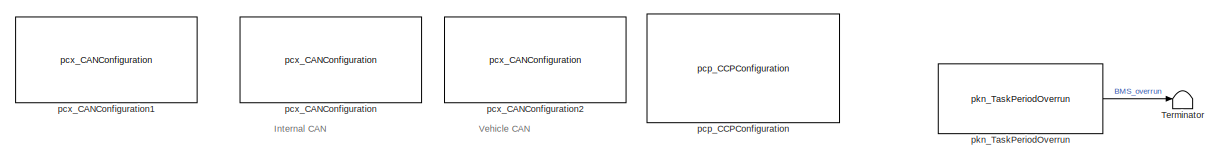
[diagram: root canvas - part 1/4, top center region]
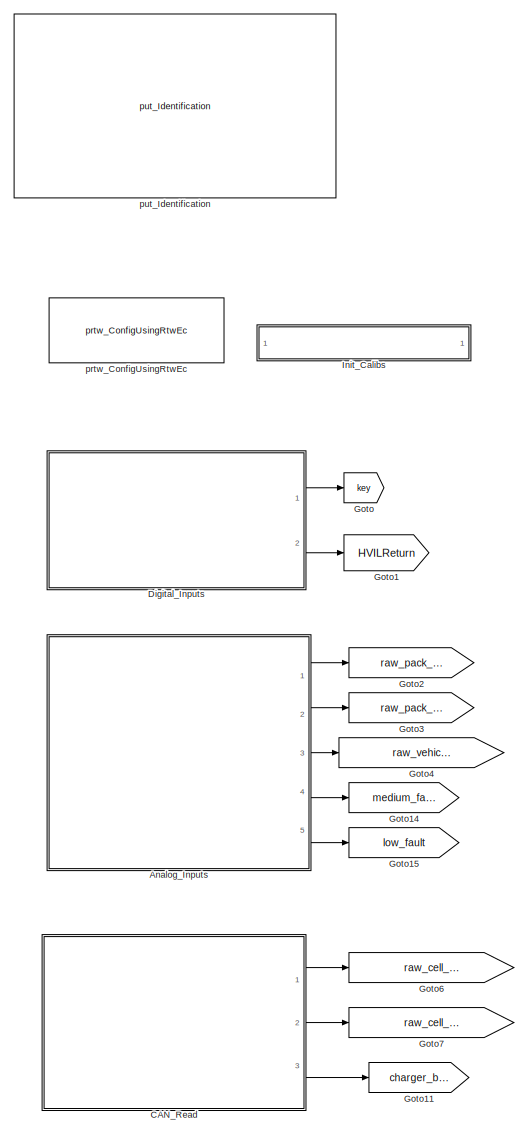
[diagram: root canvas - part 2/4, left side, full height]
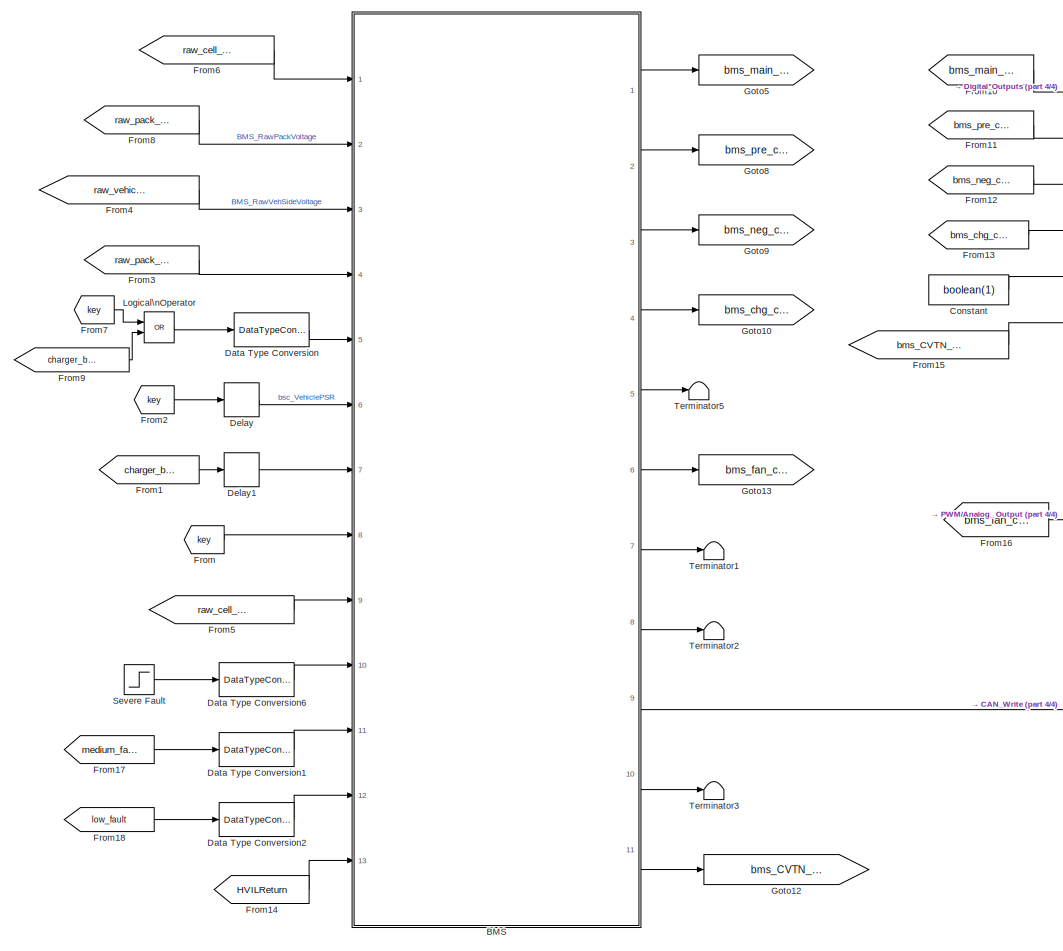
[diagram: root canvas - part 3/4, central region]
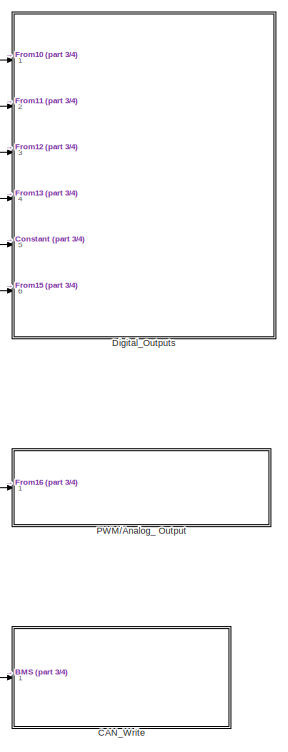
[diagram: root canvas - part 4/4, middle right region]
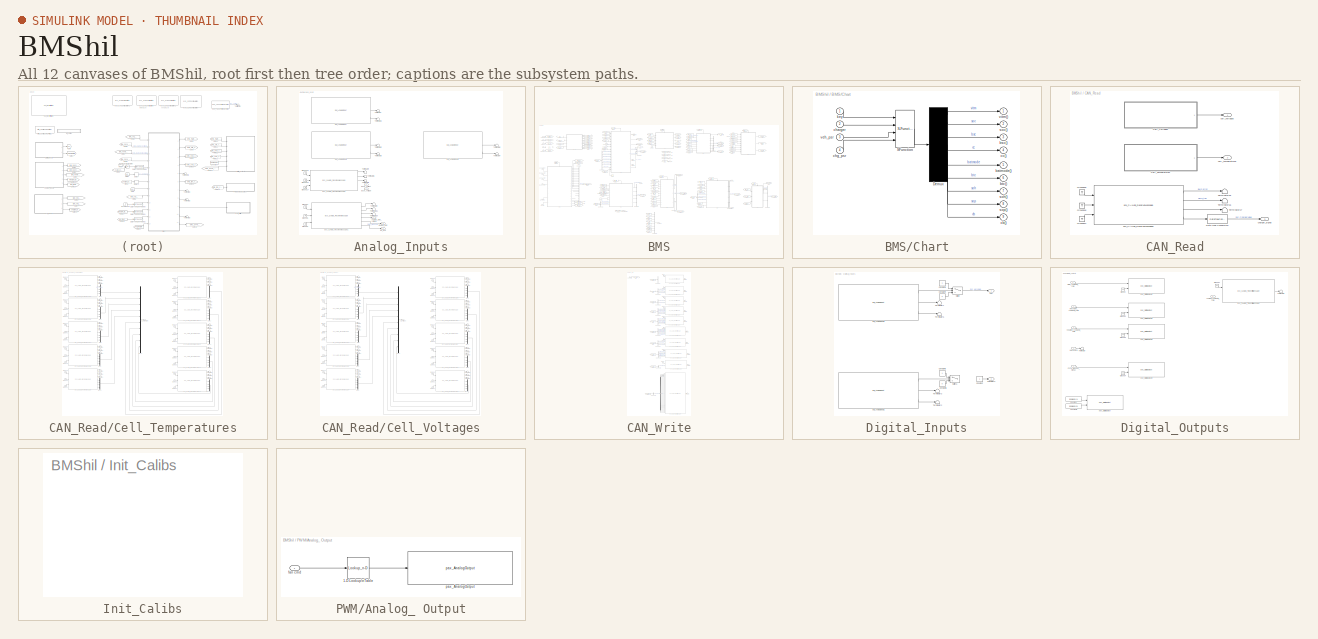
[diagram: thumbnail index - all 12 canvases of the model, root first then tree order]
MODEL BMShil
KIND model
CONFIG InitFcn = openecu_make_rtw_hook('model_init',   'BMShil')
CONFIG PostLoadFcn = openecu_make_rtw_hook('model_loaded', 'BMShil')
CONFIG PreLoadFcn = loadCalibTables\nopenecu_make_rtw_hook('model_load',   'BMShil')
BLOCK [SubSystem] Analog_Inputs
  Ports = [0, 5]
  RequestExecContextInheritance = off
  SID = 422
  Variant = off
BLOCK [Ground] Analog_Inputs/Ground15
  SID = 1448
BLOCK [Ground] Analog_Inputs/Ground16
  SID = 1449
BLOCK [Ground] Analog_Inputs/Ground17
  SID = 1450
BLOCK [Ground] Analog_Inputs/Ground4
  SID = 1494
BLOCK [Ground] Analog_Inputs/Ground5
  SID = 1495
BLOCK [Ground] Analog_Inputs/Ground6
  SID = 1496
BLOCK [Terminator] Analog_Inputs/Terminator
  Commented = on
  SID = 423
BLOCK [Terminator] Analog_Inputs/Terminator1
  Commented = on
  SID = 424
BLOCK [Terminator] Analog_Inputs/Terminator10
  SID = 1497
BLOCK [Terminator] Analog_Inputs/Terminator11
  SID = 1500
BLOCK [Terminator] Analog_Inputs/Terminator2
  Commented = on
  SID = 425
BLOCK [Terminator] Analog_Inputs/Terminator3
  Commented = on
  SID = 426
BLOCK [Terminator] Analog_Inputs/Terminator4
  SID = 1452
BLOCK [Terminator] Analog_Inputs/Terminator5
  SID = 1453
BLOCK [Terminator] Analog_Inputs/Terminator6
  Commented = on
  SID = 427
BLOCK [Terminator] Analog_Inputs/Terminator7
  Commented = on
  SID = 428
BLOCK [Terminator] Analog_Inputs/Terminator8
  SID = 1454
BLOCK [Terminator] Analog_Inputs/Terminator9
  SID = 1499
BLOCK [Outport] Analog_Inputs/low_fault
  IconDisplay = Port number
  Port = 5
  SID = 1503
BLOCK [Outport] Analog_Inputs/medium_fault
  IconDisplay = Port number
  Port = 4
  SID = 1502
BLOCK [Outport] Analog_Inputs/pack_current
  IconDisplay = Port number
  SID = 432
BLOCK [Outport] Analog_Inputs/pack_voltage
  IconDisplay = Port number
  Port = 2
  SID = 433
BLOCK [Reference] Analog_Inputs/pai_AnalogInput  REF=pai/pai_AnalogInput
  Commented = on
  Ports = [0, 3]
  SID = 429
  SourceBlock = pai/pai_AnalogInput
  SourceType = INPUT ANALOG VALUES
  chan = AIN (pin A15)
  pail_default = 160
  pail_engminmax = [0 200]
  pail_fall = 10
  pail_hyst = 0.5
  pail_mapx = [0.1 4.8]
  pail_mapz = [50 200]
  pail_provide_sim_input = off
  pail_raw_units = Volts
  pail_rawminmax = [0 5]
  pail_rise = 20
  pail_sample = BMSk_stepSize
  pail_sep_minmax = off
  pail_slew = 10000000
  pail_tf_type = Map
BLOCK [Reference] Analog_Inputs/pai_AnalogInput1  REF=pai/pai_AnalogInput
  Commented = on
  Ports = [0, 3]
  SID = 430
  SourceBlock = pai/pai_AnalogInput
  SourceType = INPUT ANALOG VALUES
  chan = AIN (pin B11)
  pail_default = 0
  pail_engminmax = [0 200]
  pail_fall = 10
  pail_hyst = 0.5
  pail_mapx = [0.1 4.8]
  pail_mapz = [0 200]
  pail_provide_sim_input = off
  pail_raw_units = Volts
  pail_rawminmax = [0 5]
  pail_rise = 20
  pail_sample = BMSk_stepSize
  pail_sep_minmax = off
  pail_slew = 10000000
  pail_tf_type = Map
BLOCK [Reference] Analog_Inputs/pai_AnalogInput3  REF=pai/pai_AnalogInput
  Commented = on
  Ports = [0, 3]
  SID = 431
  SourceBlock = pai/pai_AnalogInput
  SourceType = INPUT ANALOG VALUES
  chan = AIN (pin B12)
  pail_default = 40
  pail_engminmax = [-210 210]
  pail_fall = 10
  pail_hyst = 0.5
  pail_mapx = [0.1 4.8]
  pail_mapz = [-200 200]
  pail_provide_sim_input = off
  pail_raw_units = Volts
  pail_rawminmax = [0 5]
  pail_rise = 20
  pail_sample = BMSk_stepSize
  pail_sep_minmax = off
  pail_slew = 10000000
  pail_tf_type = Map
BLOCK [Reference] Analog_Inputs/pcx_CANdb_ReceiveMessage  REF=pcx/pcx_CANdb_ReceiveMessage
  Ports = [3, 5]
  SID = 1586
  SourceBlock = pcx/pcx_CANdb_ReceiveMessage
  SourceType = pcx_CANdb_ReceiveMessage
  bus_id = CAN B (pin A20+A19)
  pcxl_all_signals = on
  pcxl_bus_id = 0
  pcxl_candb_fname = BMSdb.dbc
  pcxl_checksum_type = None
  pcxl_clip_scaled = off
  pcxl_display_units = off
  pcxl_field_eng_max = [200 200 ]
  pcxl_field_eng_min = [-200 0 ]
  pcxl_field_is_signed = [1 0 ]
  pcxl_field_mnemonics = pack_current,pack_voltage
  pcxl_field_offset = [0 0 ]
  pcxl_field_order = [0 0 ]
  pcxl_field_scale = [0.001 0.001 ]
  pcxl_field_start_pos = [7 31 ]
  pcxl_field_units = A,V,
  pcxl_field_valtype = [0 0 ]
  pcxl_field_width = [24 24 ]
  pcxl_message_name = pack_data
  pcxl_msg_id = 36
  pcxl_msg_length = 8
  pcxl_provide_sim = off
  pcxl_provide_timestamp = off
  pcxl_sample_time = BMSk_stepSize
  pcxl_unpack_raw = off
  pcxl_use_extended_id = 0
BLOCK [Reference] Analog_Inputs/pcx_CANdb_ReceiveMessage1  REF=pcx/pcx_CANdb_ReceiveMessage
  Ports = [3, 6]
  SID = 1587
  SourceBlock = pcx/pcx_CANdb_ReceiveMessage
  SourceType = pcx_CANdb_ReceiveMessage
  bus_id = CAN B (pin A20+A19)
  pcxl_all_signals = on
  pcxl_bus_id = 0
  pcxl_candb_fname = BMSdb.dbc
  pcxl_checksum_type = None
  pcxl_clip_scaled = off
  pcxl_display_units = off
  pcxl_field_eng_max = [200 1 1 ]
  pcxl_field_eng_min = [0 0 0 ]
  pcxl_field_is_signed = [0 0 0 ]
  pcxl_field_mnemonics = vehicle_side_voltage,medium_fault,low_fault
  pcxl_field_offset = [0 0 0 ]
  pcxl_field_order = [0 0 0 ]
  pcxl_field_scale = [1 1 1 ]
  pcxl_field_start_pos = [7 31 30 ]
  pcxl_field_units = 0.001V,state,state,
  pcxl_field_valtype = [0 0 0 ]
  pcxl_field_width = [24 1 1 ]
  pcxl_message_name = pack_data_2
  pcxl_msg_id = 37
  pcxl_msg_length = 8
  pcxl_provide_sim = off
  pcxl_provide_timestamp = off
  pcxl_sample_time = BMSk_stepSize
  pcxl_unpack_raw = off
  pcxl_use_extended_id = 0
BLOCK [Outport] Analog_Inputs/vehicle_side_voltage
  IconDisplay = Port number
  Port = 3
  SID = 434
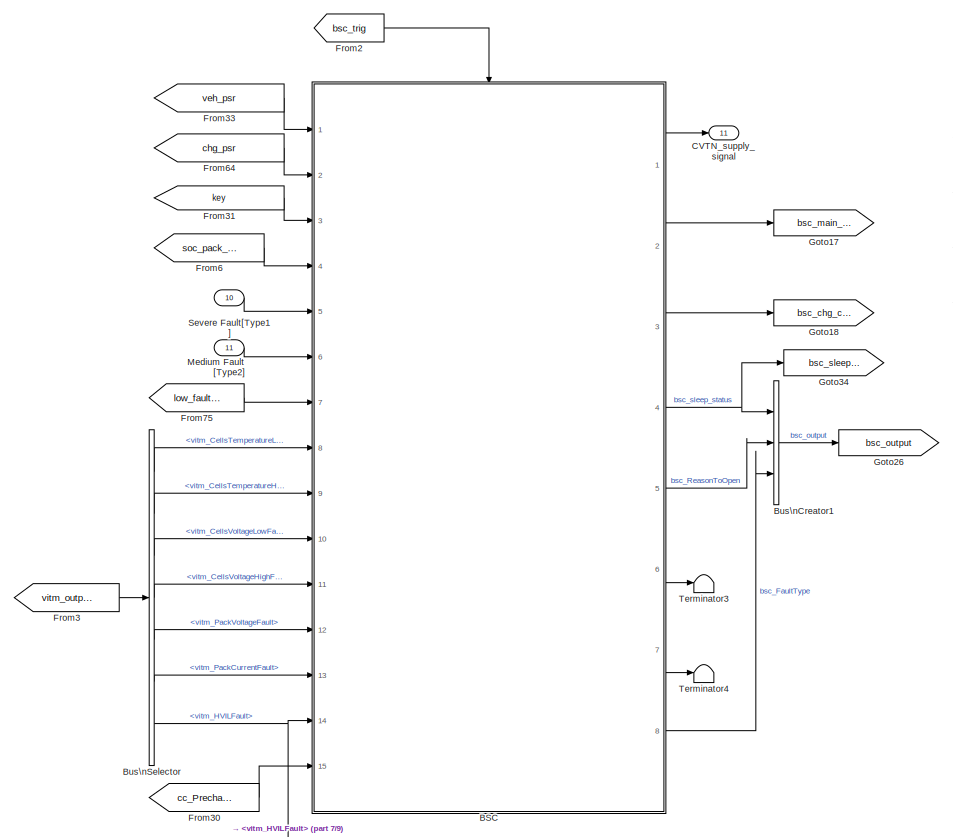
[diagram: BMS - part 1/9, top center region]
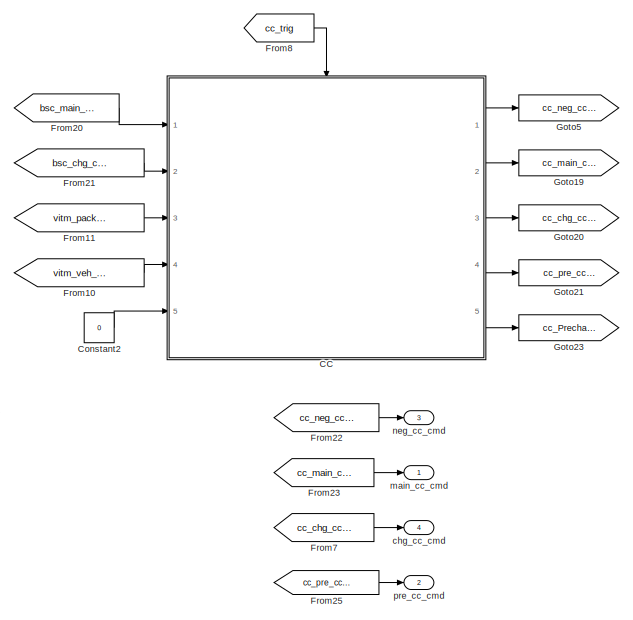
[diagram: BMS - part 2/9, top center region]
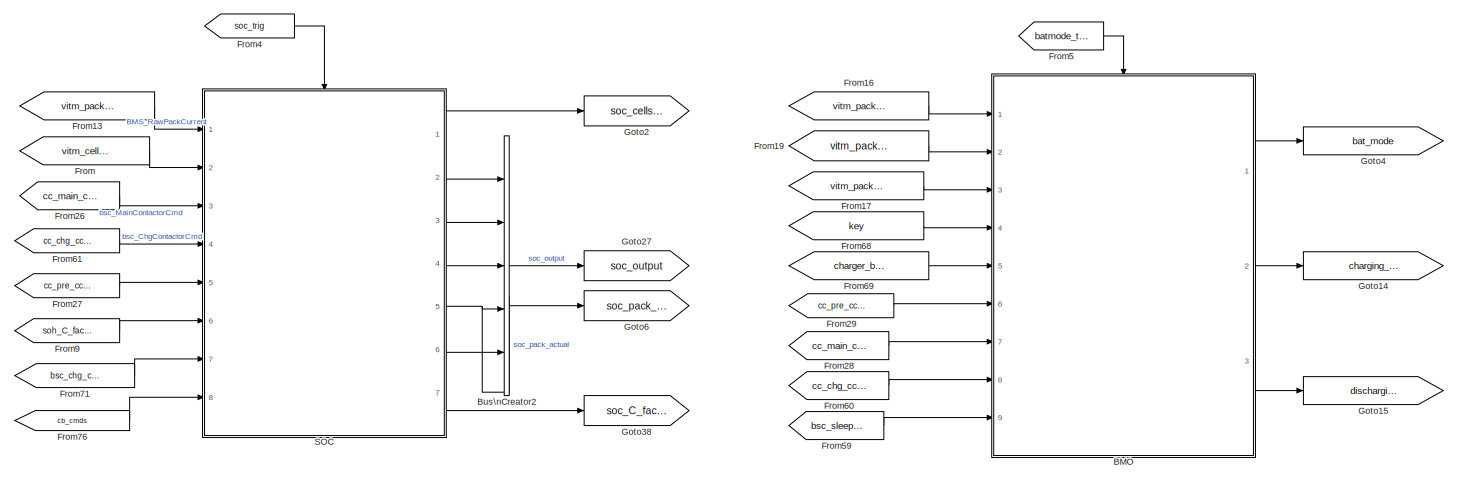
[diagram: BMS - part 3/9, top right region]
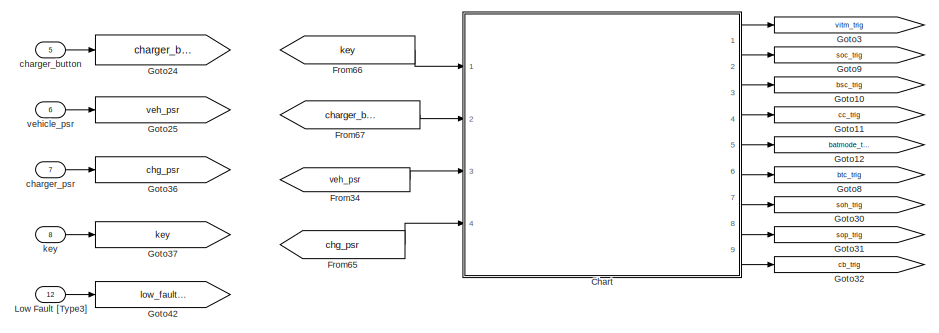
[diagram: BMS - part 4/9, top left region]
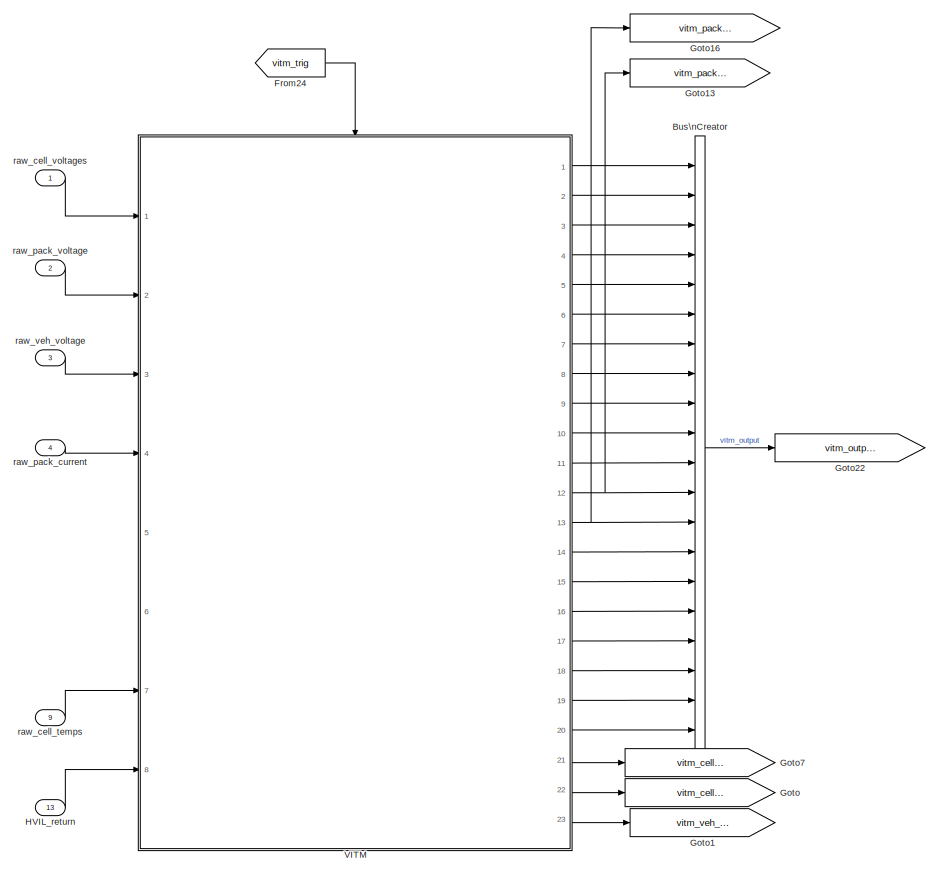
[diagram: BMS - part 5/9, middle left region]
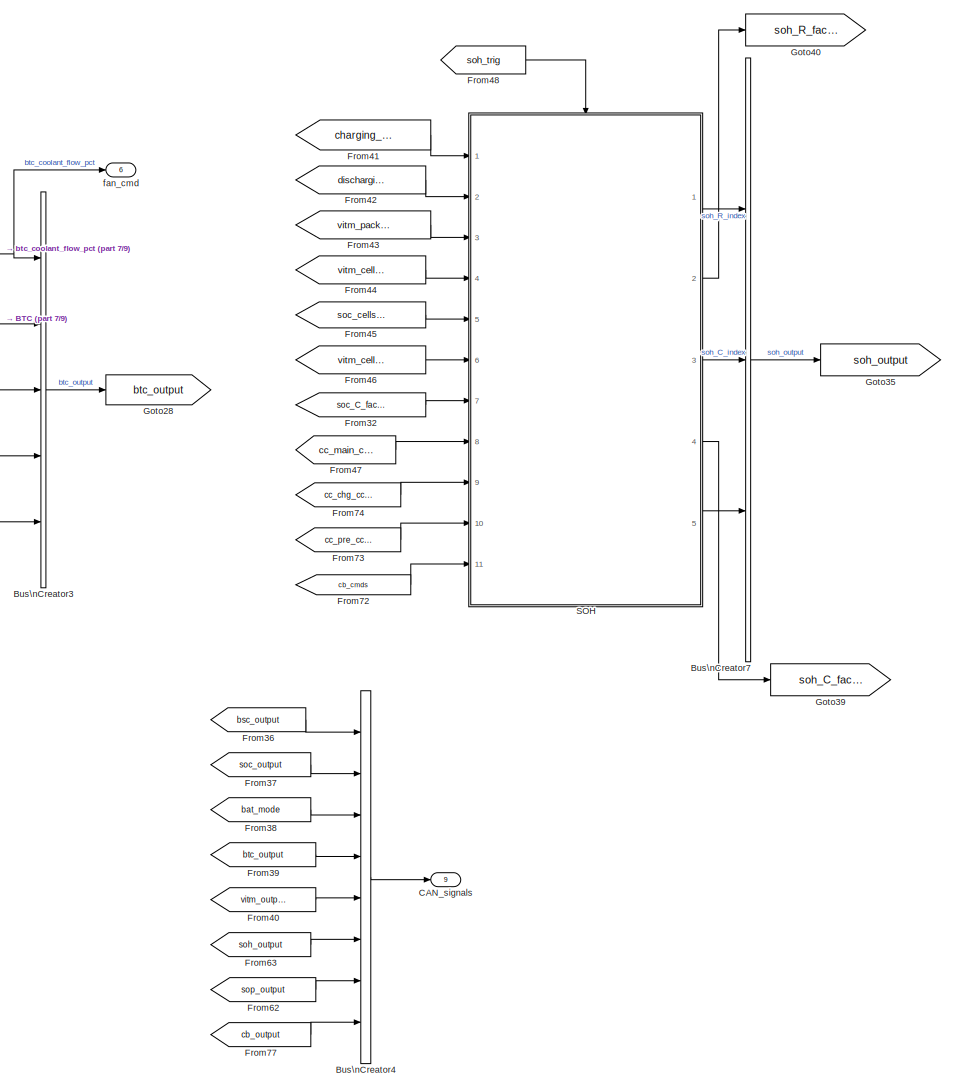
[diagram: BMS - part 6/9, bottom center region]
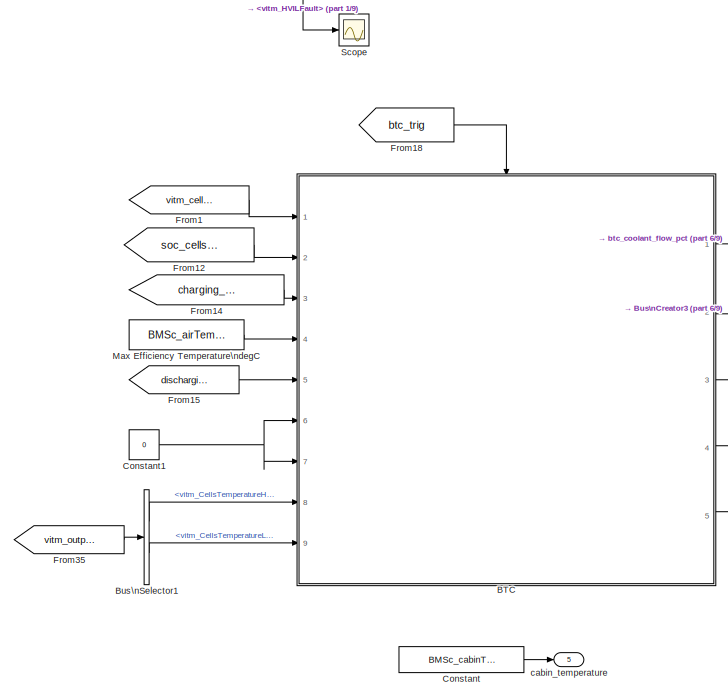
[diagram: BMS - part 7/9, middle left region]
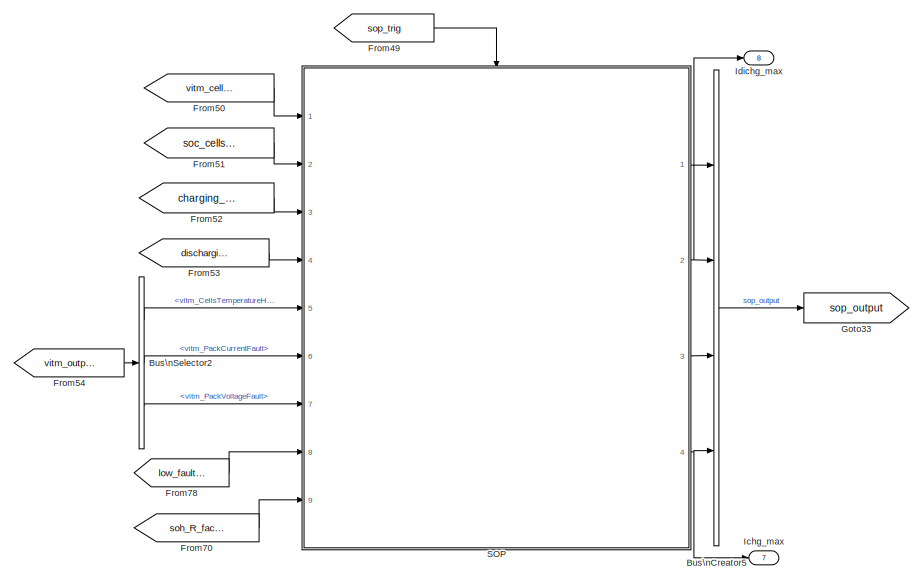
[diagram: BMS - part 8/9, middle right region]
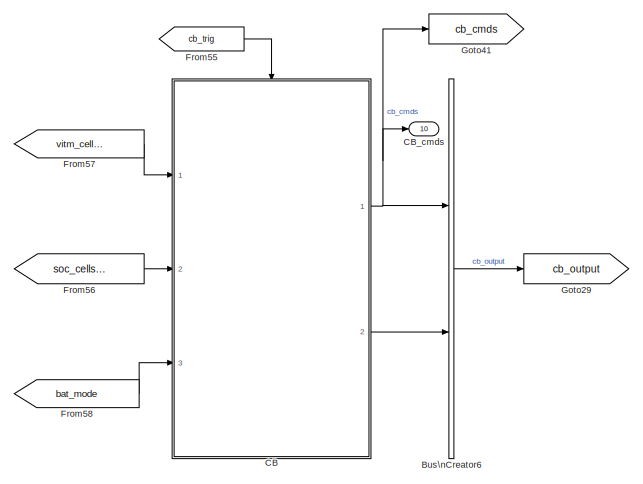
[diagram: BMS - part 9/9, middle right region]
BLOCK [SubSystem] BMS
  Ports = [13, 11]
  RequestExecContextInheritance = off
  SID = 1238
  Variant = off
BLOCK [ModelReference] BMS/BMO
  CopyOfModelName = BMO.slx
  ModelNameDialog = BMO.slx
  ModelReferenceVersion = 1.58
  Ports = [9, 3, 0, 1]
  SID = 1252
  TriggerPortName = Trigger
  TriggerPortStatesWhenEnabling = held
  TriggerPortTriggerType = function-call
  Variant = off
BLOCK [ModelReference] BMS/BSC
  CopyOfModelName = BSC
  ModelNameDialog = BSC
  ModelReferenceVersion = 1.220
  Ports = [15, 8, 0, 1]
  SID = 1253
  TriggerPortName = Trigger
  TriggerPortStatesWhenEnabling = held
  TriggerPortTriggerType = function-call
  Variant = off
BLOCK [ModelReference] BMS/BTC
  CopyOfModelName = BTC.slx
  ModelNameDialog = BTC.slx
  ModelReferenceVersion = 1.54
  Ports = [9, 5, 0, 1]
  SID = 1254
  TriggerPortName = Trigger
  TriggerPortStatesWhenEnabling = held
  TriggerPortTriggerType = function-call
  Variant = off
BLOCK [BusCreator] BMS/Bus\nCreator
  DisplayOption = bar
  InheritFromInputs = on
  Inputs = 20
  Ports = [20, 1]
  SID = 1255
BLOCK [BusCreator] BMS/Bus\nCreator1
  DisplayOption = bar
  InheritFromInputs = on
  Inputs = 3
  Ports = [3, 1]
  SID = 1256
BLOCK [BusCreator] BMS/Bus\nCreator2
  DisplayOption = bar
  InheritFromInputs = on
  Inputs = 5
  Ports = [5, 1]
  SID = 1257
BLOCK [BusCreator] BMS/Bus\nCreator3
  DisplayOption = bar
  InheritFromInputs = on
  Inputs = 5
  Ports = [5, 1]
  SID = 1258
BLOCK [BusCreator] BMS/Bus\nCreator4
  DisplayOption = bar
  InheritFromInputs = on
  Inputs = 8
  Ports = [8, 1]
  SID = 1259
BLOCK [BusCreator] BMS/Bus\nCreator5
  DisplayOption = bar
  InheritFromInputs = on
  Inputs = 4
  Ports = [4, 1]
  SID = 1260
BLOCK [BusCreator] BMS/Bus\nCreator6
  DisplayOption = bar
  InheritFromInputs = on
  Inputs = 2
  Ports = [2, 1]
  SID = 1261
BLOCK [BusCreator] BMS/Bus\nCreator7
  DisplayOption = bar
  InheritFromInputs = on
  Inputs = 3
  Ports = [3, 1]
  SID = 1262
BLOCK [BusSelector] BMS/Bus\nSelector
  OutputSignals = vitm_CellsTemperatureLowFault,vitm_CellsTemperatureHighFault,vitm_CellsVoltageLowFault,vitm_CellsVoltageHighFault,vitm_PackVoltageFault,vitm_PackCurrentFault,vitm_HVILFault
  Ports = [1, 7]
  SID = 1263
BLOCK [BusSelector] BMS/Bus\nSelector1
  OutputSignals = vitm_CellsTemperatureHighFault,vitm_CellsTemperatureLowFault
  Ports = [1, 2]
  SID = 1264
BLOCK [BusSelector] BMS/Bus\nSelector2
  OutputSignals = vitm_CellsTemperatureHighFault,vitm_PackCurrentFault,vitm_PackVoltageFault
  Ports = [1, 3]
  SID = 1265
BLOCK [Outport] BMS/CAN_signals
  IconDisplay = Port number
  Port = 9
  SID = 1410
BLOCK [ModelReference] BMS/CB
  CopyOfModelName = CB.slx
  ModelNameDialog = CB.slx
  ModelReferenceVersion = 1.33
  Ports = [3, 2, 0, 1]
  SID = 1266
  TriggerPortName = Trigger
  TriggerPortStatesWhenEnabling = held
  TriggerPortTriggerType = function-call
  Variant = off
BLOCK [Outport] BMS/CB_cmds
  IconDisplay = Port number
  Port = 10
  SID = 1411
BLOCK [ModelReference] BMS/CC
  CopyOfModelName = CC.slx
  ModelNameDialog = CC.slx
  ModelReferenceVersion = 1.108
  Ports = [5, 5, 0, 1]
  SID = 1267
  TriggerPortName = Trigger
  TriggerPortStatesWhenEnabling = held
  TriggerPortTriggerType = function-call
  Variant = off
BLOCK [Outport] BMS/CVTN_supply_signal
  IconDisplay = Port number
  Port = 11
  SID = 1412
BLOCK [SubSystem] BMS/Chart
  ErrorFcn = Stateflow.Translate.translate
  PermitHierarchicalResolution = ExplicitOnly
  Ports = [4, 9]
  RequestExecContextInheritance = off
  SFBlockType = Chart
  SID = 1268
  TreatAsAtomicUnit = on
  Variant = off
BLOCK [Demux] BMS/Chart/ Demux 
  Outputs = 9
  Ports = [1, 9]
  SID = 1268::74
BLOCK [S-Function] BMS/Chart/ SFunction 
  EnableBusSupport = on
  FunctionName = sf_sfun
  PortCounts = [4 1]
  Ports = [4, 1]
  SFunctionDeploymentMode = off
  SID = 1268::73
  Tag = Stateflow S-Function BMShil 3
BLOCK [Outport] BMS/Chart/batmode()
  IconDisplay = Port number
  Port = 5
  SID = 1268::82
BLOCK [Outport] BMS/Chart/bsc()
  IconDisplay = Port number
  Port = 3
  SID = 1268::80
BLOCK [Outport] BMS/Chart/btc()
  IconDisplay = Port number
  Port = 6
  SID = 1268::84
BLOCK [Outport] BMS/Chart/cb()
  IconDisplay = Port number
  Port = 9
  SID = 1268::89
BLOCK [Outport] BMS/Chart/cc()
  IconDisplay = Port number
  Port = 4
  SID = 1268::81
BLOCK [Inport] BMS/Chart/charger
  IconDisplay = Port number
  Port = 2
  SID = 1268::92
BLOCK [Inport] BMS/Chart/chg_psr
  IconDisplay = Port number
  Port = 4
  SID = 1268::90
BLOCK [Inport] BMS/Chart/key
  IconDisplay = Port number
  SID = 1268::91
BLOCK [Outport] BMS/Chart/soc()
  IconDisplay = Port number
  Port = 2
  SID = 1268::79
BLOCK [Outport] BMS/Chart/soh()
  IconDisplay = Port number
  Port = 7
  SID = 1268::87
BLOCK [Outport] BMS/Chart/sop()
  IconDisplay = Port number
  Port = 8
  SID = 1268::88
BLOCK [Inport] BMS/Chart/veh_psr
  IconDisplay = Port number
  Port = 3
  SID = 1268::86
BLOCK [Outport] BMS/Chart/vitm()
  IconDisplay = Port number
  SID = 1268::77
BLOCK [Constant] BMS/Constant
  SID = 1269
  SampleTime = BMSk_stepSize
  Value = BMSc_cabinTemperature
BLOCK [Constant] BMS/Constant1
  OutDataTypeStr = boolean
  SID = 1270
  SampleTime = -1
  Value = 0
BLOCK [Constant] BMS/Constant2
  OutDataTypeStr = double
  SID = 1271
  SampleTime = -1
  Value = 0
BLOCK [From] BMS/From
  GotoTag = vitm_cell_voltages
  SID = 1272
BLOCK [From] BMS/From1
  GotoTag = vitm_cell_temps
  SID = 1273
BLOCK [From] BMS/From10
  GotoTag = vitm_veh_voltage
  SID = 1274
BLOCK [From] BMS/From11
  GotoTag = vitm_pack_voltage
  SID = 1275
BLOCK [From] BMS/From12
  GotoTag = soc_cells_pct
  SID = 1276
  TagVisibility = global
BLOCK [From] BMS/From13
  GotoTag = vitm_pack_current
  SID = 1277
BLOCK [From] BMS/From14
  GotoTag = charging_status
  SID = 1278
BLOCK [From] BMS/From15
  GotoTag = discharging_status
  SID = 1279
BLOCK [From] BMS/From16
  GotoTag = vitm_pack_voltage
  SID = 1280
BLOCK [From] BMS/From17
  GotoTag = vitm_pack_current
  SID = 1281
BLOCK [From] BMS/From18
  GotoTag = btc_trig
  SID = 1282
BLOCK [From] BMS/From19
  GotoTag = vitm_pack_voltage
  SID = 1283
BLOCK [From] BMS/From2
  GotoTag = bsc_trig
  SID = 1284
BLOCK [From] BMS/From20
  GotoTag = bsc_main_cc_cmd
  SID = 1285
BLOCK [From] BMS/From21
  GotoTag = bsc_chg_cc_cmd
  SID = 1286
BLOCK [From] BMS/From22
  GotoTag = cc_neg_cc_cmd
  SID = 1287
BLOCK [From] BMS/From23
  GotoTag = cc_main_cc_cmd
  SID = 1288
BLOCK [From] BMS/From24
  GotoTag = vitm_trig
  SID = 1289
BLOCK [From] BMS/From25
  GotoTag = cc_pre_cc_cmd
  SID = 1290
BLOCK [From] BMS/From26
  GotoTag = cc_main_cc_cmd
  SID = 1291
BLOCK [From] BMS/From27
  GotoTag = cc_pre_cc_cmd
  SID = 1292
BLOCK [From] BMS/From28
  GotoTag = cc_main_cc_cmd
  SID = 1293
BLOCK [From] BMS/From29
  GotoTag = cc_pre_cc_cmd
  SID = 1294
BLOCK [From] BMS/From3
  GotoTag = vitm_output
  SID = 1295
BLOCK [From] BMS/From30
  GotoTag = cc_PrechargeFault
  SID = 1296
BLOCK [From] BMS/From31
  GotoTag = key
  SID = 1297
BLOCK [From] BMS/From32
  GotoTag = soc_C_factors
  SID = 1298
  TagVisibility = global
BLOCK [From] BMS/From33
  GotoTag = veh_psr
  SID = 1299
BLOCK [From] BMS/From34
  GotoTag = veh_psr
  SID = 1300
BLOCK [From] BMS/From35
  GotoTag = vitm_output
  SID = 1301
BLOCK [From] BMS/From36
  GotoTag = bsc_output
  SID = 1302
BLOCK [From] BMS/From37
  GotoTag = soc_output
  SID = 1303
  TagVisibility = global
BLOCK [From] BMS/From38
  GotoTag = bat_mode
  SID = 1304
  TagVisibility = global
BLOCK [From] BMS/From39
  GotoTag = btc_output
  SID = 1305
  TagVisibility = global
BLOCK [From] BMS/From4
  GotoTag = soc_trig
  SID = 1306
BLOCK [From] BMS/From40
  GotoTag = vitm_output
  SID = 1307
BLOCK [From] BMS/From41
  GotoTag = charging_status
  SID = 1308
BLOCK [From] BMS/From42
  GotoTag = discharging_status
  SID = 1309
BLOCK [From] BMS/From43
  GotoTag = vitm_pack_current
  SID = 1310
BLOCK [From] BMS/From44
  GotoTag = vitm_cell_voltages
  SID = 1311
BLOCK [From] BMS/From45
  GotoTag = soc_cells_pct
  SID = 1312
  TagVisibility = global
BLOCK [From] BMS/From46
  GotoTag = vitm_cell_temps
  SID = 1313
BLOCK [From] BMS/From47
  GotoTag = cc_main_cc_cmd
  SID = 1314
BLOCK [From] BMS/From48
  GotoTag = soh_trig
  SID = 1315
BLOCK [From] BMS/From49
  GotoTag = sop_trig
  SID = 1316
BLOCK [From] BMS/From5
  GotoTag = batmode_trig
  SID = 1317
BLOCK [From] BMS/From50
  GotoTag = vitm_cell_temps
  SID = 1318
BLOCK [From] BMS/From51
  GotoTag = soc_cells_pct
  SID = 1319
  TagVisibility = global
BLOCK [From] BMS/From52
  GotoTag = charging_status
  SID = 1320
BLOCK [From] BMS/From53
  GotoTag = discharging_status
  SID = 1321
BLOCK [From] BMS/From54
  GotoTag = vitm_output
  SID = 1322
BLOCK [From] BMS/From55
  GotoTag = cb_trig
  SID = 1323
BLOCK [From] BMS/From56
  GotoTag = soc_cells_pct
  SID = 1324
  TagVisibility = global
BLOCK [From] BMS/From57
  GotoTag = vitm_cell_voltages
  SID = 1325
BLOCK [From] BMS/From58
  GotoTag = bat_mode
  SID = 1326
  TagVisibility = global
BLOCK [From] BMS/From59
  GotoTag = bsc_sleep_status
  SID = 1327
BLOCK [From] BMS/From6
  GotoTag = soc_pack_actual
  SID = 1328
  TagVisibility = global
BLOCK [From] BMS/From60
  GotoTag = cc_chg_cc_cmd
  SID = 1329
BLOCK [From] BMS/From61
  GotoTag = cc_chg_cc_cmd
  SID = 1330
BLOCK [From] BMS/From62
  GotoTag = sop_output
  SID = 1331
  TagVisibility = global
BLOCK [From] BMS/From63
  GotoTag = soh_output
  SID = 1332
  TagVisibility = global
BLOCK [From] BMS/From64
  GotoTag = chg_psr
  SID = 1333
BLOCK [From] BMS/From65
  GotoTag = chg_psr
  SID = 1334
BLOCK [From] BMS/From66
  GotoTag = key
  SID = 1335
BLOCK [From] BMS/From67
  GotoTag = charger_button
  SID = 1336
BLOCK [From] BMS/From68
  GotoTag = key
  SID = 1337
BLOCK [From] BMS/From69
  GotoTag = charger_button
  SID = 1338
BLOCK [From] BMS/From7
  GotoTag = cc_chg_cc_cmd
  SID = 1339
BLOCK [From] BMS/From70
  GotoTag = soh_R_factors
  SID = 1340
  TagVisibility = global
BLOCK [From] BMS/From71
  GotoTag = bsc_chg_cc_cmd
  SID = 1341
BLOCK [From] BMS/From72
  GotoTag = cb_cmds
  SID = 1342
BLOCK [From] BMS/From73
  GotoTag = cc_pre_cc_cmd
  SID = 1343
BLOCK [From] BMS/From74
  GotoTag = cc_chg_cc_cmd
  SID = 1344
BLOCK [From] BMS/From75
  GotoTag = low_fault_Type3
  SID = 1345
BLOCK [From] BMS/From76
  GotoTag = cb_cmds
  SID = 1346
BLOCK [From] BMS/From77
  GotoTag = cb_output
  SID = 1347
  TagVisibility = global
BLOCK [From] BMS/From78
  GotoTag = low_fault_Type3
  SID = 1348
BLOCK [From] BMS/From8
  GotoTag = cc_trig
  SID = 1349
BLOCK [From] BMS/From9
  GotoTag = soh_C_factors
  SID = 1350
  TagVisibility = global
BLOCK [Goto] BMS/Goto
  GotoTag = vitm_cell_voltages
  SID = 1351
BLOCK [Goto] BMS/Goto1
  GotoTag = vitm_veh_voltage
  SID = 1352
BLOCK [Goto] BMS/Goto10
  GotoTag = bsc_trig
  SID = 1353
BLOCK [Goto] BMS/Goto11
  GotoTag = cc_trig
  SID = 1354
BLOCK [Goto] BMS/Goto12
  GotoTag = batmode_trig
  SID = 1355
BLOCK [Goto] BMS/Goto13
  GotoTag = vitm_pack_voltage
  SID = 1356
BLOCK [Goto] BMS/Goto14
  GotoTag = charging_status
  SID = 1357
BLOCK [Goto] BMS/Goto15
  GotoTag = discharging_status
  SID = 1358
BLOCK [Goto] BMS/Goto16
  GotoTag = vitm_pack_current
  SID = 1359
BLOCK [Goto] BMS/Goto17
  GotoTag = bsc_main_cc_cmd
  SID = 1360
BLOCK [Goto] BMS/Goto18
  GotoTag = bsc_chg_cc_cmd
  SID = 1361
BLOCK [Goto] BMS/Goto19
  GotoTag = cc_main_cc_cmd
  SID = 1362
BLOCK [Goto] BMS/Goto2
  GotoTag = soc_cells_pct
  SID = 1363
  TagVisibility = global
BLOCK [Goto] BMS/Goto20
  GotoTag = cc_chg_cc_cmd
  SID = 1364
BLOCK [Goto] BMS/Goto21
  GotoTag = cc_pre_cc_cmd
  SID = 1365
BLOCK [Goto] BMS/Goto22
  GotoTag = vitm_output
  SID = 1366
BLOCK [Goto] BMS/Goto23
  GotoTag = cc_PrechargeFault
  SID = 1367
BLOCK [Goto] BMS/Goto24
  GotoTag = charger_button
  SID = 1368
BLOCK [Goto] BMS/Goto25
  GotoTag = veh_psr
  SID = 1369
BLOCK [Goto] BMS/Goto26
  GotoTag = bsc_output
  SID = 1370
BLOCK [Goto] BMS/Goto27
  GotoTag = soc_output
  SID = 1371
  TagVisibility = global
BLOCK [Goto] BMS/Goto28
  GotoTag = btc_output
  SID = 1372
  TagVisibility = global
BLOCK [Goto] BMS/Goto29
  GotoTag = cb_output
  SID = 1373
  TagVisibility = global
BLOCK [Goto] BMS/Goto3
  GotoTag = vitm_trig
  SID = 1374
BLOCK [Goto] BMS/Goto30
  GotoTag = soh_trig
  SID = 1375
BLOCK [Goto] BMS/Goto31
  GotoTag = sop_trig
  SID = 1376
BLOCK [Goto] BMS/Goto32
  GotoTag = cb_trig
  SID = 1377
BLOCK [Goto] BMS/Goto33
  GotoTag = sop_output
  SID = 1378
  TagVisibility = global
BLOCK [Goto] BMS/Goto34
  GotoTag = bsc_sleep_status
  SID = 1379
BLOCK [Goto] BMS/Goto35
  GotoTag = soh_output
  SID = 1380
  TagVisibility = global
BLOCK [Goto] BMS/Goto36
  GotoTag = chg_psr
  SID = 1381
BLOCK [Goto] BMS/Goto37
  GotoTag = key
  SID = 1382
BLOCK [Goto] BMS/Goto38
  GotoTag = soc_C_factors
  SID = 1383
  TagVisibility = global
BLOCK [Goto] BMS/Goto39
  GotoTag = soh_C_factors
  SID = 1384
  TagVisibility = global
BLOCK [Goto] BMS/Goto4
  GotoTag = bat_mode
  SID = 1385
  TagVisibility = global
BLOCK [Goto] BMS/Goto40
  GotoTag = soh_R_factors
  SID = 1386
  TagVisibility = global
BLOCK [Goto] BMS/Goto41
  GotoTag = cb_cmds
  SID = 1387
BLOCK [Goto] BMS/Goto42
  GotoTag = low_fault_Type3
  SID = 1388
BLOCK [Goto] BMS/Goto5
  GotoTag = cc_neg_cc_cmd
  SID = 1389
BLOCK [Goto] BMS/Goto6
  GotoTag = soc_pack_actual
  SID = 1390
  TagVisibility = global
BLOCK [Goto] BMS/Goto7
  GotoTag = vitm_cell_temps
  SID = 1391
BLOCK [Goto] BMS/Goto8
  GotoTag = btc_trig
  SID = 1392
BLOCK [Goto] BMS/Goto9
  GotoTag = soc_trig
  SID = 1393
BLOCK [Inport] BMS/HVIL_return
  IconDisplay = Port number
  OutDataTypeStr = double
  Port = 13
  SID = 1251
BLOCK [Outport] BMS/Ichg_max
  IconDisplay = Port number
  Port = 7
  SID = 1408
BLOCK [Outport] BMS/Idichg_max
  IconDisplay = Port number
  Port = 8
  SID = 1409
BLOCK [Inport] BMS/Low Fault [Type3]
  IconDisplay = Port number
  Port = 12
  SID = 1250
BLOCK [Constant] BMS/Max Efficiency Temperature\ndegC
  SID = 1394
  SampleTime = BMSk_stepSize
  Value = BMSc_airTemperature
BLOCK [Inport] BMS/Medium Fault [Type2]
  IconDisplay = Port number
  Port = 11
  SID = 1249
BLOCK [ModelReference] BMS/SOC
  CopyOfModelName = SOC.slx
  ModelNameDialog = SOC.slx
  ModelReferenceVersion = 1.297
  Ports = [8, 7, 0, 1]
  SID = 1395
  TriggerPortName = Trigger
  TriggerPortStatesWhenEnabling = held
  TriggerPortTriggerType = function-call
  Variant = off
BLOCK [ModelReference] BMS/SOH
  CopyOfModelName = soh.slx
  ModelNameDialog = soh.slx
  ModelReferenceVersion = 1.268
  Ports = [11, 5, 0, 1]
  SID = 1396
  TriggerPortName = Trigger
  TriggerPortStatesWhenEnabling = held
  TriggerPortTriggerType = function-call
  Variant = off
BLOCK [ModelReference] BMS/SOP
  CopyOfModelName = sop
  ModelNameDialog = sop
  ModelReferenceVersion = 1.49
  Ports = [9, 4, 0, 1]
  SID = 1397
  TriggerPortName = Trigger
  TriggerPortStatesWhenEnabling = held
  TriggerPortTriggerType = function-call
  Variant = off
BLOCK [Scope] BMS/Scope
  Ports = [1]
  SID = 1398
  ScopeSpecificationString = Simulink.scopes.TimeScopeBlockCfg('CurrentConfiguration', extmgr.ConfigurationSet(extmgr.Configuration('Core','General UI',true),extmgr.Configuration('Core','Source UI',true),extmgr.Configuration('Sources','WiredSimulink',true,'DataLoggingVariableName','ScopeData1'),extmgr.Configuration('Visuals','Time Domain',true,'SerializedDisplays',{struct('MinYLimReal','-0.125','MaxYLimReal','1.125','YLabelRe...<+1407ch>
BLOCK [Inport] BMS/Severe Fault[Type1]
  IconDisplay = Port number
  Port = 10
  SID = 1248
BLOCK [Terminator] BMS/Terminator3
  SID = 1399
BLOCK [Terminator] BMS/Terminator4
  SID = 1400
BLOCK [ModelReference] BMS/VITM
  CopyOfModelName = VITM
  ModelNameDialog = VITM
  ModelReferenceVersion = 1.124
  Ports = [8, 23, 0, 1]
  SID = 1401
  TriggerPortName = Trigger
  TriggerPortStatesWhenEnabling = held
  TriggerPortTriggerType = function-call
  Variant = off
BLOCK [Outport] BMS/cabin_temperature
  IconDisplay = Port number
  Port = 5
  SID = 1406
BLOCK [Inport] BMS/charger_button
  IconDisplay = Port number
  OutDataTypeStr = uint8
  Port = 5
  SID = 1243
BLOCK [Inport] BMS/charger_psr
  IconDisplay = Port number
  Port = 7
  SID = 1245
BLOCK [Outport] BMS/chg_cc_cmd
  IconDisplay = Port number
  Port = 4
  SID = 1405
BLOCK [Outport] BMS/fan_cmd
  IconDisplay = Port number
  Port = 6
  SID = 1407
BLOCK [Inport] BMS/key
  IconDisplay = Port number
  OutDataTypeStr = uint8
  Port = 8
  SID = 1246
BLOCK [Outport] BMS/main_cc_cmd
  IconDisplay = Port number
  SID = 1402
BLOCK [Outport] BMS/neg_cc_cmd
  IconDisplay = Port number
  Port = 3
  SID = 1404
BLOCK [Outport] BMS/pre_cc_cmd
  IconDisplay = Port number
  Port = 2
  SID = 1403
BLOCK [Inport] BMS/raw_cell_temps
  IconDisplay = Port number
  Port = 9
  SID = 1247
BLOCK [Inport] BMS/raw_cell_voltages
  IconDisplay = Port number
  SID = 1239
BLOCK [Inport] BMS/raw_pack_current
  IconDisplay = Port number
  Port = 4
  SID = 1242
BLOCK [Inport] BMS/raw_pack_voltage
  IconDisplay = Port number
  Port = 2
  SID = 1240
BLOCK [Inport] BMS/raw_veh_voltage
  IconDisplay = Port number
  Port = 3
  SID = 1241
BLOCK [Inport] BMS/vehicle_psr
  IconDisplay = Port number
  Port = 6
  SID = 1244
BLOCK [SubSystem] CAN_Read
  Ports = [0, 3]
  RequestExecContextInheritance = off
  SID = 435
  Variant = off
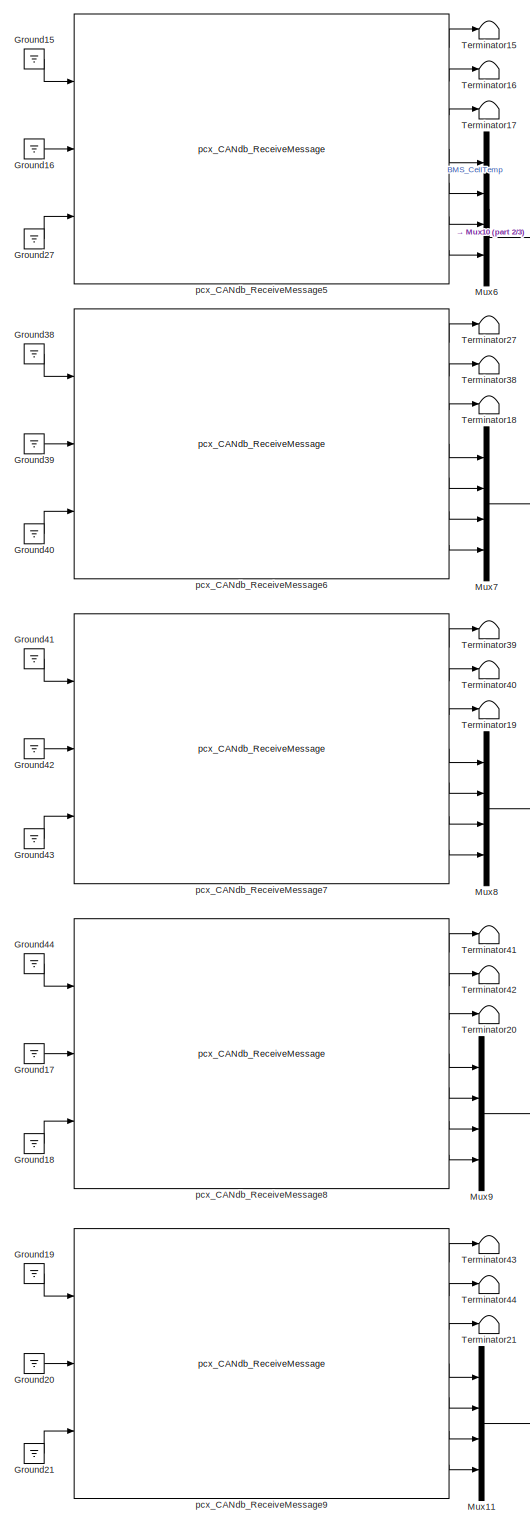
[diagram: CAN_Read/Cell_Temperatures - part 1/3, left side, full height]
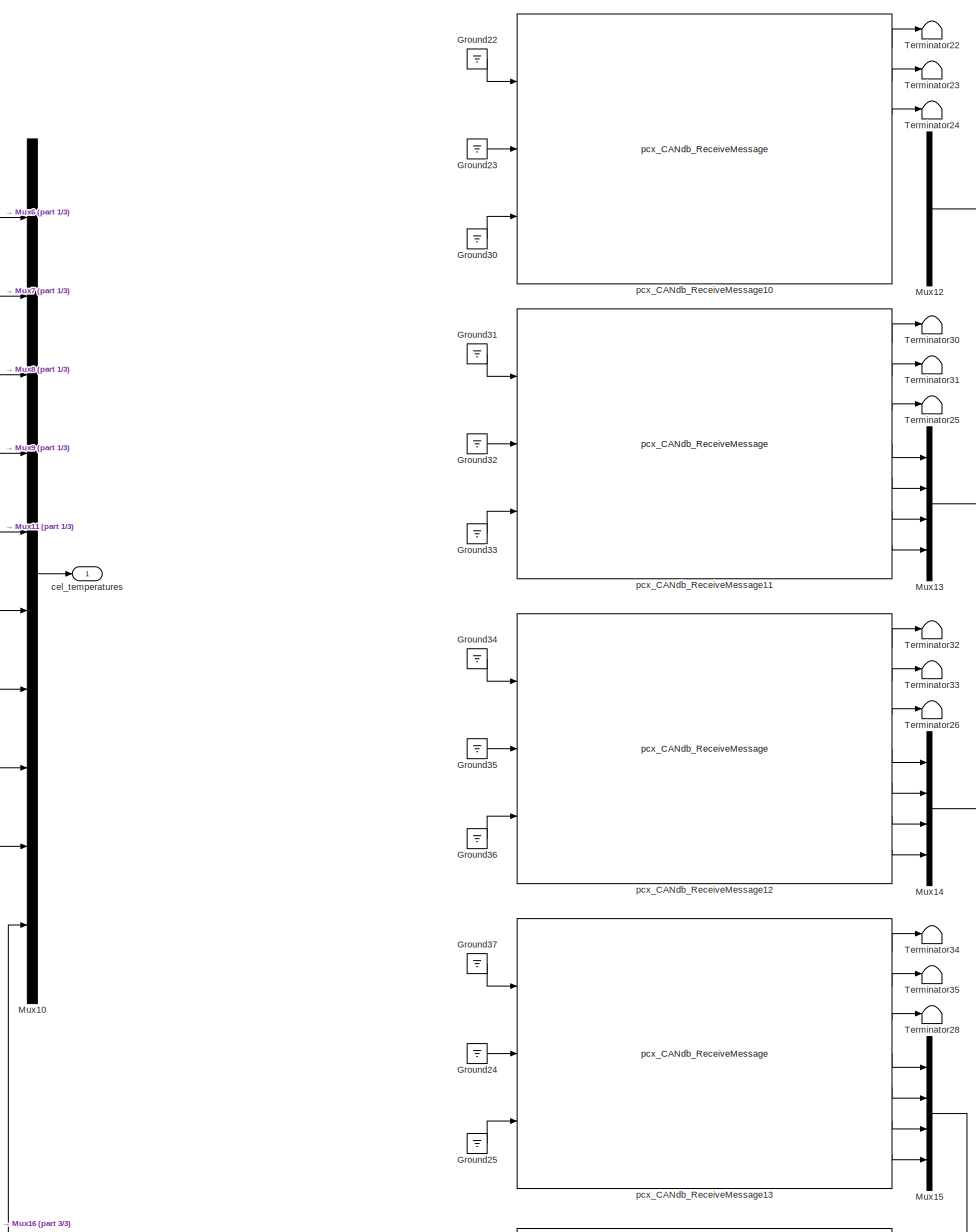
[diagram: CAN_Read/Cell_Temperatures - part 2/3, middle right region]
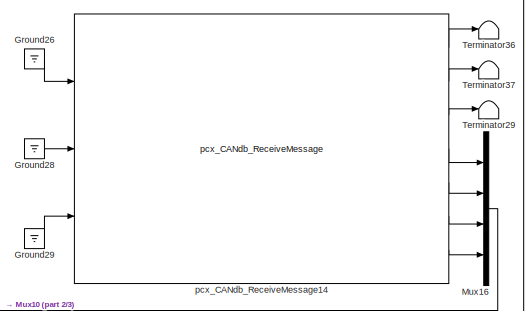
[diagram: CAN_Read/Cell_Temperatures - part 3/3, bottom right region]
BLOCK [SubSystem] CAN_Read/Cell_Temperatures
  Ports = [0, 1]
  RequestExecContextInheritance = off
  SID = 436
  Variant = off
BLOCK [Ground] CAN_Read/Cell_Temperatures/Ground15
  SID = 1504
BLOCK [Ground] CAN_Read/Cell_Temperatures/Ground16
  SID = 1505
BLOCK [Ground] CAN_Read/Cell_Temperatures/Ground17
  SID = 1506
BLOCK [Ground] CAN_Read/Cell_Temperatures/Ground18
  SID = 1507
BLOCK [Ground] CAN_Read/Cell_Temperatures/Ground19
  SID = 1508
BLOCK [Ground] CAN_Read/Cell_Temperatures/Ground20
  SID = 1509
BLOCK [Ground] CAN_Read/Cell_Temperatures/Ground21
  SID = 1510
BLOCK [Ground] CAN_Read/Cell_Temperatures/Ground22
  SID = 1511
BLOCK [Ground] CAN_Read/Cell_Temperatures/Ground23
  SID = 1512
BLOCK [Ground] CAN_Read/Cell_Temperatures/Ground24
  SID = 1513
BLOCK [Ground] CAN_Read/Cell_Temperatures/Ground25
  SID = 1514
BLOCK [Ground] CAN_Read/Cell_Temperatures/Ground26
  SID = 1515
BLOCK [Ground] CAN_Read/Cell_Temperatures/Ground27
  SID = 1516
BLOCK [Ground] CAN_Read/Cell_Temperatures/Ground28
  SID = 1517
BLOCK [Ground] CAN_Read/Cell_Temperatures/Ground29
  SID = 1518
BLOCK [Ground] CAN_Read/Cell_Temperatures/Ground30
  SID = 1519
BLOCK [Ground] CAN_Read/Cell_Temperatures/Ground31
  SID = 1520
BLOCK [Ground] CAN_Read/Cell_Temperatures/Ground32
  SID = 1521
BLOCK [Ground] CAN_Read/Cell_Temperatures/Ground33
  SID = 1522
BLOCK [Ground] CAN_Read/Cell_Temperatures/Ground34
  SID = 1523
BLOCK [Ground] CAN_Read/Cell_Temperatures/Ground35
  SID = 1524
BLOCK [Ground] CAN_Read/Cell_Temperatures/Ground36
  SID = 1525
BLOCK [Ground] CAN_Read/Cell_Temperatures/Ground37
  SID = 1526
BLOCK [Ground] CAN_Read/Cell_Temperatures/Ground38
  SID = 1527
BLOCK [Ground] CAN_Read/Cell_Temperatures/Ground39
  SID = 1528
BLOCK [Ground] CAN_Read/Cell_Temperatures/Ground40
  SID = 1529
BLOCK [Ground] CAN_Read/Cell_Temperatures/Ground41
  SID = 1530
BLOCK [Ground] CAN_Read/Cell_Temperatures/Ground42
  SID = 1531
BLOCK [Ground] CAN_Read/Cell_Temperatures/Ground43
  SID = 1532
BLOCK [Ground] CAN_Read/Cell_Temperatures/Ground44
  SID = 1533
BLOCK [Mux] CAN_Read/Cell_Temperatures/Mux10
  DisplayOption = bar
  Inputs = 10
  Ports = [10, 1]
  SID = 1536
BLOCK [Mux] CAN_Read/Cell_Temperatures/Mux11
  DisplayOption = bar
  Ports = [4, 1]
  SID = 1539
BLOCK [Mux] CAN_Read/Cell_Temperatures/Mux12
  DisplayOption = bar
  Ports = [4, 1]
  SID = 1540
BLOCK [Mux] CAN_Read/Cell_Temperatures/Mux13
  DisplayOption = bar
  Ports = [4, 1]
  SID = 1541
BLOCK [Mux] CAN_Read/Cell_Temperatures/Mux14
  DisplayOption = bar
  Ports = [4, 1]
  SID = 1542
BLOCK [Mux] CAN_Read/Cell_Temperatures/Mux15
  DisplayOption = bar
  Ports = [4, 1]
  SID = 1543
BLOCK [Mux] CAN_Read/Cell_Temperatures/Mux16
  DisplayOption = bar
  Ports = [4, 1]
  SID = 1544
BLOCK [Mux] CAN_Read/Cell_Temperatures/Mux6
  DisplayOption = bar
  Ports = [4, 1]
  SID = 1534
BLOCK [Mux] CAN_Read/Cell_Temperatures/Mux7
  DisplayOption = bar
  Ports = [4, 1]
  SID = 1535
BLOCK [Mux] CAN_Read/Cell_Temperatures/Mux8
  DisplayOption = bar
  Ports = [4, 1]
  SID = 1537
BLOCK [Mux] CAN_Read/Cell_Temperatures/Mux9
  DisplayOption = bar
  Ports = [4, 1]
  SID = 1538
BLOCK [Terminator] CAN_Read/Cell_Temperatures/Terminator15
  SID = 1545
BLOCK [Terminator] CAN_Read/Cell_Temperatures/Terminator16
  SID = 1546
BLOCK [Terminator] CAN_Read/Cell_Temperatures/Terminator17
  SID = 1547
BLOCK [Terminator] CAN_Read/Cell_Temperatures/Terminator18
  SID = 1548
BLOCK [Terminator] CAN_Read/Cell_Temperatures/Terminator19
  SID = 1549
BLOCK [Terminator] CAN_Read/Cell_Temperatures/Terminator20
  SID = 1550
BLOCK [Terminator] CAN_Read/Cell_Temperatures/Terminator21
  SID = 1551
BLOCK [Terminator] CAN_Read/Cell_Temperatures/Terminator22
  SID = 1552
BLOCK [Terminator] CAN_Read/Cell_Temperatures/Terminator23
  SID = 1553
BLOCK [Terminator] CAN_Read/Cell_Temperatures/Terminator24
  SID = 1554
BLOCK [Terminator] CAN_Read/Cell_Temperatures/Terminator25
  SID = 1555
BLOCK [Terminator] CAN_Read/Cell_Temperatures/Terminator26
  SID = 1556
BLOCK [Terminator] CAN_Read/Cell_Temperatures/Terminator27
  SID = 1557
BLOCK [Terminator] CAN_Read/Cell_Temperatures/Terminator28
  SID = 1558
BLOCK [Terminator] CAN_Read/Cell_Temperatures/Terminator29
  SID = 1559
BLOCK [Terminator] CAN_Read/Cell_Temperatures/Terminator30
  SID = 1560
BLOCK [Terminator] CAN_Read/Cell_Temperatures/Terminator31
  SID = 1561
BLOCK [Terminator] CAN_Read/Cell_Temperatures/Terminator32
  SID = 1562
BLOCK [Terminator] CAN_Read/Cell_Temperatures/Terminator33
  SID = 1563
BLOCK [Terminator] CAN_Read/Cell_Temperatures/Terminator34
  SID = 1564
BLOCK [Terminator] CAN_Read/Cell_Temperatures/Terminator35
  SID = 1565
BLOCK [Terminator] CAN_Read/Cell_Temperatures/Terminator36
  SID = 1566
BLOCK [Terminator] CAN_Read/Cell_Temperatures/Terminator37
  SID = 1567
BLOCK [Terminator] CAN_Read/Cell_Temperatures/Terminator38
  SID = 1568
BLOCK [Terminator] CAN_Read/Cell_Temperatures/Terminator39
  SID = 1569
BLOCK [Terminator] CAN_Read/Cell_Temperatures/Terminator40
  SID = 1570
BLOCK [Terminator] CAN_Read/Cell_Temperatures/Terminator41
  SID = 1571
BLOCK [Terminator] CAN_Read/Cell_Temperatures/Terminator42
  SID = 1572
BLOCK [Terminator] CAN_Read/Cell_Temperatures/Terminator43
  SID = 1573
BLOCK [Terminator] CAN_Read/Cell_Temperatures/Terminator44
  SID = 1574
BLOCK [Outport] CAN_Read/Cell_Temperatures/cel_temperatures
  IconDisplay = Port number
  SID = 478
BLOCK [Reference] CAN_Read/Cell_Temperatures/pcx_CANdb_ReceiveMessage10  REF=pcx/pcx_CANdb_ReceiveMessage
  Ports = [3, 7]
  SID = 1580
  SourceBlock = pcx/pcx_CANdb_ReceiveMessage
  SourceType = pcx_CANdb_ReceiveMessage
  bus_id = CAN B (pin A20+A19)
  pcxl_all_signals = on
  pcxl_bus_id = 0
  pcxl_candb_fname = BMSdb.dbc
  pcxl_checksum_type = None
  pcxl_clip_scaled = off
  pcxl_display_units = off
  pcxl_field_eng_max = [80 80 80 80 ]
  pcxl_field_eng_min = [-20 -20 -20 -20 ]
  pcxl_field_is_signed = [0 0 0 0 ]
  pcxl_field_mnemonics = cell21_temperature,cell22_temperature,cell23_temperature,cell24_temperature
  pcxl_field_offset = [-20 -20 -20 -20 ]
  pcxl_field_order = [0 0 0 0 ]
  pcxl_field_scale = [0.001 0.001 0.001 0.001 ]
  pcxl_field_start_pos = [7 23 39 55 ]
  pcxl_field_units = C,C,C,C,
  pcxl_field_valtype = [0 0 0 0 ]
  pcxl_field_width = [16 16 16 16 ]
  pcxl_message_name = cell_temp_21_24
  pcxl_msg_id = 23
  pcxl_msg_length = 8
  pcxl_provide_sim = off
  pcxl_provide_timestamp = off
  pcxl_sample_time = BMSk_stepSize
  pcxl_unpack_raw = off
  pcxl_use_extended_id = 0
BLOCK [Reference] CAN_Read/Cell_Temperatures/pcx_CANdb_ReceiveMessage11  REF=pcx/pcx_CANdb_ReceiveMessage
  Ports = [3, 7]
  SID = 1581
  SourceBlock = pcx/pcx_CANdb_ReceiveMessage
  SourceType = pcx_CANdb_ReceiveMessage
  bus_id = CAN B (pin A20+A19)
  pcxl_all_signals = on
  pcxl_bus_id = 0
  pcxl_candb_fname = BMSdb.dbc
  pcxl_checksum_type = None
  pcxl_clip_scaled = off
  pcxl_display_units = off
  pcxl_field_eng_max = [80 80 80 80 ]
  pcxl_field_eng_min = [-20 -20 -20 -20 ]
  pcxl_field_is_signed = [0 0 0 0 ]
  pcxl_field_mnemonics = cell25_temperature,cell26_temperature,cell27_temperature,cell28_temperature
  pcxl_field_offset = [-20 -20 -20 -20 ]
  pcxl_field_order = [0 0 0 0 ]
  pcxl_field_scale = [0.001 0.001 0.001 0.001 ]
  pcxl_field_start_pos = [7 23 39 55 ]
  pcxl_field_units = C,C,C,C,
  pcxl_field_valtype = [0 0 0 0 ]
  pcxl_field_width = [16 16 16 16 ]
  pcxl_message_name = cell_temp_25_28
  pcxl_msg_id = 24
  pcxl_msg_length = 8
  pcxl_provide_sim = off
  pcxl_provide_timestamp = off
  pcxl_sample_time = BMSk_stepSize
  pcxl_unpack_raw = off
  pcxl_use_extended_id = 0
BLOCK [Reference] CAN_Read/Cell_Temperatures/pcx_CANdb_ReceiveMessage12  REF=pcx/pcx_CANdb_ReceiveMessage
  Ports = [3, 7]
  SID = 1582
  SourceBlock = pcx/pcx_CANdb_ReceiveMessage
  SourceType = pcx_CANdb_ReceiveMessage
  bus_id = CAN B (pin A20+A19)
  pcxl_all_signals = on
  pcxl_bus_id = 0
  pcxl_candb_fname = BMSdb.dbc
  pcxl_checksum_type = None
  pcxl_clip_scaled = off
  pcxl_display_units = off
  pcxl_field_eng_max = [80 80 80 80 ]
  pcxl_field_eng_min = [-20 -20 -20 -20 ]
  pcxl_field_is_signed = [0 0 0 0 ]
  pcxl_field_mnemonics = cell29_temperature,cell30_temperature,cell31_temperature,cell32_temperature
  pcxl_field_offset = [-20 -20 -20 -20 ]
  pcxl_field_order = [0 0 0 0 ]
  pcxl_field_scale = [0.001 0.001 0.001 0.001 ]
  pcxl_field_start_pos = [7 23 39 55 ]
  pcxl_field_units = C,C,C,C,
  pcxl_field_valtype = [0 0 0 0 ]
  pcxl_field_width = [16 16 16 16 ]
  pcxl_message_name = cell_temp_29_32
  pcxl_msg_id = 25
  pcxl_msg_length = 8
  pcxl_provide_sim = off
  pcxl_provide_timestamp = off
  pcxl_sample_time = BMSk_stepSize
  pcxl_unpack_raw = off
  pcxl_use_extended_id = 0
BLOCK [Reference] CAN_Read/Cell_Temperatures/pcx_CANdb_ReceiveMessage13  REF=pcx/pcx_CANdb_ReceiveMessage
  Ports = [3, 7]
  SID = 1583
  SourceBlock = pcx/pcx_CANdb_ReceiveMessage
  SourceType = pcx_CANdb_ReceiveMessage
  bus_id = CAN B (pin A20+A19)
  pcxl_all_signals = on
  pcxl_bus_id = 0
  pcxl_candb_fname = BMSdb.dbc
  pcxl_checksum_type = None
  pcxl_clip_scaled = off
  pcxl_display_units = off
  pcxl_field_eng_max = [80 80 80 80 ]
  pcxl_field_eng_min = [-20 -20 -20 -20 ]
  pcxl_field_is_signed = [0 0 0 0 ]
  pcxl_field_mnemonics = cell33_temperature,cell34_temperature,cell35_temperature,cell36_temperature
  pcxl_field_offset = [-20 -20 -20 -20 ]
  pcxl_field_order = [0 0 0 0 ]
  pcxl_field_scale = [0.001 0.001 0.001 0.001 ]
  pcxl_field_start_pos = [7 23 39 55 ]
  pcxl_field_units = C,C,C,C,
  pcxl_field_valtype = [0 0 0 0 ]
  pcxl_field_width = [16 16 16 16 ]
  pcxl_message_name = cell_temp_33_36
  pcxl_msg_id = 32
  pcxl_msg_length = 8
  pcxl_provide_sim = off
  pcxl_provide_timestamp = off
  pcxl_sample_time = BMSk_stepSize
  pcxl_unpack_raw = off
  pcxl_use_extended_id = 0
BLOCK [Reference] CAN_Read/Cell_Temperatures/pcx_CANdb_ReceiveMessage14  REF=pcx/pcx_CANdb_ReceiveMessage
  Ports = [3, 7]
  SID = 1584
  SourceBlock = pcx/pcx_CANdb_ReceiveMessage
  SourceType = pcx_CANdb_ReceiveMessage
  bus_id = CAN B (pin A20+A19)
  pcxl_all_signals = on
  pcxl_bus_id = 0
  pcxl_candb_fname = BMSdb.dbc
  pcxl_checksum_type = None
  pcxl_clip_scaled = off
  pcxl_display_units = off
  pcxl_field_eng_max = [80 80 80 80 ]
  pcxl_field_eng_min = [-20 -20 -20 -20 ]
  pcxl_field_is_signed = [0 0 0 0 ]
  pcxl_field_mnemonics = cell37_temperature,cell38_temperature,cell39_temperature,cell40_temperature
  pcxl_field_offset = [-20 -20 -20 -20 ]
  pcxl_field_order = [0 0 0 0 ]
  pcxl_field_scale = [0.001 0.001 0.001 0.001 ]
  pcxl_field_start_pos = [7 23 39 55 ]
  pcxl_field_units = C,C,C,C,
  pcxl_field_valtype = [0 0 0 0 ]
  pcxl_field_width = [16 16 16 16 ]
  pcxl_message_name = cell_temp_37_40
  pcxl_msg_id = 33
  pcxl_msg_length = 8
  pcxl_provide_sim = off
  pcxl_provide_timestamp = off
  pcxl_sample_time = BMSk_stepSize
  pcxl_unpack_raw = off
  pcxl_use_extended_id = 0
BLOCK [Reference] CAN_Read/Cell_Temperatures/pcx_CANdb_ReceiveMessage5  REF=pcx/pcx_CANdb_ReceiveMessage
  Ports = [3, 7]
  SID = 1575
  SourceBlock = pcx/pcx_CANdb_ReceiveMessage
  SourceType = pcx_CANdb_ReceiveMessage
  bus_id = CAN B (pin A20+A19)
  pcxl_all_signals = on
  pcxl_bus_id = 0
  pcxl_candb_fname = BMSdb.dbc
  pcxl_checksum_type = None
  pcxl_clip_scaled = off
  pcxl_display_units = off
  pcxl_field_eng_max = [80 80 80 80 ]
  pcxl_field_eng_min = [-20 -20 -20 -20 ]
  pcxl_field_is_signed = [0 0 0 0 ]
  pcxl_field_mnemonics = cell1_temperature,cell2_temperature,cell3_temperature,cell4_temperature
  pcxl_field_offset = [-20 -20 -20 -20 ]
  pcxl_field_order = [0 0 0 0 ]
  pcxl_field_scale = [0.001 0.001 0.001 0.001 ]
  pcxl_field_start_pos = [7 23 39 55 ]
  pcxl_field_units = C,C,C,C,
  pcxl_field_valtype = [0 0 0 0 ]
  pcxl_field_width = [16 16 16 16 ]
  pcxl_message_name = cell_temp_1_4
  pcxl_msg_id = 18
  pcxl_msg_length = 8
  pcxl_provide_sim = off
  pcxl_provide_timestamp = off
  pcxl_sample_time = BMSk_stepSize
  pcxl_unpack_raw = off
  pcxl_use_extended_id = 0
BLOCK [Reference] CAN_Read/Cell_Temperatures/pcx_CANdb_ReceiveMessage6  REF=pcx/pcx_CANdb_ReceiveMessage
  Ports = [3, 7]
  SID = 1576
  SourceBlock = pcx/pcx_CANdb_ReceiveMessage
  SourceType = pcx_CANdb_ReceiveMessage
  bus_id = CAN B (pin A20+A19)
  pcxl_all_signals = on
  pcxl_bus_id = 0
  pcxl_candb_fname = BMSdb.dbc
  pcxl_checksum_type = None
  pcxl_clip_scaled = off
  pcxl_display_units = off
  pcxl_field_eng_max = [80 80 80 80 ]
  pcxl_field_eng_min = [-20 -20 -20 -20 ]
  pcxl_field_is_signed = [0 0 0 0 ]
  pcxl_field_mnemonics = cell5_temperature,cell6_temperature,cell7_temperature,cell8_temperature
  pcxl_field_offset = [-20 -20 -20 -20 ]
  pcxl_field_order = [0 0 0 0 ]
  pcxl_field_scale = [0.001 0.001 0.001 0.001 ]
  pcxl_field_start_pos = [7 23 39 55 ]
  pcxl_field_units = C,C,C,C,
  pcxl_field_valtype = [0 0 0 0 ]
  pcxl_field_width = [16 16 16 16 ]
  pcxl_message_name = cell_temp_5_8
  pcxl_msg_id = 19
  pcxl_msg_length = 8
  pcxl_provide_sim = off
  pcxl_provide_timestamp = off
  pcxl_sample_time = BMSk_stepSize
  pcxl_unpack_raw = off
  pcxl_use_extended_id = 0
BLOCK [Reference] CAN_Read/Cell_Temperatures/pcx_CANdb_ReceiveMessage7  REF=pcx/pcx_CANdb_ReceiveMessage
  Ports = [3, 7]
  SID = 1577
  SourceBlock = pcx/pcx_CANdb_ReceiveMessage
  SourceType = pcx_CANdb_ReceiveMessage
  bus_id = CAN B (pin A20+A19)
  pcxl_all_signals = on
  pcxl_bus_id = 0
  pcxl_candb_fname = BMSdb.dbc
  pcxl_checksum_type = None
  pcxl_clip_scaled = off
  pcxl_display_units = off
  pcxl_field_eng_max = [80 80 80 80 ]
  pcxl_field_eng_min = [-20 -20 -20 -20 ]
  pcxl_field_is_signed = [0 0 0 0 ]
  pcxl_field_mnemonics = cell9_temperature,cell10_temperature,cell11_temperature,cell12_temperature
  pcxl_field_offset = [-20 -20 -20 -20 ]
  pcxl_field_order = [0 0 0 0 ]
  pcxl_field_scale = [0.001 0.001 0.001 0.001 ]
  pcxl_field_start_pos = [7 23 39 55 ]
  pcxl_field_units = C,C,C,C,
  pcxl_field_valtype = [0 0 0 0 ]
  pcxl_field_width = [16 16 16 16 ]
  pcxl_message_name = cell_temp_9_12
  pcxl_msg_id = 20
  pcxl_msg_length = 8
  pcxl_provide_sim = off
  pcxl_provide_timestamp = off
  pcxl_sample_time = BMSk_stepSize
  pcxl_unpack_raw = off
  pcxl_use_extended_id = 0
BLOCK [Reference] CAN_Read/Cell_Temperatures/pcx_CANdb_ReceiveMessage8  REF=pcx/pcx_CANdb_ReceiveMessage
  Ports = [3, 7]
  SID = 1578
  SourceBlock = pcx/pcx_CANdb_ReceiveMessage
  SourceType = pcx_CANdb_ReceiveMessage
  bus_id = CAN B (pin A20+A19)
  pcxl_all_signals = on
  pcxl_bus_id = 0
  pcxl_candb_fname = BMSdb.dbc
  pcxl_checksum_type = None
  pcxl_clip_scaled = off
  pcxl_display_units = off
  pcxl_field_eng_max = [80 80 80 80 ]
  pcxl_field_eng_min = [-20 -20 -20 -20 ]
  pcxl_field_is_signed = [0 0 0 0 ]
  pcxl_field_mnemonics = cell13_temperature,cell14_temperature,cell15_temperature,cell16_temperature
  pcxl_field_offset = [-20 -20 -20 -20 ]
  pcxl_field_order = [0 0 0 0 ]
  pcxl_field_scale = [0.001 0.001 0.001 0.001 ]
  pcxl_field_start_pos = [7 23 39 55 ]
  pcxl_field_units = C,C,C,C,
  pcxl_field_valtype = [0 0 0 0 ]
  pcxl_field_width = [16 16 16 16 ]
  pcxl_message_name = cell_temp_13_16
  pcxl_msg_id = 21
  pcxl_msg_length = 8
  pcxl_provide_sim = off
  pcxl_provide_timestamp = off
  pcxl_sample_time = BMSk_stepSize
  pcxl_unpack_raw = off
  pcxl_use_extended_id = 0
BLOCK [Reference] CAN_Read/Cell_Temperatures/pcx_CANdb_ReceiveMessage9  REF=pcx/pcx_CANdb_ReceiveMessage
  Ports = [3, 7]
  SID = 1579
  SourceBlock = pcx/pcx_CANdb_ReceiveMessage
  SourceType = pcx_CANdb_ReceiveMessage
  bus_id = CAN B (pin A20+A19)
  pcxl_all_signals = on
  pcxl_bus_id = 0
  pcxl_candb_fname = BMSdb.dbc
  pcxl_checksum_type = None
  pcxl_clip_scaled = off
  pcxl_display_units = off
  pcxl_field_eng_max = [80 80 80 80 ]
  pcxl_field_eng_min = [-20 -20 -20 -20 ]
  pcxl_field_is_signed = [0 0 0 0 ]
  pcxl_field_mnemonics = cell17_temperature,cell18_temperature,cell19_temperature,cell20_temperature
  pcxl_field_offset = [-20 -20 -20 -20 ]
  pcxl_field_order = [0 0 0 0 ]
  pcxl_field_scale = [0.001 0.001 0.001 0.001 ]
  pcxl_field_start_pos = [7 23 39 55 ]
  pcxl_field_units = C,C,C,C,
  pcxl_field_valtype = [0 0 0 0 ]
  pcxl_field_width = [16 16 16 16 ]
  pcxl_message_name = cell_temp_17_20
  pcxl_msg_id = 22
  pcxl_msg_length = 8
  pcxl_provide_sim = off
  pcxl_provide_timestamp = off
  pcxl_sample_time = BMSk_stepSize
  pcxl_unpack_raw = off
  pcxl_use_extended_id = 0
BLOCK [SubSystem] CAN_Read/Cell_Voltages
  Ports = [0, 1]
  RequestExecContextInheritance = off
  SID = 479
  Variant = off
BLOCK [Ground] CAN_Read/Cell_Voltages/Ground
  SID = 480
BLOCK [Ground] CAN_Read/Cell_Voltages/Ground1
  SID = 481
BLOCK [Ground] CAN_Read/Cell_Voltages/Ground10
  SID = 482
BLOCK [Ground] CAN_Read/Cell_Voltages/Ground11
  SID = 483
BLOCK [Ground] CAN_Read/Cell_Voltages/Ground12
  SID = 484
BLOCK [Ground] CAN_Read/Cell_Voltages/Ground13
  SID = 485
BLOCK [Ground] CAN_Read/Cell_Voltages/Ground14
  SID = 486
BLOCK [Ground] CAN_Read/Cell_Voltages/Ground15
  SID = 487
BLOCK [Ground] CAN_Read/Cell_Voltages/Ground16
  SID = 488
BLOCK [Ground] CAN_Read/Cell_Voltages/Ground17
  SID = 489
BLOCK [Ground] CAN_Read/Cell_Voltages/Ground18
  SID = 490
BLOCK [Ground] CAN_Read/Cell_Voltages/Ground19
  SID = 491
BLOCK [Ground] CAN_Read/Cell_Voltages/Ground2
  SID = 492
BLOCK [Ground] CAN_Read/Cell_Voltages/Ground20
  SID = 493
BLOCK [Ground] CAN_Read/Cell_Voltages/Ground21
  SID = 494
BLOCK [Ground] CAN_Read/Cell_Voltages/Ground22
  SID = 495
BLOCK [Ground] CAN_Read/Cell_Voltages/Ground23
  SID = 496
BLOCK [Ground] CAN_Read/Cell_Voltages/Ground24
  SID = 497
BLOCK [Ground] CAN_Read/Cell_Voltages/Ground25
  SID = 498
BLOCK [Ground] CAN_Read/Cell_Voltages/Ground26
  SID = 499
BLOCK [Ground] CAN_Read/Cell_Voltages/Ground27
  SID = 500
BLOCK [Ground] CAN_Read/Cell_Voltages/Ground28
  SID = 501
BLOCK [Ground] CAN_Read/Cell_Voltages/Ground29
  SID = 502
BLOCK [Ground] CAN_Read/Cell_Voltages/Ground3
  SID = 503
BLOCK [Ground] CAN_Read/Cell_Voltages/Ground4
  SID = 504
BLOCK [Ground] CAN_Read/Cell_Voltages/Ground5
  SID = 505
BLOCK [Ground] CAN_Read/Cell_Voltages/Ground6
  SID = 506
BLOCK [Ground] CAN_Read/Cell_Voltages/Ground7
  SID = 507
BLOCK [Ground] CAN_Read/Cell_Voltages/Ground8
  SID = 508
BLOCK [Ground] CAN_Read/Cell_Voltages/Ground9
  SID = 509
BLOCK [Mux] CAN_Read/Cell_Voltages/Mux
  DisplayOption = bar
  Ports = [4, 1]
  SID = 510
BLOCK [Mux] CAN_Read/Cell_Voltages/Mux1
  DisplayOption = bar
  Ports = [4, 1]
  SID = 511
BLOCK [Mux] CAN_Read/Cell_Voltages/Mux10
  DisplayOption = bar
  Inputs = 10
  Ports = [10, 1]
  SID = 512
BLOCK [Mux] CAN_Read/Cell_Voltages/Mux2
  DisplayOption = bar
  Ports = [4, 1]
  SID = 513
BLOCK [Mux] CAN_Read/Cell_Voltages/Mux3
  DisplayOption = bar
  Ports = [4, 1]
  SID = 514
BLOCK [Mux] CAN_Read/Cell_Voltages/Mux4
  DisplayOption = bar
  Ports = [4, 1]
  SID = 515
BLOCK [Mux] CAN_Read/Cell_Voltages/Mux5
  DisplayOption = bar
  Ports = [4, 1]
  SID = 516
BLOCK [Mux] CAN_Read/Cell_Voltages/Mux6
  DisplayOption = bar
  Ports = [4, 1]
  SID = 517
BLOCK [Mux] CAN_Read/Cell_Voltages/Mux7
  DisplayOption = bar
  Ports = [4, 1]
  SID = 518
BLOCK [Mux] CAN_Read/Cell_Voltages/Mux8
  DisplayOption = bar
  Ports = [4, 1]
  SID = 519
BLOCK [Mux] CAN_Read/Cell_Voltages/Mux9
  DisplayOption = bar
  Ports = [4, 1]
  SID = 520
BLOCK [Terminator] CAN_Read/Cell_Voltages/Terminator
  SID = 521
BLOCK [Terminator] CAN_Read/Cell_Voltages/Terminator1
  SID = 522
BLOCK [Terminator] CAN_Read/Cell_Voltages/Terminator10
  SID = 523
BLOCK [Terminator] CAN_Read/Cell_Voltages/Terminator11
  SID = 524
BLOCK [Terminator] CAN_Read/Cell_Voltages/Terminator12
  SID = 525
BLOCK [Terminator] CAN_Read/Cell_Voltages/Terminator13
  SID = 526
BLOCK [Terminator] CAN_Read/Cell_Voltages/Terminator14
  SID = 527
BLOCK [Terminator] CAN_Read/Cell_Voltages/Terminator15
  SID = 528
BLOCK [Terminator] CAN_Read/Cell_Voltages/Terminator16
  SID = 529
BLOCK [Terminator] CAN_Read/Cell_Voltages/Terminator17
  SID = 530
BLOCK [Terminator] CAN_Read/Cell_Voltages/Terminator18
  SID = 531
BLOCK [Terminator] CAN_Read/Cell_Voltages/Terminator19
  SID = 532
BLOCK [Terminator] CAN_Read/Cell_Voltages/Terminator2
  SID = 533
BLOCK [Terminator] CAN_Read/Cell_Voltages/Terminator20
  SID = 534
BLOCK [Terminator] CAN_Read/Cell_Voltages/Terminator21
  SID = 535
BLOCK [Terminator] CAN_Read/Cell_Voltages/Terminator22
  SID = 536
BLOCK [Terminator] CAN_Read/Cell_Voltages/Terminator23
  SID = 537
BLOCK [Terminator] CAN_Read/Cell_Voltages/Terminator24
  SID = 538
BLOCK [Terminator] CAN_Read/Cell_Voltages/Terminator25
  SID = 539
BLOCK [Terminator] CAN_Read/Cell_Voltages/Terminator26
  SID = 540
BLOCK [Terminator] CAN_Read/Cell_Voltages/Terminator27
  SID = 541
BLOCK [Terminator] CAN_Read/Cell_Voltages/Terminator28
  SID = 542
BLOCK [Terminator] CAN_Read/Cell_Voltages/Terminator29
  SID = 543
BLOCK [Terminator] CAN_Read/Cell_Voltages/Terminator3
  SID = 544
BLOCK [Terminator] CAN_Read/Cell_Voltages/Terminator4
  SID = 545
BLOCK [Terminator] CAN_Read/Cell_Voltages/Terminator5
  SID = 546
BLOCK [Terminator] CAN_Read/Cell_Voltages/Terminator6
  SID = 547
BLOCK [Terminator] CAN_Read/Cell_Voltages/Terminator7
  SID = 548
BLOCK [Terminator] CAN_Read/Cell_Voltages/Terminator8
  SID = 549
BLOCK [Terminator] CAN_Read/Cell_Voltages/Terminator9
  SID = 550
BLOCK [Outport] CAN_Read/Cell_Voltages/cell_voltages
  IconDisplay = Port number
  SID = 561
BLOCK [Reference] CAN_Read/Cell_Voltages/pcx_CANdb_ReceiveMessage  REF=pcx/pcx_CANdb_ReceiveMessage
  Ports = [3, 7]
  SID = 551
  SourceBlock = pcx/pcx_CANdb_ReceiveMessage
  SourceType = pcx_CANdb_ReceiveMessage
  bus_id = CAN B (pin A20+A19)
  pcxl_all_signals = on
  pcxl_bus_id = 0
  pcxl_candb_fname = BMSdb.dbc
  pcxl_checksum_type = None
  pcxl_clip_scaled = off
  pcxl_display_units = off
  pcxl_field_eng_max = [5 5 5 5 ]
  pcxl_field_eng_min = [0 0 0 0 ]
  pcxl_field_is_signed = [0 0 0 0 ]
  pcxl_field_mnemonics = cell1_voltage,cell2_voltage,cell3_voltage,cell4_voltage
  pcxl_field_offset = [0 0 0 0 ]
  pcxl_field_order = [0 0 0 0 ]
  pcxl_field_scale = [0.0001 0.0001 0.0001 0.0001 ]
  pcxl_field_start_pos = [7 23 39 55 ]
  pcxl_field_units = V,V,V,V,
  pcxl_field_valtype = [0 0 0 0 ]
  pcxl_field_width = [16 16 16 16 ]
  pcxl_message_name = cell_voltage_1_4
  pcxl_msg_id = 2
  pcxl_msg_length = 8
  pcxl_provide_sim = off
  pcxl_provide_timestamp = off
  pcxl_sample_time = BMSk_stepSize
  pcxl_unpack_raw = off
  pcxl_use_extended_id = 0
BLOCK [Reference] CAN_Read/Cell_Voltages/pcx_CANdb_ReceiveMessage1  REF=pcx/pcx_CANdb_ReceiveMessage
  Ports = [3, 7]
  SID = 552
  SourceBlock = pcx/pcx_CANdb_ReceiveMessage
  SourceType = pcx_CANdb_ReceiveMessage
  bus_id = CAN B (pin A20+A19)
  pcxl_all_signals = on
  pcxl_bus_id = 0
  pcxl_candb_fname = BMSdb.dbc
  pcxl_checksum_type = None
  pcxl_clip_scaled = off
  pcxl_display_units = off
  pcxl_field_eng_max = [5 5 5 5 ]
  pcxl_field_eng_min = [0 0 0 0 ]
  pcxl_field_is_signed = [0 0 0 0 ]
  pcxl_field_mnemonics = cell5_votlage,cell6_voltage,cell7_voltage,cell8_voltage
  pcxl_field_offset = [0 0 0 0 ]
  pcxl_field_order = [0 0 0 0 ]
  pcxl_field_scale = [0.0001 0.0001 0.0001 0.0001 ]
  pcxl_field_start_pos = [7 23 39 55 ]
  pcxl_field_units = V,V,V,V,
  pcxl_field_valtype = [0 0 0 0 ]
  pcxl_field_width = [16 16 16 16 ]
  pcxl_message_name = cell_voltage_5_8
  pcxl_msg_id = 3
  pcxl_msg_length = 8
  pcxl_provide_sim = off
  pcxl_provide_timestamp = off
  pcxl_sample_time = BMSk_stepSize
  pcxl_unpack_raw = off
  pcxl_use_extended_id = 0
BLOCK [Reference] CAN_Read/Cell_Voltages/pcx_CANdb_ReceiveMessage2  REF=pcx/pcx_CANdb_ReceiveMessage
  Ports = [3, 7]
  SID = 553
  SourceBlock = pcx/pcx_CANdb_ReceiveMessage
  SourceType = pcx_CANdb_ReceiveMessage
  bus_id = CAN B (pin A20+A19)
  pcxl_all_signals = on
  pcxl_bus_id = 0
  pcxl_candb_fname = BMSdb.dbc
  pcxl_checksum_type = None
  pcxl_clip_scaled = off
  pcxl_display_units = off
  pcxl_field_eng_max = [5 5 5 5 ]
  pcxl_field_eng_min = [0 0 0 0 ]
  pcxl_field_is_signed = [0 0 0 0 ]
  pcxl_field_mnemonics = cell9_votlage,cell10_voltage,cell11_voltage,cell12_voltage
  pcxl_field_offset = [0 0 0 0 ]
  pcxl_field_order = [0 0 0 0 ]
  pcxl_field_scale = [0.0001 0.0001 0.0001 0.0001 ]
  pcxl_field_start_pos = [7 23 39 55 ]
  pcxl_field_units = V,V,V,V,
  pcxl_field_valtype = [0 0 0 0 ]
  pcxl_field_width = [16 16 16 16 ]
  pcxl_message_name = cell_voltage_9_12
  pcxl_msg_id = 4
  pcxl_msg_length = 8
  pcxl_provide_sim = off
  pcxl_provide_timestamp = off
  pcxl_sample_time = BMSk_stepSize
  pcxl_unpack_raw = off
  pcxl_use_extended_id = 0
BLOCK [Reference] CAN_Read/Cell_Voltages/pcx_CANdb_ReceiveMessage3  REF=pcx/pcx_CANdb_ReceiveMessage
  Ports = [3, 7]
  SID = 554
  SourceBlock = pcx/pcx_CANdb_ReceiveMessage
  SourceType = pcx_CANdb_ReceiveMessage
  bus_id = CAN B (pin A20+A19)
  pcxl_all_signals = on
  pcxl_bus_id = 0
  pcxl_candb_fname = BMSdb.dbc
  pcxl_checksum_type = None
  pcxl_clip_scaled = off
  pcxl_display_units = off
  pcxl_field_eng_max = [5 5 5 5 ]
  pcxl_field_eng_min = [0 0 0 0 ]
  pcxl_field_is_signed = [0 0 0 0 ]
  pcxl_field_mnemonics = cell13_votlage,cell14_voltage,cell15_voltage,cell16_voltage
  pcxl_field_offset = [0 0 0 0 ]
  pcxl_field_order = [0 0 0 0 ]
  pcxl_field_scale = [0.0001 0.0001 0.0001 0.0001 ]
  pcxl_field_start_pos = [7 23 39 55 ]
  pcxl_field_units = V,V,V,V,
  pcxl_field_valtype = [0 0 0 0 ]
  pcxl_field_width = [16 16 16 16 ]
  pcxl_message_name = cell_voltage_13_16
  pcxl_msg_id = 5
  pcxl_msg_length = 8
  pcxl_provide_sim = off
  pcxl_provide_timestamp = off
  pcxl_sample_time = BMSk_stepSize
  pcxl_unpack_raw = off
  pcxl_use_extended_id = 0
BLOCK [Reference] CAN_Read/Cell_Voltages/pcx_CANdb_ReceiveMessage4  REF=pcx/pcx_CANdb_ReceiveMessage
  Ports = [3, 7]
  SID = 555
  SourceBlock = pcx/pcx_CANdb_ReceiveMessage
  SourceType = pcx_CANdb_ReceiveMessage
  bus_id = CAN B (pin A20+A19)
  pcxl_all_signals = on
  pcxl_bus_id = 0
  pcxl_candb_fname = BMSdb.dbc
  pcxl_checksum_type = None
  pcxl_clip_scaled = off
  pcxl_display_units = off
  pcxl_field_eng_max = [5 5 5 5 ]
  pcxl_field_eng_min = [0 0 0 0 ]
  pcxl_field_is_signed = [0 0 0 0 ]
  pcxl_field_mnemonics = cell17_votlage,cell18_voltage,cell19_voltage,cell20_voltage
  pcxl_field_offset = [0 0 0 0 ]
  pcxl_field_order = [0 0 0 0 ]
  pcxl_field_scale = [0.0001 0.0001 0.0001 0.0001 ]
  pcxl_field_start_pos = [7 23 39 55 ]
  pcxl_field_units = V,V,V,V,
  pcxl_field_valtype = [0 0 0 0 ]
  pcxl_field_width = [16 16 16 16 ]
  pcxl_message_name = cell_voltage_17_20
  pcxl_msg_id = 6
  pcxl_msg_length = 8
  pcxl_provide_sim = off
  pcxl_provide_timestamp = off
  pcxl_sample_time = BMSk_stepSize
  pcxl_unpack_raw = off
  pcxl_use_extended_id = 0
BLOCK [Reference] CAN_Read/Cell_Voltages/pcx_CANdb_ReceiveMessage5  REF=pcx/pcx_CANdb_ReceiveMessage
  Ports = [3, 7]
  SID = 556
  SourceBlock = pcx/pcx_CANdb_ReceiveMessage
  SourceType = pcx_CANdb_ReceiveMessage
  bus_id = CAN B (pin A20+A19)
  pcxl_all_signals = on
  pcxl_bus_id = 0
  pcxl_candb_fname = BMSdb.dbc
  pcxl_checksum_type = None
  pcxl_clip_scaled = off
  pcxl_display_units = off
  pcxl_field_eng_max = [5 5 5 5 ]
  pcxl_field_eng_min = [0 0 0 0 ]
  pcxl_field_is_signed = [0 0 0 0 ]
  pcxl_field_mnemonics = cell21_votlage,cell22_votlage,cell23_votlage,cell24_votlage
  pcxl_field_offset = [0 0 0 0 ]
  pcxl_field_order = [0 0 0 0 ]
  pcxl_field_scale = [0.0001 0.0001 0.0001 0.0001 ]
  pcxl_field_start_pos = [7 23 39 55 ]
  pcxl_field_units = V,V,V,V,
  pcxl_field_valtype = [0 0 0 0 ]
  pcxl_field_width = [16 16 16 16 ]
  pcxl_message_name = cell_voltage_21_24
  pcxl_msg_id = 7
  pcxl_msg_length = 8
  pcxl_provide_sim = off
  pcxl_provide_timestamp = off
  pcxl_sample_time = BMSk_stepSize
  pcxl_unpack_raw = off
  pcxl_use_extended_id = 0
BLOCK [Reference] CAN_Read/Cell_Voltages/pcx_CANdb_ReceiveMessage6  REF=pcx/pcx_CANdb_ReceiveMessage
  Ports = [3, 7]
  SID = 557
  SourceBlock = pcx/pcx_CANdb_ReceiveMessage
  SourceType = pcx_CANdb_ReceiveMessage
  bus_id = CAN B (pin A20+A19)
  pcxl_all_signals = on
  pcxl_bus_id = 0
  pcxl_candb_fname = BMSdb.dbc
  pcxl_checksum_type = None
  pcxl_clip_scaled = off
  pcxl_display_units = off
  pcxl_field_eng_max = [5 5 5 5 ]
  pcxl_field_eng_min = [0 0 0 0 ]
  pcxl_field_is_signed = [0 0 0 0 ]
  pcxl_field_mnemonics = cell25_votlage,cell26_votlage,cell27_votlage,cell28_votlage
  pcxl_field_offset = [0 0 0 0 ]
  pcxl_field_order = [0 0 0 0 ]
  pcxl_field_scale = [0.0001 0.0001 0.0001 0.0001 ]
  pcxl_field_start_pos = [7 23 39 55 ]
  pcxl_field_units = V,V,V,V,
  pcxl_field_valtype = [0 0 0 0 ]
  pcxl_field_width = [16 16 16 16 ]
  pcxl_message_name = cell_voltage_25_28
  pcxl_msg_id = 8
  pcxl_msg_length = 8
  pcxl_provide_sim = off
  pcxl_provide_timestamp = off
  pcxl_sample_time = BMSk_stepSize
  pcxl_unpack_raw = off
  pcxl_use_extended_id = 0
BLOCK [Reference] CAN_Read/Cell_Voltages/pcx_CANdb_ReceiveMessage7  REF=pcx/pcx_CANdb_ReceiveMessage
  Ports = [3, 7]
  SID = 558
  SourceBlock = pcx/pcx_CANdb_ReceiveMessage
  SourceType = pcx_CANdb_ReceiveMessage
  bus_id = CAN B (pin A20+A19)
  pcxl_all_signals = on
  pcxl_bus_id = 0
  pcxl_candb_fname = BMSdb.dbc
  pcxl_checksum_type = None
  pcxl_clip_scaled = off
  pcxl_display_units = off
  pcxl_field_eng_max = [5 5 5 5 ]
  pcxl_field_eng_min = [0 0 0 0 ]
  pcxl_field_is_signed = [0 0 0 0 ]
  pcxl_field_mnemonics = cell29_votlage,cell30_votlage,cell31_votlage,cell32_votlage
  pcxl_field_offset = [0 0 0 0 ]
  pcxl_field_order = [0 0 0 0 ]
  pcxl_field_scale = [0.0001 0.0001 0.0001 0.0001 ]
  pcxl_field_start_pos = [7 23 39 55 ]
  pcxl_field_units = V,V,V,V,
  pcxl_field_valtype = [0 0 0 0 ]
  pcxl_field_width = [16 16 16 16 ]
  pcxl_message_name = cell_voltage_29_32
  pcxl_msg_id = 9
  pcxl_msg_length = 8
  pcxl_provide_sim = off
  pcxl_provide_timestamp = off
  pcxl_sample_time = BMSk_stepSize
  pcxl_unpack_raw = off
  pcxl_use_extended_id = 0
BLOCK [Reference] CAN_Read/Cell_Voltages/pcx_CANdb_ReceiveMessage8  REF=pcx/pcx_CANdb_ReceiveMessage
  Ports = [3, 7]
  SID = 559
  SourceBlock = pcx/pcx_CANdb_ReceiveMessage
  SourceType = pcx_CANdb_ReceiveMessage
  bus_id = CAN B (pin A20+A19)
  pcxl_all_signals = on
  pcxl_bus_id = 0
  pcxl_candb_fname = BMSdb.dbc
  pcxl_checksum_type = None
  pcxl_clip_scaled = off
  pcxl_display_units = off
  pcxl_field_eng_max = [5 5 5 5 ]
  pcxl_field_eng_min = [0 0 0 0 ]
  pcxl_field_is_signed = [0 0 0 0 ]
  pcxl_field_mnemonics = cell33_votlage,cell34_votlage,cell35_votlage,cell36_votlage
  pcxl_field_offset = [0 0 0 0 ]
  pcxl_field_order = [0 0 0 0 ]
  pcxl_field_scale = [0.0001 0.0001 0.0001 0.0001 ]
  pcxl_field_start_pos = [7 23 39 55 ]
  pcxl_field_units = V,V,V,V,
  pcxl_field_valtype = [0 0 0 0 ]
  pcxl_field_width = [16 16 16 16 ]
  pcxl_message_name = cell_voltage_33_36
  pcxl_msg_id = 16
  pcxl_msg_length = 8
  pcxl_provide_sim = off
  pcxl_provide_timestamp = off
  pcxl_sample_time = BMSk_stepSize
  pcxl_unpack_raw = off
  pcxl_use_extended_id = 0
BLOCK [Reference] CAN_Read/Cell_Voltages/pcx_CANdb_ReceiveMessage9  REF=pcx/pcx_CANdb_ReceiveMessage
  Ports = [3, 7]
  SID = 560
  SourceBlock = pcx/pcx_CANdb_ReceiveMessage
  SourceType = pcx_CANdb_ReceiveMessage
  bus_id = CAN B (pin A20+A19)
  pcxl_all_signals = on
  pcxl_bus_id = 0
  pcxl_candb_fname = BMSdb.dbc
  pcxl_checksum_type = None
  pcxl_clip_scaled = off
  pcxl_display_units = off
  pcxl_field_eng_max = [5 5 5 5 ]
  pcxl_field_eng_min = [0 0 0 0 ]
  pcxl_field_is_signed = [0 0 0 0 ]
  pcxl_field_mnemonics = cell37_votlage,cell38_votlage,cell39_votlage,cell40_votlage
  pcxl_field_offset = [0 0 0 0 ]
  pcxl_field_order = [0 0 0 0 ]
  pcxl_field_scale = [0.0001 0.0001 0.0001 0.0001 ]
  pcxl_field_start_pos = [7 23 39 55 ]
  pcxl_field_units = V,V,V,V,
  pcxl_field_valtype = [0 0 0 0 ]
  pcxl_field_width = [16 16 16 16 ]
  pcxl_message_name = cell_voltage_37_40
  pcxl_msg_id = 17
  pcxl_msg_length = 8
  pcxl_provide_sim = off
  pcxl_provide_timestamp = off
  pcxl_sample_time = BMSk_stepSize
  pcxl_unpack_raw = off
  pcxl_use_extended_id = 0
BLOCK [DataTypeConversion] CAN_Read/Data Type Conversion
  OutDataTypeStr = uint8
  RndMeth = Floor
  SID = 1446
  SaturateOnIntegerOverflow = off
BLOCK [Ground] CAN_Read/Ground15
  SID = 1430
BLOCK [Ground] CAN_Read/Ground16
  SID = 1431
BLOCK [Ground] CAN_Read/Ground17
  SID = 1432
BLOCK [Terminator] CAN_Read/Terminator15
  SID = 1433
BLOCK [Terminator] CAN_Read/Terminator16
  SID = 1434
BLOCK [Terminator] CAN_Read/Terminator17
  SID = 1435
BLOCK [Outport] CAN_Read/cell_temperatures
  IconDisplay = Port number
  Port = 2
  SID = 563
BLOCK [Outport] CAN_Read/cell_voltages
  IconDisplay = Port number
  SID = 562
BLOCK [Outport] CAN_Read/charger_signal
  IconDisplay = Port number
  Port = 3
  SID = 1445
BLOCK [Reference] CAN_Read/pcx_CANdb_ReceiveMessage5  REF=pcx/pcx_CANdb_ReceiveMessage
  Ports = [3, 4]
  SID = 1429
  SourceBlock = pcx/pcx_CANdb_ReceiveMessage
  SourceType = pcx_CANdb_ReceiveMessage
  bus_id = CAN B (pin A20+A19)
  pcxl_all_signals = on
  pcxl_bus_id = 0
  pcxl_candb_fname = BMSdb.dbc
  pcxl_checksum_type = None
  pcxl_clip_scaled = off
  pcxl_display_units = off
  pcxl_field_eng_max = [1 ]
  pcxl_field_eng_min = [0 ]
  pcxl_field_is_signed = [0 ]
  pcxl_field_mnemonics = charger_signal
  pcxl_field_offset = [0 ]
  pcxl_field_order = [0 ]
  pcxl_field_scale = [1 ]
  pcxl_field_start_pos = [7 ]
  pcxl_field_units = state,
  pcxl_field_valtype = [0 ]
  pcxl_field_width = [1 ]
  pcxl_message_name = socket_charging
  pcxl_msg_id = 35
  pcxl_msg_length = 8
  pcxl_provide_sim = off
  pcxl_provide_timestamp = off
  pcxl_sample_time = BMSk_stepSize
  pcxl_unpack_raw = off
  pcxl_use_extended_id = 0
BLOCK [SubSystem] CAN_Write
  Ports = [1]
  RequestExecContextInheritance = off
  SID = 767
  Variant = off
BLOCK [BusSelector] CAN_Write/Bus\nSelector
  OutputSignals = soc_output.soc_pack_customer,soc_output.soc_pack_actual,soc_output.soc_cell_min,soc_output.soc_cell_max
  Ports = [1, 4]
  SID = 770
BLOCK [BusSelector] CAN_Write/Bus\nSelector1
  OutputSignals = bsc_output.bsc_ReasonToOpen,bsc_output.bsc_FaultType,bsc_output.bsc_sleep_status
  Ports = [1, 3]
  SID = 781
BLOCK [BusSelector] CAN_Write/Bus\nSelector2
  OutputSignals = vitm_output.vitm_CellsMaxTemperature,vitm_output.vitm_CellsMinTemperature,vitm_output.vitm_CellsAvgTemperature,vitm_output.vitm_CellsMaxVoltage
  Ports = [1, 4]
  SID = 783
BLOCK [BusSelector] CAN_Write/Bus\nSelector3
  OutputSignals = vitm_output.vitm_PackVoltageFault,vitm_output.vitm_CellsAvgVoltage,vitm_output.vitm_PackVoltageFiltered,vitm_output.vitm_PackCurrentFiltered
  Ports = [1, 4]
  SID = 785
BLOCK [BusSelector] CAN_Write/Bus\nSelector4
  OutputSignals = btc_output.btc_batt_request_status,btc_output.btc_thermal_condition,btc_output.btc_batt_actual_temp,btc_output.btc_coolant_flow_pct,btc_output.btc_batt_target_temp
  Ports = [1, 5]
  SID = 787
BLOCK [BusSelector] CAN_Write/Bus\nSelector5
  OutputSignals = bmo_mode,soc_output.soc_rate_high
  Ports = [1, 2]
  SID = 800
BLOCK [BusSelector] CAN_Write/Bus\nSelector6
  OutputSignals = soh_output.soh_customer_index,soh_output.soh_R_index,soh_output.soh_C_index
  Ports = [1, 3]
  SID = 1024
BLOCK [BusSelector] CAN_Write/Bus\nSelector7
  OutputSignals = sop_output.BattPwLimCharge,sop_output.BattPwLimDischarge,sop_output.BattCurrLimCharge,sop_output.BattCurrLimDischarge
  Ports = [1, 4]
  SID = 1029
BLOCK [BusSelector] CAN_Write/Bus\nSelector8
  OutputSignals = cb_output.cb_status
  Ports = [1, 1]
  SID = 1036
BLOCK [BusSelector] CAN_Write/Bus\nSelector9
  OutputSignals = cb_output.cb_cmds
  Ports = [1, 1]
  SID = 1039
BLOCK [Inport] CAN_Write/CAN_signals
  IconDisplay = Port number
  SID = 768
BLOCK [Demux] CAN_Write/Demux
  DisplayOption = bar
  Outputs = 40
  Ports = [1, 40]
  SID = 1041
BLOCK [From] CAN_Write/From
  GotoTag = CAN_signals
  SID = 778
BLOCK [From] CAN_Write/From1
  GotoTag = CAN_signals
  SID = 782
BLOCK [From] CAN_Write/From2
  GotoTag = CAN_signals
  SID = 784
BLOCK [From] CAN_Write/From3
  GotoTag = CAN_signals
  SID = 786
BLOCK [From] CAN_Write/From4
  GotoTag = CAN_signals
  SID = 788
BLOCK [From] CAN_Write/From5
  GotoTag = CAN_signals
  SID = 801
BLOCK [From] CAN_Write/From6
  GotoTag = CAN_signals
  SID = 1023
BLOCK [From] CAN_Write/From7
  GotoTag = CAN_signals
  SID = 1028
BLOCK [From] CAN_Write/From8
  GotoTag = CAN_signals
  SID = 1033
BLOCK [From] CAN_Write/From9
  GotoTag = CAN_signals
  SID = 1040
BLOCK [Goto] CAN_Write/Goto
  GotoTag = CAN_signals
  SID = 777
BLOCK [Ground] CAN_Write/Ground
  SID = 789
BLOCK [Ground] CAN_Write/Ground1
  SID = 790
BLOCK [Ground] CAN_Write/Ground2
  SID = 791
BLOCK [Ground] CAN_Write/Ground3
  SID = 792
BLOCK [Ground] CAN_Write/Ground4
  SID = 793
BLOCK [Ground] CAN_Write/Ground5
  SID = 802
BLOCK [Ground] CAN_Write/Ground6
  SID = 1025
BLOCK [Ground] CAN_Write/Ground7
  SID = 1027
BLOCK [Ground] CAN_Write/Ground8
  SID = 1034
BLOCK [Ground] CAN_Write/Ground9
  SID = 1038
BLOCK [Terminator] CAN_Write/Terminator
  SID = 794
BLOCK [Terminator] CAN_Write/Terminator1
  SID = 795
BLOCK [Terminator] CAN_Write/Terminator2
  SID = 796
BLOCK [Terminator] CAN_Write/Terminator3
  SID = 797
BLOCK [Terminator] CAN_Write/Terminator4
  SID = 798
BLOCK [Terminator] CAN_Write/Terminator5
  SID = 803
BLOCK [Terminator] CAN_Write/Terminator6
  SID = 1030
BLOCK [Terminator] CAN_Write/Terminator7
  SID = 1031
BLOCK [Terminator] CAN_Write/Terminator8
  SID = 1042
BLOCK [Terminator] CAN_Write/Terminator9
  SID = 1043
BLOCK [Reference] CAN_Write/pcx_CANdb_TransmitMessage  REF=pcx/pcx_CANdb_TransmitMessage
  Ports = [5, 1]
  SID = 771
  SourceBlock = pcx/pcx_CANdb_TransmitMessage
  SourceType = pcx_CANdb_TransmitMessage
  bus_id = CAN D (pin A18+A17)
  pcxl_all_signals = on
  pcxl_bus_id = 0
  pcxl_candb_fname = VEHdb.dbc
  pcxl_checksum_type = None
  pcxl_clip_scaled = off
  pcxl_display_units = off
  pcxl_field_eng_max = [100 100 100 100 ]
  pcxl_field_eng_min = [0 0 0 0 ]
  pcxl_field_is_signed = [0 0 0 0 ]
  pcxl_field_mnemonics = soc_customer,soc_pack_actual,soc_min,soc_max
  pcxl_field_offset = [0 0 0 0 ]
  pcxl_field_order = [0 0 0 0 ]
  pcxl_field_scale = [0.01 0.01 0.01 0.01 ]
  pcxl_field_start_pos = [7 23 39 55 ]
  pcxl_field_units = pct,pct,pct,pct,
  pcxl_field_valtype = [0 0 0 0 ]
  pcxl_field_width = [16 16 16 16 ]
  pcxl_message_name = soc_info
  pcxl_msg_id = 2
  pcxl_msg_length = 8
  pcxl_provide_sim = off
  pcxl_provide_status = off
  pcxl_use_extended_id = 0
BLOCK [Reference] CAN_Write/pcx_CANdb_TransmitMessage1  REF=pcx/pcx_CANdb_TransmitMessage
  Ports = [4, 1]
  SID = 772
  SourceBlock = pcx/pcx_CANdb_TransmitMessage
  SourceType = pcx_CANdb_TransmitMessage
  bus_id = CAN D (pin A18+A17)
  pcxl_all_signals = on
  pcxl_bus_id = 0
  pcxl_candb_fname = VEHdb.dbc
  pcxl_checksum_type = None
  pcxl_clip_scaled = off
  pcxl_display_units = off
  pcxl_field_eng_max = [20 20 1 ]
  pcxl_field_eng_min = [0 0 0 ]
  pcxl_field_is_signed = [0 0 0 ]
  pcxl_field_mnemonics = bsc_reason_to_open,bsc_fault_type,bsc_sleep_status
  pcxl_field_offset = [0 0 0 ]
  pcxl_field_order = [0 0 0 ]
  pcxl_field_scale = [1 1 1 ]
  pcxl_field_start_pos = [7 15 23 ]
  pcxl_field_units = state,state,state,
  pcxl_field_valtype = [0 0 0 ]
  pcxl_field_width = [8 8 1 ]
  pcxl_message_name = bsc_info
  pcxl_msg_id = 3
  pcxl_msg_length = 8
  pcxl_provide_sim = off
  pcxl_provide_status = off
  pcxl_use_extended_id = 0
BLOCK [Reference] CAN_Write/pcx_CANdb_TransmitMessage2  REF=pcx/pcx_CANdb_TransmitMessage
  Ports = [5, 1]
  SID = 773
  SourceBlock = pcx/pcx_CANdb_TransmitMessage
  SourceType = pcx_CANdb_TransmitMessage
  bus_id = CAN D (pin A18+A17)
  pcxl_all_signals = on
  pcxl_bus_id = 0
  pcxl_candb_fname = VEHdb.dbc
  pcxl_checksum_type = None
  pcxl_clip_scaled = off
  pcxl_display_units = off
  pcxl_field_eng_max = [120 120 120 5 ]
  pcxl_field_eng_min = [-100 -100 -100 0 ]
  pcxl_field_is_signed = [1 1 1 0 ]
  pcxl_field_mnemonics = vit_cells_max_temp,vit_cells_min_temp,vit_cells_avg_temp,vit_cells_max_voltage
  pcxl_field_offset = [0 0 0 0 ]
  pcxl_field_order = [0 0 0 0 ]
  pcxl_field_scale = [0.01 0.01 0.01 0.01 ]
  pcxl_field_start_pos = [7 23 39 55 ]
  pcxl_field_units = C,C,C,V,
  pcxl_field_valtype = [0 0 0 0 ]
  pcxl_field_width = [16 16 16 16 ]
  pcxl_message_name = vit_info1
  pcxl_msg_id = 5
  pcxl_msg_length = 8
  pcxl_provide_sim = off
  pcxl_provide_status = off
  pcxl_use_extended_id = 0
BLOCK [Reference] CAN_Write/pcx_CANdb_TransmitMessage3  REF=pcx/pcx_CANdb_TransmitMessage
  Ports = [5, 1]
  SID = 774
  SourceBlock = pcx/pcx_CANdb_TransmitMessage
  SourceType = pcx_CANdb_TransmitMessage
  bus_id = CAN D (pin A18+A17)
  pcxl_all_signals = on
  pcxl_bus_id = 0
  pcxl_candb_fname = VEHdb.dbc
  pcxl_checksum_type = None
  pcxl_clip_scaled = off
  pcxl_display_units = off
  pcxl_field_eng_max = [5 5 200 300 ]
  pcxl_field_eng_min = [0 0 0 -300 ]
  pcxl_field_is_signed = [0 0 0 1 ]
  pcxl_field_mnemonics = vit_cells_min_voltage,vit_cells_avg_voltage,vit_pack_voltage,vit_pack_current
  pcxl_field_offset = [0 0 0 0 ]
  pcxl_field_order = [0 0 0 0 ]
  pcxl_field_scale = [0.01 0.01 0.01 0.01 ]
  pcxl_field_start_pos = [7 23 39 55 ]
  pcxl_field_units = V,V,V,A,
  pcxl_field_valtype = [0 0 0 0 ]
  pcxl_field_width = [16 16 16 16 ]
  pcxl_message_name = vit_info2
  pcxl_msg_id = 6
  pcxl_msg_length = 8
  pcxl_provide_sim = off
  pcxl_provide_status = off
  pcxl_use_extended_id = 0
BLOCK [Reference] CAN_Write/pcx_CANdb_TransmitMessage4  REF=pcx/pcx_CANdb_TransmitMessage
  Ports = [6, 1]
  SID = 775
  SourceBlock = pcx/pcx_CANdb_TransmitMessage
  SourceType = pcx_CANdb_TransmitMessage
  bus_id = CAN D (pin A18+A17)
  pcxl_all_signals = on
  pcxl_bus_id = 0
  pcxl_candb_fname = VEHdb.dbc
  pcxl_checksum_type = None
  pcxl_clip_scaled = off
  pcxl_display_units = off
  pcxl_field_eng_max = [1 1 80 100 80 ]
  pcxl_field_eng_min = [0 0 -50 0 -50 ]
  pcxl_field_is_signed = [0 0 1 0 1 ]
  pcxl_field_mnemonics = btc_coolant_request_status,btc_batt_thermal_condition,btc_batt_actual_temp,btc_coolant_flow_percent,btc_batt_target_temp
  pcxl_field_offset = [0 0 0 0 0 ]
  pcxl_field_order = [0 0 0 0 0 ]
  pcxl_field_scale = [1 1 0.5 1 0.5 ]
  pcxl_field_start_pos = [7 6 15 31 39 ]
  pcxl_field_units = state,state,C,state,C,
  pcxl_field_valtype = [0 0 0 0 0 ]
  pcxl_field_width = [1 1 16 8 16 ]
  pcxl_message_name = btc_info
  pcxl_msg_id = 7
  pcxl_msg_length = 8
  pcxl_provide_sim = off
  pcxl_provide_status = off
  pcxl_use_extended_id = 0
BLOCK [Reference] CAN_Write/pcx_CANdb_TransmitMessage5  REF=pcx/pcx_CANdb_TransmitMessage
  Ports = [3, 1]
  SID = 804
  SourceBlock = pcx/pcx_CANdb_TransmitMessage
  SourceType = pcx_CANdb_TransmitMessage
  bus_id = CAN D (pin A18+A17)
  pcxl_all_signals = on
  pcxl_bus_id = 0
  pcxl_candb_fname = VEHdb.dbc
  pcxl_checksum_type = None
  pcxl_clip_scaled = off
  pcxl_display_units = off
  pcxl_field_eng_max = [10 1 ]
  pcxl_field_eng_min = [0 0 ]
  pcxl_field_is_signed = [0 0 ]
  pcxl_field_mnemonics = bmo_mode,soc_rate_high
  pcxl_field_offset = [0 0 ]
  pcxl_field_order = [0 0 ]
  pcxl_field_scale = [1 1 ]
  pcxl_field_start_pos = [7 15 ]
  pcxl_field_units = state,state,
  pcxl_field_valtype = [0 0 ]
  pcxl_field_width = [8 1 ]
  pcxl_message_name = bmo_info
  pcxl_msg_id = 4
  pcxl_msg_length = 8
  pcxl_provide_sim = off
  pcxl_provide_status = off
  pcxl_use_extended_id = 0
BLOCK [Reference] CAN_Write/pcx_CANdb_TransmitMessage6  REF=pcx/pcx_CANdb_TransmitMessage
  Ports = [4, 1]
  SID = 1022
  SourceBlock = pcx/pcx_CANdb_TransmitMessage
  SourceType = pcx_CANdb_TransmitMessage
  bus_id = CAN D (pin A18+A17)
  pcxl_all_signals = on
  pcxl_bus_id = 0
  pcxl_candb_fname = VEHdb.dbc
  pcxl_checksum_type = None
  pcxl_clip_scaled = off
  pcxl_display_units = off
  pcxl_field_eng_max = [100 100 100 ]
  pcxl_field_eng_min = [0 0 0 ]
  pcxl_field_is_signed = [0 0 0 ]
  pcxl_field_mnemonics = soh_index,sohr_index,sohc_index
  pcxl_field_offset = [0 0 0 ]
  pcxl_field_order = [0 0 0 ]
  pcxl_field_scale = [0.01 0.01 0.01 ]
  pcxl_field_start_pos = [7 23 39 ]
  pcxl_field_units = pct,pct,pct,
  pcxl_field_valtype = [0 0 0 ]
  pcxl_field_width = [16 16 16 ]
  pcxl_message_name = soh_info
  pcxl_msg_id = 8
  pcxl_msg_length = 8
  pcxl_provide_sim = off
  pcxl_provide_status = off
  pcxl_use_extended_id = 0
BLOCK [Reference] CAN_Write/pcx_CANdb_TransmitMessage7  REF=pcx/pcx_CANdb_TransmitMessage
  Ports = [5, 1]
  SID = 1026
  SourceBlock = pcx/pcx_CANdb_TransmitMessage
  SourceType = pcx_CANdb_TransmitMessage
  bus_id = CAN D (pin A18+A17)
  pcxl_all_signals = on
  pcxl_bus_id = 0
  pcxl_candb_fname = VEHdb.dbc
  pcxl_checksum_type = None
  pcxl_clip_scaled = off
  pcxl_display_units = off
  pcxl_field_eng_max = [256000 256000 512 512 ]
  pcxl_field_eng_min = [0 0 0 0 ]
  pcxl_field_is_signed = [0 0 0 0 ]
  pcxl_field_mnemonics = sop_batt_pw_lim_charge,sop_batt_pw_lim_discharge,sop_batt_curr_lim_charge,sop_batt_curr_lim_discharge
  pcxl_field_offset = [0 0 0 0 ]
  pcxl_field_order = [0 0 0 0 ]
  pcxl_field_scale = [4 4 0.05 0.05 ]
  pcxl_field_start_pos = [7 23 39 55 ]
  pcxl_field_units = W,W,A,A,
  pcxl_field_valtype = [0 0 0 0 ]
  pcxl_field_width = [16 16 16 16 ]
  pcxl_message_name = sop_info
  pcxl_msg_id = 9
  pcxl_msg_length = 8
  pcxl_provide_sim = off
  pcxl_provide_status = off
  pcxl_use_extended_id = 0
BLOCK [Reference] CAN_Write/pcx_CANdb_TransmitMessage8  REF=pcx/pcx_CANdb_TransmitMessage
  Ports = [2, 1]
  SID = 1032
  SourceBlock = pcx/pcx_CANdb_TransmitMessage
  SourceType = pcx_CANdb_TransmitMessage
  bus_id = CAN D (pin A18+A17)
  pcxl_all_signals = on
  pcxl_bus_id = 0
  pcxl_candb_fname = VEHdb.dbc
  pcxl_checksum_type = None
  pcxl_clip_scaled = off
  pcxl_display_units = off
  pcxl_field_eng_max = [1 ]
  pcxl_field_eng_min = [0 ]
  pcxl_field_is_signed = [0 ]
  pcxl_field_mnemonics = cb_status
  pcxl_field_offset = [0 ]
  pcxl_field_order = [0 ]
  pcxl_field_scale = [1 ]
  pcxl_field_start_pos = [7 ]
  pcxl_field_units = state,
  pcxl_field_valtype = [0 ]
  pcxl_field_width = [1 ]
  pcxl_message_name = cb_info
  pcxl_msg_id = 16
  pcxl_msg_length = 8
  pcxl_provide_sim = off
  pcxl_provide_status = off
  pcxl_use_extended_id = 0
BLOCK [Reference] CAN_Write/pcx_CANdb_TransmitMessage9  REF=pcx/pcx_CANdb_TransmitMessage
  Ports = [41, 1]
  SID = 1037
  SourceBlock = pcx/pcx_CANdb_TransmitMessage
  SourceType = pcx_CANdb_TransmitMessage
  bus_id = CAN B (pin A20+A19)
  pcxl_all_signals = on
  pcxl_bus_id = 0
  pcxl_candb_fname = BMSdb.dbc
  pcxl_checksum_type = None
  pcxl_clip_scaled = off
  pcxl_display_units = off
  pcxl_field_eng_max = [1 1 1 1 1 1 1 1 1 1 1 1 1 1 1 1 1 1 1 1 1 1 1 1 1 1 1 1 1 1 1 1 1 1 1 1 1 1 1 1 ]
  pcxl_field_eng_min = [0 0 0 0 0 0 0 0 0 0 0 0 0 0 0 0 0 0 0 0 0 0 0 0 0 0 0 0 0 0 0 0 0 0 0 0 0 0 0 0 ]
  pcxl_field_is_signed = [0 0 0 0 0 0 0 0 0 0 0 0 0 0 0 0 0 0 0 0 0 0 0 0 0 0 0 0 0 0 0 0 0 0 0 0 0 0 0 0 ]
  pcxl_field_mnemonics = cell1_cb_cmd,cell2_cb_cmd,cell3_cb_cmd,cell4_cb_cmd,cell5_cb_cmd,cell6_cb_cmd,cell7_cb_cmd,cell8_cb_cmd,cell9_cb_cmd,cell10_cb_cmd,cell11_cb_cmd,cell12_cb_cmd,cell13_cb_cmd,cell14_cb_cmd,cell15_cb_cmd,cell16_cb_cmd,cell17_cb_cmd,cell18_cb_cmd,cell19_cb_cmd,cell20_cb_cmd,cell21_cb_cmd,cell22_cb_cmd,cell23_cb_cmd,cell24_cb_cmd,cell25_cb_cmd,cell26_cb_cmd,cell27_cb_cmd,cell28_cb_cmd,cell29_cb_cmd,cel...<+150ch>
  pcxl_field_offset = [0 0 0 0 0 0 0 0 0 0 0 0 0 0 0 0 0 0 0 0 0 0 0 0 0 0 0 0 0 0 0 0 0 0 0 0 0 0 0 0 ]
  pcxl_field_order = [0 0 0 0 0 0 0 0 0 0 0 0 0 0 0 0 0 0 0 0 0 0 0 0 0 0 0 0 0 0 0 0 0 0 0 0 0 0 0 0 ]
  pcxl_field_scale = [1 1 1 1 1 1 1 1 1 1 1 1 1 1 1 1 1 1 1 1 1 1 1 1 1 1 1 1 1 1 1 1 1 1 1 1 1 1 1 1 ]
  pcxl_field_start_pos = [7 6 5 4 3 2 1 0 15 14 13 12 11 10 9 8 23 22 21 20 19 18 17 16 31 30 29 28 27 26 25 24 39 38 37 36 35 34 33 32 ]
  pcxl_field_units = state,state,state,state,state,state,state,state,state,state,state,state,state,state,state,state,state,state,state,state,state,state,state,state,state,state,state,state,state,state,state,state,state,state,state,state,state,state,state,state,
  pcxl_field_valtype = [0 0 0 0 0 0 0 0 0 0 0 0 0 0 0 0 0 0 0 0 0 0 0 0 0 0 0 0 0 0 0 0 0 0 0 0 0 0 0 0 ]
  pcxl_field_width = [1 1 1 1 1 1 1 1 1 1 1 1 1 1 1 1 1 1 1 1 1 1 1 1 1 1 1 1 1 1 1 1 1 1 1 1 1 1 1 1 ]
  pcxl_message_name = cell_bal_cmd\n
  pcxl_msg_id = 34
  pcxl_msg_length = 8
  pcxl_provide_sim = off
  pcxl_provide_status = off
  pcxl_use_extended_id = 0
BLOCK [Constant] Constant
  SID = 817
  SampleTime = BMSk_stepSize
  Value = boolean(1)
BLOCK [DataTypeConversion] Data Type Conversion
  RndMeth = Floor
  SID = 49
  SaturateOnIntegerOverflow = off
BLOCK [DataTypeConversion] Data Type Conversion1
  OutDataTypeStr = uint8
  RndMeth = Floor
  SID = 50
  SaturateOnIntegerOverflow = off
BLOCK [DataTypeConversion] Data Type Conversion2
  OutDataTypeStr = uint8
  RndMeth = Floor
  SID = 51
  SaturateOnIntegerOverflow = off
BLOCK [DataTypeConversion] Data Type Conversion6
  OutDataTypeStr = uint8
  RndMeth = Floor
  SID = 54
  SaturateOnIntegerOverflow = off
BLOCK [Delay] Delay
  DelayLength = 0.2/BMSk_stepSize
  InputPortMap = u0
  Ports = [1, 1]
  SID = 55
BLOCK [Delay] Delay1
  DelayLength = 0.2/BMSk_stepSize
  InputPortMap = u0
  Ports = [1, 1]
  SID = 1011
BLOCK [SubSystem] Digital_Inputs
  Ports = [0, 2]
  RequestExecContextInheritance = off
  SID = 564
  Variant = off
BLOCK [Constant] Digital_Inputs/Constant
  SID = 1477
BLOCK [Constant] Digital_Inputs/Constant3
  OutDataTypeStr = uint8
  SID = 566
  SampleTime = BMSk_stepSize
BLOCK [Constant] Digital_Inputs/Constant4
  OutDataTypeStr = uint8
  SID = 567
  SampleTime = BMSk_stepSize
  Value = 0
BLOCK [Constant] Digital_Inputs/Constant5
  OutDataTypeStr = double
  SID = 568
  SampleTime = BMSk_stepSize
BLOCK [Constant] Digital_Inputs/Constant6
  OutDataTypeStr = double
  SID = 569
  SampleTime = BMSk_stepSize
  Value = 0
BLOCK [Outport] Digital_Inputs/HVIL Return
  IconDisplay = Port number
  Port = 2
  SID = 580
BLOCK [Switch] Digital_Inputs/Switch
  Criteria = u2 > Threshold
  InputSameDT = off
  SID = 570
  SaturateOnIntegerOverflow = off
  Threshold = 2.5
BLOCK [Switch] Digital_Inputs/Switch1
  Criteria = u2 > Threshold
  InputSameDT = off
  SID = 571
  SaturateOnIntegerOverflow = off
  Threshold = 2.5
BLOCK [Terminator] Digital_Inputs/Terminator1
  SID = 572
BLOCK [Terminator] Digital_Inputs/Terminator2
  SID = 573
BLOCK [Terminator] Digital_Inputs/Terminator3
  SID = 574
BLOCK [Terminator] Digital_Inputs/Terminator5
  SID = 575
BLOCK [Outport] Digital_Inputs/key
  IconDisplay = Port number
  SID = 578
BLOCK [Reference] Digital_Inputs/pai_AnalogInput1  REF=pai/pai_AnalogInput
  Ports = [0, 3]
  SID = 576
  SourceBlock = pai/pai_AnalogInput
  SourceType = INPUT ANALOG VALUES
  chan = AIN (pin B4)
  pail_default = 0
  pail_engminmax = [0 5]
  pail_fall = 10
  pail_hyst = 0.5
  pail_mapx = [0.1 4.8]
  pail_mapz = [-50 80]
  pail_provide_sim_input = off
  pail_raw_units = Volts
  pail_rawminmax = [0 5]
  pail_rise = 20
  pail_sample = BMSk_stepSize
  pail_scale = 1
  pail_sep_minmax = off
  pail_slew = 10000000
  pail_tf_type = Linear
  pail_x_offset = 0
  pail_z_offset = 0
BLOCK [Reference] Digital_Inputs/pai_AnalogInput2  REF=pai/pai_AnalogInput
  Ports = [0, 3]
  SID = 577
  SourceBlock = pai/pai_AnalogInput
  SourceType = INPUT ANALOG VALUES
  chan = AIN (pin B1)
  pail_default = 0
  pail_engminmax = [0 5]
  pail_fall = 10
  pail_hyst = 0.5
  pail_mapx = [0.1 4.8]
  pail_mapz = [-50 80]
  pail_provide_sim_input = off
  pail_raw_units = Volts
  pail_rawminmax = [0 5]
  pail_rise = 20
  pail_sample = BMSk_stepSize
  pail_scale = 1
  pail_sep_minmax = off
  pail_slew = 10000000
  pail_tf_type = Linear
  pail_x_offset = 0
  pail_z_offset = 0
BLOCK [SubSystem] Digital_Outputs
  Ports = [6]
  RequestExecContextInheritance = off
  SID = 593
  Variant = off
BLOCK [Inport] Digital_Outputs/CVTN_wakeup_signal
  IconDisplay = Port number
  Port = 6
  SID = 822
BLOCK [Constant] Digital_Outputs/Constant
  Commented = on
  SID = 806
  Value = boolean(1)
BLOCK [Constant] Digital_Outputs/Constant6
  Commented = on
  SID = 837
  Value = boolean(0)
BLOCK [Ground] Digital_Outputs/Ground
  SID = 838
BLOCK [Ground] Digital_Outputs/Ground1
  SID = 1419
BLOCK [Ground] Digital_Outputs/Ground2
  SID = 825
BLOCK [Ground] Digital_Outputs/Ground3
  SID = 826
BLOCK [Ground] Digital_Outputs/Ground4
  SID = 827
BLOCK [Inport] Digital_Outputs/HVIL Source
  IconDisplay = Port number
  Port = 5
  SID = 598
BLOCK [Terminator] Digital_Outputs/Terminator
  SID = 828
BLOCK [Terminator] Digital_Outputs/Terminator1
  SID = 1420
BLOCK [Inport] Digital_Outputs/charger_contactor_cmd
  IconDisplay = Port number
  Port = 4
  SID = 597
BLOCK [Inport] Digital_Outputs/main_contactor_cmd
  IconDisplay = Port number
  SID = 594
BLOCK [Inport] Digital_Outputs/negative_contactor_cmd
  IconDisplay = Port number
  Port = 3
  SID = 596
BLOCK [Reference] Digital_Outputs/pcx_CANdb_TransmitMessage  REF=pcx/pcx_CANdb_TransmitMessage
  Ports = [2, 1]
  SID = 1418
  SourceBlock = pcx/pcx_CANdb_TransmitMessage
  SourceType = pcx_CANdb_TransmitMessage
  bus_id = CAN D (pin A18+A17)
  pcxl_all_signals = on
  pcxl_bus_id = 0
  pcxl_candb_fname = VEHdb.dbc
  pcxl_checksum_type = None
  pcxl_clip_scaled = off
  pcxl_display_units = off
  pcxl_field_eng_max = [1 ]
  pcxl_field_eng_min = [0 ]
  pcxl_field_is_signed = [0 ]
  pcxl_field_mnemonics = charger_contactor
  pcxl_field_offset = [0 ]
  pcxl_field_order = [0 ]
  pcxl_field_scale = [1 ]
  pcxl_field_start_pos = [7 ]
  pcxl_field_units = state,
  pcxl_field_valtype = [0 ]
  pcxl_field_width = [1 ]
  pcxl_message_name = socket_charging_contactor
  pcxl_msg_id = 17
  pcxl_msg_length = 8
  pcxl_provide_sim = off
  pcxl_provide_status = off
  pcxl_use_extended_id = 0
BLOCK [Reference] Digital_Outputs/pdx_DigitalOutput  REF=pdx/pdx_DigitalOutput
  Commented = on
  Ports = [2]
  SID = 805
  SourceBlock = pdx/pdx_DigitalOutput
  SourceType = DIGITAL OUTPUT VALUES
  chan = DOT enable (pin A6+B5)
  pdxl_do_chan = 43
  pdxl_do_default = 1
  pdxl_do_inv = off
  pdxl_do_invert = off
  pdxl_provide_sim_output = off
BLOCK [Reference] Digital_Outputs/pdx_DigitalOutput1  REF=pdx/pdx_DigitalOutput
  Ports = [2]
  SID = 819
  SourceBlock = pdx/pdx_DigitalOutput
  SourceType = DIGITAL OUTPUT VALUES
  chan = DOT (pin A3)
  pdxl_do_chan = 43
  pdxl_do_default = 1
  pdxl_do_inv = off
  pdxl_do_invert = on
  pdxl_provide_sim_output = off
BLOCK [Reference] Digital_Outputs/pdx_DigitalOutput2  REF=pdx/pdx_DigitalOutput
  Ports = [2]
  SID = 820
  SourceBlock = pdx/pdx_DigitalOutput
  SourceType = DIGITAL OUTPUT VALUES
  chan = DOT (pin B2)
  pdxl_do_chan = 43
  pdxl_do_default = 1
  pdxl_do_inv = off
  pdxl_do_invert = on
  pdxl_provide_sim_output = off
BLOCK [Reference] Digital_Outputs/pdx_DigitalOutput3  REF=pdx/pdx_DigitalOutput
  Ports = [2]
  SID = 821
  SourceBlock = pdx/pdx_DigitalOutput
  SourceType = DIGITAL OUTPUT VALUES
  chan = DOT (pin A13)
  pdxl_do_chan = 43
  pdxl_do_default = 1
  pdxl_do_inv = off
  pdxl_do_invert = on
  pdxl_provide_sim_output = off
BLOCK [Reference] Digital_Outputs/pdx_DigitalOutput4  REF=pdx/pdx_DigitalOutput
  Ports = [2]
  SID = 823
  SourceBlock = pdx/pdx_DigitalOutput
  SourceType = DIGITAL OUTPUT VALUES
  chan = DOT (pin B6)
  pdxl_do_chan = 43
  pdxl_do_default = 1
  pdxl_do_inv = off
  pdxl_do_invert = on
  pdxl_provide_sim_output = off
BLOCK [Inport] Digital_Outputs/precharge_contactor_cmd
  IconDisplay = Port number
  Port = 2
  SID = 595
BLOCK [From] From
  GotoTag = key
  SID = 62
BLOCK [From] From1
  GotoTag = charger_button
  SID = 1447
BLOCK [From] From10
  GotoTag = bms_main_cc_cmd
  SID = 812
BLOCK [From] From11
  GotoTag = bms_pre_cc_cmd
  SID = 813
BLOCK [From] From12
  GotoTag = bms_neg_cc_cmd
  SID = 815
BLOCK [From] From13
  GotoTag = bms_chg_cc_cmd
  SID = 816
BLOCK [From] From14
  GotoTag = HVILReturn
  SID = 1235
BLOCK [From] From15
  GotoTag = bms_CVTN_supply_signal
  SID = 1416
BLOCK [From] From16
  GotoTag = bms_fan_cmd
  SID = 1417
BLOCK [From] From17
  GotoTag = medium_fault
  SID = 1490
BLOCK [From] From18
  GotoTag = low_fault
  SID = 1491
BLOCK [From] From2
  GotoTag = key
  SID = 64
BLOCK [From] From3
  GotoTag = raw_pack_current
  SID = 65
BLOCK [From] From4
  GotoTag = raw_vehicle_side_voltage
  SID = 66
BLOCK [From] From5
  GotoTag = raw_cell_temperatures
  SID = 67
BLOCK [From] From6
  GotoTag = raw_cell_voltages
  SID = 68
BLOCK [From] From7
  GotoTag = key
  SID = 69
BLOCK [From] From8
  GotoTag = raw_pack_voltage
  SID = 70
BLOCK [From] From9
  GotoTag = charger_button
  SID = 71
BLOCK [Goto] Goto
  GotoTag = key
  SID = 581
BLOCK [Goto] Goto1
  GotoTag = HVILReturn
  SID = 1234
BLOCK [Goto] Goto10
  GotoTag = bms_chg_cc_cmd
  SID = 811
BLOCK [Goto] Goto11
  GotoTag = charger_button
  SID = 1052
BLOCK [Goto] Goto12
  GotoTag = bms_CVTN_supply_signal
  SID = 1236
BLOCK [Goto] Goto13
  GotoTag = bms_fan_cmd
  SID = 1415
BLOCK [Goto] Goto14
  GotoTag = medium_fault
  SID = 1488
BLOCK [Goto] Goto15
  GotoTag = low_fault
  SID = 1489
BLOCK [Goto] Goto2
  GotoTag = raw_pack_current
  SID = 583
BLOCK [Goto] Goto3
  GotoTag = raw_pack_voltage
  SID = 584
BLOCK [Goto] Goto4
  GotoTag = raw_vehicle_side_voltage
  SID = 585
BLOCK [Goto] Goto5
  GotoTag = bms_main_cc_cmd
  SID = 808
BLOCK [Goto] Goto6
  GotoTag = raw_cell_voltages
  SID = 586
BLOCK [Goto] Goto7
  GotoTag = raw_cell_temperatures
  SID = 587
BLOCK [Goto] Goto8
  GotoTag = bms_pre_cc_cmd
  SID = 809
BLOCK [Goto] Goto9
  GotoTag = bms_neg_cc_cmd
  SID = 810
BLOCK [SubSystem] Init_Calibs
  OpenFcn = loadCalibTables
  Ports = []
  RequestExecContextInheritance = off
  SID = 1588
  Variant = off
BLOCK [Logic] Logical\nOperator
  AllPortsSameDT = off
  Operator = OR
  OutDataTypeStr = boolean
  Ports = [2, 1]
  SID = 72
BLOCK [SubSystem] PWM//Analog_ Output
  Ports = [1]
  RequestExecContextInheritance = off
  SID = 599
  Variant = off
BLOCK [Lookup_n-D] PWM//Analog_ Output/1-D Lookup\nTable
  BreakpointsForDimension1 = [0 100]
  InternalRulePriority = Speed
  NumberOfTableDimensions = 1
  Ports = [1, 1]
  RndMeth = Simplest
  SID = 1414
  Table = [0 5]
BLOCK [Inport] PWM//Analog_ Output/fan cmd
  IconDisplay = Port number
  SID = 600
BLOCK [Reference] PWM//Analog_ Output/pax_AnalogOutput  REF=pai/pax_AnalogOutput
  Ports = [1]
  SID = 1413
  SourceBlock = pai/pax_AnalogOutput
  SourceType = ANALOG OUTPUT VALUES
  paxl_dac_chan = AOT (pin B17 / serial)
BLOCK [Step] Severe Fault
  After = 0
  SID = 77
  Time = 0
BLOCK [Terminator] Terminator
  SID = 1476
BLOCK [Terminator] Terminator1
  SID = 1019
BLOCK [Terminator] Terminator2
  SID = 1020
BLOCK [Terminator] Terminator3
  SID = 1021
BLOCK [Terminator] Terminator5
  SID = 746
BLOCK [Reference] pcp_CCPConfiguration  REF=pcp_CCP_Configuration/pcp_CCPConfiguration
  Ports = []
  SID = 609
  SourceBlock = pcp_CCP_Configuration/pcp_CCPConfiguration
  SourceType = pcp_CCPConfiguration
  bus_id = CAN A (pin A10+A9)
  pcpl_caltool = Generic
  pcpl_ccpenabled = on
  pcpl_rx_ext_id = off
  pcpl_rx_msgid = 1785
  pcpl_station_id = 0
  pcpl_tx_ext_id = off
  pcpl_tx_msgid = 1784
BLOCK [Reference] pcx_CANConfiguration  REF=pcx/pcx_CANConfiguration
  Ports = []
  SID = 610
  SourceBlock = pcx/pcx_CANConfiguration
  SourceType = pcx_CANConfiguration
  bit_rate = 500 kBps
  bus_id = CAN B (pin A20+A19)
BLOCK [Reference] pcx_CANConfiguration1  REF=pcx/pcx_CANConfiguration
  Ports = []
  SID = 611
  SourceBlock = pcx/pcx_CANConfiguration
  SourceType = pcx_CANConfiguration
  bit_rate = 500 kBps
  bus_id = CAN A (pin A10+A9)
BLOCK [Reference] pcx_CANConfiguration2  REF=pcx/pcx_CANConfiguration
  Ports = []
  SID = 612
  SourceBlock = pcx/pcx_CANConfiguration
  SourceType = pcx_CANConfiguration
  bit_rate = 500 kBps
  bus_id = CAN D (pin A18+A17)
BLOCK [Reference] pkn_TaskPeriodOverrun  REF=pkn/pkn_TaskPeriodOverrun
  Ports = [0, 1]
  SID = 1474
  SourceBlock = pkn/pkn_TaskPeriodOverrun
  SourceType = pkn_TaskPeriodOverrun
  pknl_provide_sim_inputs = off
  pknl_sample_time = 0.1
  pknl_sample_time_task = 0.1
  pknl_task = Periodic
BLOCK [Reference] prtw_ConfigUsingRtwEc  REF=prtw/prtw_ConfigUsingRtwEc
  Ports = []
  SID = 104
  SourceBlock = prtw/prtw_ConfigUsingRtwEc
  SourceType = prtw_ConfigUsingRtwEc
BLOCK [Reference] put_Identification  REF=put/put_Identification
  Ports = []
  SID = 1
  SourceBlock = put/put_Identification
  SourceType = put_Identification
  dummy_marque_00 = 01T-068883-000
  dummy_marque_01 = 01T-068432-000
  dummy_marque_02 = 01T-068696-000
  dummy_marque_03 = 01T-068276-000
  dummy_marque_04 = 01T-068144-000
  dummy_marque_05 = 01T-068148-000
  dummy_marque_06 = 01T-068787-000
  dummy_marque_07 = 01T-068787-000
  dummy_marque_08 = 01T-068148-000
  dummy_marque_09 = 01T-068408-000
  dummy_marque_10 = 01T-063522-000
  put_id_A450_variant = 0
  put_id_G400_variant = 0
  put_id_G800_variant = 0
  put_id_G850_variant = Unused
  put_id_M001_variant = 0
  put_id_M250_variant = Unused
  put_id_M460_variant = Unused
  put_id_M461_variant = Unused
  put_id_U082_variant = Unused
  put_id_U82_variant = Unused
  put_id_copyright = (none)
  put_id_description = (none)
  put_id_family = Unused
  put_id_issue_number = 1
  put_id_major_ver_num = 0
  put_id_marque = M110
  put_id_max_marques = 11
  put_id_min_issue_num = 1
  put_id_minor_ver_num = 0
  put_id_name = New_model_v%ver-major%.%ver-minor%.%ver-subminor%_%target%
  put_id_naming = Generic pin naming
  put_id_num_marques = 7
  put_id_part_number = 01T-068883-000
  put_id_subminor_ver_num = 0
  put_id_subtype = 000
  put_id_target = Unused
  put_id_target_type = M110
  put_id_variant = Unused
ANNOTATION (root): Internal CAN
ANNOTATION (root): Vehicle CAN
LINE Analog_Inputs/Ground15:1 -> Analog_Inputs/pcx_CANdb_ReceiveMessage:1
LINE Analog_Inputs/Ground16:1 -> Analog_Inputs/pcx_CANdb_ReceiveMessage:2
LINE Analog_Inputs/Ground17:1 -> Analog_Inputs/pcx_CANdb_ReceiveMessage:3
LINE Analog_Inputs/Ground4:1 -> Analog_Inputs/pcx_CANdb_ReceiveMessage1:1
LINE Analog_Inputs/Ground5:1 -> Analog_Inputs/pcx_CANdb_ReceiveMessage1:2
LINE Analog_Inputs/Ground6:1 -> Analog_Inputs/pcx_CANdb_ReceiveMessage1:3
LINE Analog_Inputs/pai_AnalogInput1:2 -> Analog_Inputs/Terminator2:1
LINE Analog_Inputs/pai_AnalogInput1:3 -> Analog_Inputs/Terminator3:1
LINE Analog_Inputs/pai_AnalogInput3:2 -> Analog_Inputs/Terminator6:1
LINE Analog_Inputs/pai_AnalogInput3:3 -> Analog_Inputs/Terminator7:1
LINE Analog_Inputs/pai_AnalogInput:2 -> Analog_Inputs/Terminator:1
LINE Analog_Inputs/pai_AnalogInput:3 -> Analog_Inputs/Terminator1:1
LINE Analog_Inputs/pcx_CANdb_ReceiveMessage1:1 -> Analog_Inputs/Terminator9:1
LINE Analog_Inputs/pcx_CANdb_ReceiveMessage1:2 -> Analog_Inputs/Terminator11:1
LINE Analog_Inputs/pcx_CANdb_ReceiveMessage1:3 -> Analog_Inputs/Terminator10:1
LINE Analog_Inputs/pcx_CANdb_ReceiveMessage1:4 -> Analog_Inputs/vehicle_side_voltage:1
LINE Analog_Inputs/pcx_CANdb_ReceiveMessage1:5 -> Analog_Inputs/medium_fault:1
LINE Analog_Inputs/pcx_CANdb_ReceiveMessage1:6 -> Analog_Inputs/low_fault:1
LINE Analog_Inputs/pcx_CANdb_ReceiveMessage:1 -> Analog_Inputs/Terminator4:1
LINE Analog_Inputs/pcx_CANdb_ReceiveMessage:2 -> Analog_Inputs/Terminator5:1
LINE Analog_Inputs/pcx_CANdb_ReceiveMessage:3 -> Analog_Inputs/Terminator8:1
LINE Analog_Inputs:1 -> Goto2:1
LINE Analog_Inputs:2 -> Goto3:1
LINE Analog_Inputs:3 -> Goto4:1
LINE Analog_Inputs:4 -> Goto14:1
LINE Analog_Inputs:5 -> Goto15:1
LINE BMS/BMO:1 -> BMS/Goto4:1
LINE BMS/BMO:2 -> BMS/Goto14:1
LINE BMS/BMO:3 -> BMS/Goto15:1
LINE BMS/BSC:1 -> BMS/CVTN_supply_signal:1
LINE BMS/BSC:2 -> BMS/Goto17:1
LINE BMS/BSC:3 -> BMS/Goto18:1
NET BMS/BSC:4 -> BMS/Bus\nCreator1:1, BMS/Goto34:1
LINE BMS/BSC:5 -> BMS/Bus\nCreator1:2
LINE BMS/BSC:6 -> BMS/Terminator3:1
LINE BMS/BSC:7 -> BMS/Terminator4:1
LINE BMS/BSC:8 -> BMS/Bus\nCreator1:3
NET BMS/BTC:1 -> BMS/Bus\nCreator3:1, BMS/fan_cmd:1
LINE BMS/BTC:2 -> BMS/Bus\nCreator3:2
LINE BMS/BTC:3 -> BMS/Bus\nCreator3:3
LINE BMS/BTC:4 -> BMS/Bus\nCreator3:4
LINE BMS/BTC:5 -> BMS/Bus\nCreator3:5
LINE BMS/Bus\nCreator1:1 -> BMS/Goto26:1
LINE BMS/Bus\nCreator2:1 -> BMS/Goto27:1
LINE BMS/Bus\nCreator3:1 -> BMS/Goto28:1
LINE BMS/Bus\nCreator4:1 -> BMS/CAN_signals:1
LINE BMS/Bus\nCreator5:1 -> BMS/Goto33:1
LINE BMS/Bus\nCreator6:1 -> BMS/Goto29:1
LINE BMS/Bus\nCreator7:1 -> BMS/Goto35:1
LINE BMS/Bus\nCreator:1 -> BMS/Goto22:1
LINE BMS/Bus\nSelector1:1 -> BMS/BTC:8
LINE BMS/Bus\nSelector1:2 -> BMS/BTC:9
LINE BMS/Bus\nSelector2:1 -> BMS/SOP:5
LINE BMS/Bus\nSelector2:2 -> BMS/SOP:6
LINE BMS/Bus\nSelector2:3 -> BMS/SOP:7
LINE BMS/Bus\nSelector:1 -> BMS/BSC:8
LINE BMS/Bus\nSelector:2 -> BMS/BSC:9
LINE BMS/Bus\nSelector:3 -> BMS/BSC:10
LINE BMS/Bus\nSelector:4 -> BMS/BSC:11
LINE BMS/Bus\nSelector:5 -> BMS/BSC:12
LINE BMS/Bus\nSelector:6 -> BMS/BSC:13
NET BMS/Bus\nSelector:7 -> BMS/BSC:14, BMS/Scope:1
NET BMS/CB:1 -> BMS/Bus\nCreator6:1, BMS/CB_cmds:1, BMS/Goto41:1
LINE BMS/CB:2 -> BMS/Bus\nCreator6:2
LINE BMS/CC:1 -> BMS/Goto5:1
LINE BMS/CC:2 -> BMS/Goto19:1
LINE BMS/CC:3 -> BMS/Goto20:1
LINE BMS/CC:4 -> BMS/Goto21:1
LINE BMS/CC:5 -> BMS/Goto23:1
LINE BMS/Chart/ Demux :1 -> BMS/Chart/vitm():1
LINE BMS/Chart/ Demux :2 -> BMS/Chart/soc():1
LINE BMS/Chart/ Demux :3 -> BMS/Chart/bsc():1
LINE BMS/Chart/ Demux :4 -> BMS/Chart/cc():1
LINE BMS/Chart/ Demux :5 -> BMS/Chart/batmode():1
LINE BMS/Chart/ Demux :6 -> BMS/Chart/btc():1
LINE BMS/Chart/ Demux :7 -> BMS/Chart/soh():1
LINE BMS/Chart/ Demux :8 -> BMS/Chart/sop():1
LINE BMS/Chart/ Demux :9 -> BMS/Chart/cb():1
LINE BMS/Chart/ SFunction :1 -> BMS/Chart/ Demux :1
LINE BMS/Chart/charger:1 -> BMS/Chart/ SFunction :2
LINE BMS/Chart/chg_psr:1 -> BMS/Chart/ SFunction :4
LINE BMS/Chart/key:1 -> BMS/Chart/ SFunction :1
LINE BMS/Chart/veh_psr:1 -> BMS/Chart/ SFunction :3
LINE BMS/Chart:1 -> BMS/Goto3:1
LINE BMS/Chart:2 -> BMS/Goto9:1
LINE BMS/Chart:3 -> BMS/Goto10:1
LINE BMS/Chart:4 -> BMS/Goto11:1
LINE BMS/Chart:5 -> BMS/Goto12:1
LINE BMS/Chart:6 -> BMS/Goto8:1
LINE BMS/Chart:7 -> BMS/Goto30:1
LINE BMS/Chart:8 -> BMS/Goto31:1
LINE BMS/Chart:9 -> BMS/Goto32:1
NET BMS/Constant1:1 -> BMS/BTC:6, BMS/BTC:7
LINE BMS/Constant2:1 -> BMS/CC:5
LINE BMS/Constant:1 -> BMS/cabin_temperature:1
LINE BMS/From10:1 -> BMS/CC:4
LINE BMS/From11:1 -> BMS/CC:3
LINE BMS/From12:1 -> BMS/BTC:2
LINE BMS/From13:1 -> BMS/SOC:1
LINE BMS/From14:1 -> BMS/BTC:3
LINE BMS/From15:1 -> BMS/BTC:5
LINE BMS/From16:1 -> BMS/BMO:1
LINE BMS/From17:1 -> BMS/BMO:3
LINE BMS/From18:1 -> BMS/BTC:trigger
LINE BMS/From19:1 -> BMS/BMO:2
LINE BMS/From1:1 -> BMS/BTC:1
LINE BMS/From20:1 -> BMS/CC:1
LINE BMS/From21:1 -> BMS/CC:2
LINE BMS/From22:1 -> BMS/neg_cc_cmd:1
LINE BMS/From23:1 -> BMS/main_cc_cmd:1
LINE BMS/From24:1 -> BMS/VITM:trigger
LINE BMS/From25:1 -> BMS/pre_cc_cmd:1
LINE BMS/From26:1 -> BMS/SOC:3
LINE BMS/From27:1 -> BMS/SOC:5
LINE BMS/From28:1 -> BMS/BMO:7
LINE BMS/From29:1 -> BMS/BMO:6
LINE BMS/From2:1 -> BMS/BSC:trigger
LINE BMS/From30:1 -> BMS/BSC:15
LINE BMS/From31:1 -> BMS/BSC:3
LINE BMS/From32:1 -> BMS/SOH:7
LINE BMS/From33:1 -> BMS/BSC:1
LINE BMS/From34:1 -> BMS/Chart:3
LINE BMS/From35:1 -> BMS/Bus\nSelector1:1
LINE BMS/From36:1 -> BMS/Bus\nCreator4:1
LINE BMS/From37:1 -> BMS/Bus\nCreator4:2
LINE BMS/From38:1 -> BMS/Bus\nCreator4:3
LINE BMS/From39:1 -> BMS/Bus\nCreator4:4
LINE BMS/From3:1 -> BMS/Bus\nSelector:1
LINE BMS/From40:1 -> BMS/Bus\nCreator4:5
LINE BMS/From41:1 -> BMS/SOH:1
LINE BMS/From42:1 -> BMS/SOH:2
LINE BMS/From43:1 -> BMS/SOH:3
LINE BMS/From44:1 -> BMS/SOH:4
LINE BMS/From45:1 -> BMS/SOH:5
LINE BMS/From46:1 -> BMS/SOH:6
LINE BMS/From47:1 -> BMS/SOH:8
LINE BMS/From48:1 -> BMS/SOH:trigger
LINE BMS/From49:1 -> BMS/SOP:trigger
LINE BMS/From4:1 -> BMS/SOC:trigger
LINE BMS/From50:1 -> BMS/SOP:1
LINE BMS/From51:1 -> BMS/SOP:2
LINE BMS/From52:1 -> BMS/SOP:3
LINE BMS/From53:1 -> BMS/SOP:4
LINE BMS/From54:1 -> BMS/Bus\nSelector2:1
LINE BMS/From55:1 -> BMS/CB:trigger
LINE BMS/From56:1 -> BMS/CB:2
LINE BMS/From57:1 -> BMS/CB:1
LINE BMS/From58:1 -> BMS/CB:3
LINE BMS/From59:1 -> BMS/BMO:9
LINE BMS/From5:1 -> BMS/BMO:trigger
LINE BMS/From60:1 -> BMS/BMO:8
LINE BMS/From61:1 -> BMS/SOC:4
LINE BMS/From62:1 -> BMS/Bus\nCreator4:7
LINE BMS/From63:1 -> BMS/Bus\nCreator4:6
LINE BMS/From64:1 -> BMS/BSC:2
LINE BMS/From65:1 -> BMS/Chart:4
LINE BMS/From66:1 -> BMS/Chart:1
LINE BMS/From67:1 -> BMS/Chart:2
LINE BMS/From68:1 -> BMS/BMO:4
LINE BMS/From69:1 -> BMS/BMO:5
LINE BMS/From6:1 -> BMS/BSC:4
LINE BMS/From70:1 -> BMS/SOP:9
LINE BMS/From71:1 -> BMS/SOC:7
LINE BMS/From72:1 -> BMS/SOH:11
LINE BMS/From73:1 -> BMS/SOH:10
LINE BMS/From74:1 -> BMS/SOH:9
LINE BMS/From75:1 -> BMS/BSC:7
LINE BMS/From76:1 -> BMS/SOC:8
LINE BMS/From77:1 -> BMS/Bus\nCreator4:8
LINE BMS/From78:1 -> BMS/SOP:8
LINE BMS/From7:1 -> BMS/chg_cc_cmd:1
LINE BMS/From8:1 -> BMS/CC:trigger
LINE BMS/From9:1 -> BMS/SOC:6
LINE BMS/From:1 -> BMS/SOC:2
LINE BMS/HVIL_return:1 -> BMS/VITM:8
LINE BMS/Low Fault [Type3]:1 -> BMS/Goto42:1
LINE BMS/Max Efficiency Temperature\ndegC:1 -> BMS/BTC:4
LINE BMS/Medium Fault [Type2]:1 -> BMS/BSC:6
LINE BMS/SOC:1 -> BMS/Goto2:1
LINE BMS/SOC:2 -> BMS/Bus\nCreator2:1
LINE BMS/SOC:3 -> BMS/Bus\nCreator2:2
LINE BMS/SOC:4 -> BMS/Bus\nCreator2:3
NET BMS/SOC:5 -> BMS/Bus\nCreator2:4, BMS/Goto6:1
LINE BMS/SOC:6 -> BMS/Bus\nCreator2:5
LINE BMS/SOC:7 -> BMS/Goto38:1
LINE BMS/SOH:1 -> BMS/Bus\nCreator7:1
LINE BMS/SOH:2 -> BMS/Goto40:1
LINE BMS/SOH:3 -> BMS/Bus\nCreator7:2
LINE BMS/SOH:4 -> BMS/Goto39:1
LINE BMS/SOH:5 -> BMS/Bus\nCreator7:3
LINE BMS/SOP:1 -> BMS/Bus\nCreator5:1
NET BMS/SOP:2 -> BMS/Bus\nCreator5:2, BMS/Idichg_max:1
LINE BMS/SOP:3 -> BMS/Bus\nCreator5:3
NET BMS/SOP:4 -> BMS/Bus\nCreator5:4, BMS/Ichg_max:1
LINE BMS/Severe Fault[Type1]:1 -> BMS/BSC:5
LINE BMS/VITM:1 -> BMS/Bus\nCreator:1
LINE BMS/VITM:10 -> BMS/Bus\nCreator:10
LINE BMS/VITM:11 -> BMS/Bus\nCreator:11
NET BMS/VITM:12 -> BMS/Bus\nCreator:12, BMS/Goto13:1
NET BMS/VITM:13 -> BMS/Bus\nCreator:13, BMS/Goto16:1
LINE BMS/VITM:14 -> BMS/Bus\nCreator:14
LINE BMS/VITM:15 -> BMS/Bus\nCreator:15
LINE BMS/VITM:16 -> BMS/Bus\nCreator:16
LINE BMS/VITM:17 -> BMS/Bus\nCreator:17
LINE BMS/VITM:18 -> BMS/Bus\nCreator:18
LINE BMS/VITM:19 -> BMS/Bus\nCreator:19
LINE BMS/VITM:2 -> BMS/Bus\nCreator:2
LINE BMS/VITM:20 -> BMS/Bus\nCreator:20
LINE BMS/VITM:21 -> BMS/Goto7:1
LINE BMS/VITM:22 -> BMS/Goto:1
LINE BMS/VITM:23 -> BMS/Goto1:1
LINE BMS/VITM:3 -> BMS/Bus\nCreator:3
LINE BMS/VITM:4 -> BMS/Bus\nCreator:4
LINE BMS/VITM:5 -> BMS/Bus\nCreator:5
LINE BMS/VITM:6 -> BMS/Bus\nCreator:6
LINE BMS/VITM:7 -> BMS/Bus\nCreator:7
LINE BMS/VITM:8 -> BMS/Bus\nCreator:8
LINE BMS/VITM:9 -> BMS/Bus\nCreator:9
LINE BMS/charger_button:1 -> BMS/Goto24:1
LINE BMS/charger_psr:1 -> BMS/Goto36:1
LINE BMS/key:1 -> BMS/Goto37:1
LINE BMS/raw_cell_temps:1 -> BMS/VITM:7
LINE BMS/raw_cell_voltages:1 -> BMS/VITM:1
LINE BMS/raw_pack_current:1 -> BMS/VITM:4
LINE BMS/raw_pack_voltage:1 -> BMS/VITM:2
LINE BMS/raw_veh_voltage:1 -> BMS/VITM:3
LINE BMS/vehicle_psr:1 -> BMS/Goto25:1
LINE BMS:1 -> Goto5:1
LINE BMS:10 -> Terminator3:1
LINE BMS:11 -> Goto12:1
LINE BMS:2 -> Goto8:1
LINE BMS:3 -> Goto9:1
LINE BMS:4 -> Goto10:1
LINE BMS:5 -> Terminator5:1
LINE BMS:6 -> Goto13:1
LINE BMS:7 -> Terminator1:1
LINE BMS:8 -> Terminator2:1
LINE BMS:9 -> CAN_Write:1
LINE CAN_Read/Cell_Temperatures/Ground15:1 -> CAN_Read/Cell_Temperatures/pcx_CANdb_ReceiveMessage5:1
LINE CAN_Read/Cell_Temperatures/Ground16:1 -> CAN_Read/Cell_Temperatures/pcx_CANdb_ReceiveMessage5:2
LINE CAN_Read/Cell_Temperatures/Ground17:1 -> CAN_Read/Cell_Temperatures/pcx_CANdb_ReceiveMessage8:2
LINE CAN_Read/Cell_Temperatures/Ground18:1 -> CAN_Read/Cell_Temperatures/pcx_CANdb_ReceiveMessage8:3
LINE CAN_Read/Cell_Temperatures/Ground19:1 -> CAN_Read/Cell_Temperatures/pcx_CANdb_ReceiveMessage9:1
LINE CAN_Read/Cell_Temperatures/Ground20:1 -> CAN_Read/Cell_Temperatures/pcx_CANdb_ReceiveMessage9:2
LINE CAN_Read/Cell_Temperatures/Ground21:1 -> CAN_Read/Cell_Temperatures/pcx_CANdb_ReceiveMessage9:3
LINE CAN_Read/Cell_Temperatures/Ground22:1 -> CAN_Read/Cell_Temperatures/pcx_CANdb_ReceiveMessage10:1
LINE CAN_Read/Cell_Temperatures/Ground23:1 -> CAN_Read/Cell_Temperatures/pcx_CANdb_ReceiveMessage10:2
LINE CAN_Read/Cell_Temperatures/Ground24:1 -> CAN_Read/Cell_Temperatures/pcx_CANdb_ReceiveMessage13:2
LINE CAN_Read/Cell_Temperatures/Ground25:1 -> CAN_Read/Cell_Temperatures/pcx_CANdb_ReceiveMessage13:3
LINE CAN_Read/Cell_Temperatures/Ground26:1 -> CAN_Read/Cell_Temperatures/pcx_CANdb_ReceiveMessage14:1
LINE CAN_Read/Cell_Temperatures/Ground27:1 -> CAN_Read/Cell_Temperatures/pcx_CANdb_ReceiveMessage5:3
LINE CAN_Read/Cell_Temperatures/Ground28:1 -> CAN_Read/Cell_Temperatures/pcx_CANdb_ReceiveMessage14:2
LINE CAN_Read/Cell_Temperatures/Ground29:1 -> CAN_Read/Cell_Temperatures/pcx_CANdb_ReceiveMessage14:3
LINE CAN_Read/Cell_Temperatures/Ground30:1 -> CAN_Read/Cell_Temperatures/pcx_CANdb_ReceiveMessage10:3
LINE CAN_Read/Cell_Temperatures/Ground31:1 -> CAN_Read/Cell_Temperatures/pcx_CANdb_ReceiveMessage11:1
LINE CAN_Read/Cell_Temperatures/Ground32:1 -> CAN_Read/Cell_Temperatures/pcx_CANdb_ReceiveMessage11:2
LINE CAN_Read/Cell_Temperatures/Ground33:1 -> CAN_Read/Cell_Temperatures/pcx_CANdb_ReceiveMessage11:3
LINE CAN_Read/Cell_Temperatures/Ground34:1 -> CAN_Read/Cell_Temperatures/pcx_CANdb_ReceiveMessage12:1
LINE CAN_Read/Cell_Temperatures/Ground35:1 -> CAN_Read/Cell_Temperatures/pcx_CANdb_ReceiveMessage12:2
LINE CAN_Read/Cell_Temperatures/Ground36:1 -> CAN_Read/Cell_Temperatures/pcx_CANdb_ReceiveMessage12:3
LINE CAN_Read/Cell_Temperatures/Ground37:1 -> CAN_Read/Cell_Temperatures/pcx_CANdb_ReceiveMessage13:1
LINE CAN_Read/Cell_Temperatures/Ground38:1 -> CAN_Read/Cell_Temperatures/pcx_CANdb_ReceiveMessage6:1
LINE CAN_Read/Cell_Temperatures/Ground39:1 -> CAN_Read/Cell_Temperatures/pcx_CANdb_ReceiveMessage6:2
LINE CAN_Read/Cell_Temperatures/Ground40:1 -> CAN_Read/Cell_Temperatures/pcx_CANdb_ReceiveMessage6:3
LINE CAN_Read/Cell_Temperatures/Ground41:1 -> CAN_Read/Cell_Temperatures/pcx_CANdb_ReceiveMessage7:1
LINE CAN_Read/Cell_Temperatures/Ground42:1 -> CAN_Read/Cell_Temperatures/pcx_CANdb_ReceiveMessage7:2
LINE CAN_Read/Cell_Temperatures/Ground43:1 -> CAN_Read/Cell_Temperatures/pcx_CANdb_ReceiveMessage7:3
LINE CAN_Read/Cell_Temperatures/Ground44:1 -> CAN_Read/Cell_Temperatures/pcx_CANdb_ReceiveMessage8:1
LINE CAN_Read/Cell_Temperatures/Mux10:1 -> CAN_Read/Cell_Temperatures/cel_temperatures:1
LINE CAN_Read/Cell_Temperatures/Mux11:1 -> CAN_Read/Cell_Temperatures/Mux10:5
LINE CAN_Read/Cell_Temperatures/Mux12:1 -> CAN_Read/Cell_Temperatures/Mux10:6
LINE CAN_Read/Cell_Temperatures/Mux13:1 -> CAN_Read/Cell_Temperatures/Mux10:7
LINE CAN_Read/Cell_Temperatures/Mux14:1 -> CAN_Read/Cell_Temperatures/Mux10:8
LINE CAN_Read/Cell_Temperatures/Mux15:1 -> CAN_Read/Cell_Temperatures/Mux10:9
LINE CAN_Read/Cell_Temperatures/Mux16:1 -> CAN_Read/Cell_Temperatures/Mux10:10
LINE CAN_Read/Cell_Temperatures/Mux6:1 -> CAN_Read/Cell_Temperatures/Mux10:1
LINE CAN_Read/Cell_Temperatures/Mux7:1 -> CAN_Read/Cell_Temperatures/Mux10:2
LINE CAN_Read/Cell_Temperatures/Mux8:1 -> CAN_Read/Cell_Temperatures/Mux10:3
LINE CAN_Read/Cell_Temperatures/Mux9:1 -> CAN_Read/Cell_Temperatures/Mux10:4
LINE CAN_Read/Cell_Temperatures/pcx_CANdb_ReceiveMessage10:1 -> CAN_Read/Cell_Temperatures/Terminator22:1
LINE CAN_Read/Cell_Temperatures/pcx_CANdb_ReceiveMessage10:2 -> CAN_Read/Cell_Temperatures/Terminator23:1
LINE CAN_Read/Cell_Temperatures/pcx_CANdb_ReceiveMessage10:3 -> CAN_Read/Cell_Temperatures/Terminator24:1
LINE CAN_Read/Cell_Temperatures/pcx_CANdb_ReceiveMessage11:1 -> CAN_Read/Cell_Temperatures/Terminator30:1
LINE CAN_Read/Cell_Temperatures/pcx_CANdb_ReceiveMessage11:2 -> CAN_Read/Cell_Temperatures/Terminator31:1
LINE CAN_Read/Cell_Temperatures/pcx_CANdb_ReceiveMessage11:3 -> CAN_Read/Cell_Temperatures/Terminator25:1
LINE CAN_Read/Cell_Temperatures/pcx_CANdb_ReceiveMessage11:4 -> CAN_Read/Cell_Temperatures/Mux13:1
LINE CAN_Read/Cell_Temperatures/pcx_CANdb_ReceiveMessage11:5 -> CAN_Read/Cell_Temperatures/Mux13:2
LINE CAN_Read/Cell_Temperatures/pcx_CANdb_ReceiveMessage11:6 -> CAN_Read/Cell_Temperatures/Mux13:3
LINE CAN_Read/Cell_Temperatures/pcx_CANdb_ReceiveMessage11:7 -> CAN_Read/Cell_Temperatures/Mux13:4
LINE CAN_Read/Cell_Temperatures/pcx_CANdb_ReceiveMessage12:1 -> CAN_Read/Cell_Temperatures/Terminator32:1
LINE CAN_Read/Cell_Temperatures/pcx_CANdb_ReceiveMessage12:2 -> CAN_Read/Cell_Temperatures/Terminator33:1
LINE CAN_Read/Cell_Temperatures/pcx_CANdb_ReceiveMessage12:3 -> CAN_Read/Cell_Temperatures/Terminator26:1
LINE CAN_Read/Cell_Temperatures/pcx_CANdb_ReceiveMessage12:4 -> CAN_Read/Cell_Temperatures/Mux14:1
LINE CAN_Read/Cell_Temperatures/pcx_CANdb_ReceiveMessage12:5 -> CAN_Read/Cell_Temperatures/Mux14:2
LINE CAN_Read/Cell_Temperatures/pcx_CANdb_ReceiveMessage12:6 -> CAN_Read/Cell_Temperatures/Mux14:3
LINE CAN_Read/Cell_Temperatures/pcx_CANdb_ReceiveMessage12:7 -> CAN_Read/Cell_Temperatures/Mux14:4
LINE CAN_Read/Cell_Temperatures/pcx_CANdb_ReceiveMessage13:1 -> CAN_Read/Cell_Temperatures/Terminator34:1
LINE CAN_Read/Cell_Temperatures/pcx_CANdb_ReceiveMessage13:2 -> CAN_Read/Cell_Temperatures/Terminator35:1
LINE CAN_Read/Cell_Temperatures/pcx_CANdb_ReceiveMessage13:3 -> CAN_Read/Cell_Temperatures/Terminator28:1
LINE CAN_Read/Cell_Temperatures/pcx_CANdb_ReceiveMessage13:4 -> CAN_Read/Cell_Temperatures/Mux15:1
LINE CAN_Read/Cell_Temperatures/pcx_CANdb_ReceiveMessage13:5 -> CAN_Read/Cell_Temperatures/Mux15:2
LINE CAN_Read/Cell_Temperatures/pcx_CANdb_ReceiveMessage13:6 -> CAN_Read/Cell_Temperatures/Mux15:3
LINE CAN_Read/Cell_Temperatures/pcx_CANdb_ReceiveMessage13:7 -> CAN_Read/Cell_Temperatures/Mux15:4
LINE CAN_Read/Cell_Temperatures/pcx_CANdb_ReceiveMessage14:1 -> CAN_Read/Cell_Temperatures/Terminator36:1
LINE CAN_Read/Cell_Temperatures/pcx_CANdb_ReceiveMessage14:2 -> CAN_Read/Cell_Temperatures/Terminator37:1
LINE CAN_Read/Cell_Temperatures/pcx_CANdb_ReceiveMessage14:3 -> CAN_Read/Cell_Temperatures/Terminator29:1
LINE CAN_Read/Cell_Temperatures/pcx_CANdb_ReceiveMessage14:4 -> CAN_Read/Cell_Temperatures/Mux16:1
LINE CAN_Read/Cell_Temperatures/pcx_CANdb_ReceiveMessage14:5 -> CAN_Read/Cell_Temperatures/Mux16:2
LINE CAN_Read/Cell_Temperatures/pcx_CANdb_ReceiveMessage14:6 -> CAN_Read/Cell_Temperatures/Mux16:3
LINE CAN_Read/Cell_Temperatures/pcx_CANdb_ReceiveMessage14:7 -> CAN_Read/Cell_Temperatures/Mux16:4
LINE CAN_Read/Cell_Temperatures/pcx_CANdb_ReceiveMessage5:1 -> CAN_Read/Cell_Temperatures/Terminator15:1
LINE CAN_Read/Cell_Temperatures/pcx_CANdb_ReceiveMessage5:2 -> CAN_Read/Cell_Temperatures/Terminator16:1
LINE CAN_Read/Cell_Temperatures/pcx_CANdb_ReceiveMessage5:3 -> CAN_Read/Cell_Temperatures/Terminator17:1
LINE CAN_Read/Cell_Temperatures/pcx_CANdb_ReceiveMessage5:4 -> CAN_Read/Cell_Temperatures/Mux6:1
LINE CAN_Read/Cell_Temperatures/pcx_CANdb_ReceiveMessage5:5 -> CAN_Read/Cell_Temperatures/Mux6:2
LINE CAN_Read/Cell_Temperatures/pcx_CANdb_ReceiveMessage5:6 -> CAN_Read/Cell_Temperatures/Mux6:3
LINE CAN_Read/Cell_Temperatures/pcx_CANdb_ReceiveMessage5:7 -> CAN_Read/Cell_Temperatures/Mux6:4
LINE CAN_Read/Cell_Temperatures/pcx_CANdb_ReceiveMessage6:1 -> CAN_Read/Cell_Temperatures/Terminator27:1
LINE CAN_Read/Cell_Temperatures/pcx_CANdb_ReceiveMessage6:2 -> CAN_Read/Cell_Temperatures/Terminator38:1
LINE CAN_Read/Cell_Temperatures/pcx_CANdb_ReceiveMessage6:3 -> CAN_Read/Cell_Temperatures/Terminator18:1
LINE CAN_Read/Cell_Temperatures/pcx_CANdb_ReceiveMessage6:4 -> CAN_Read/Cell_Temperatures/Mux7:1
LINE CAN_Read/Cell_Temperatures/pcx_CANdb_ReceiveMessage6:5 -> CAN_Read/Cell_Temperatures/Mux7:2
LINE CAN_Read/Cell_Temperatures/pcx_CANdb_ReceiveMessage6:6 -> CAN_Read/Cell_Temperatures/Mux7:3
LINE CAN_Read/Cell_Temperatures/pcx_CANdb_ReceiveMessage6:7 -> CAN_Read/Cell_Temperatures/Mux7:4
LINE CAN_Read/Cell_Temperatures/pcx_CANdb_ReceiveMessage7:1 -> CAN_Read/Cell_Temperatures/Terminator39:1
LINE CAN_Read/Cell_Temperatures/pcx_CANdb_ReceiveMessage7:2 -> CAN_Read/Cell_Temperatures/Terminator40:1
LINE CAN_Read/Cell_Temperatures/pcx_CANdb_ReceiveMessage7:3 -> CAN_Read/Cell_Temperatures/Terminator19:1
LINE CAN_Read/Cell_Temperatures/pcx_CANdb_ReceiveMessage7:4 -> CAN_Read/Cell_Temperatures/Mux8:1
LINE CAN_Read/Cell_Temperatures/pcx_CANdb_ReceiveMessage7:5 -> CAN_Read/Cell_Temperatures/Mux8:2
LINE CAN_Read/Cell_Temperatures/pcx_CANdb_ReceiveMessage7:6 -> CAN_Read/Cell_Temperatures/Mux8:3
LINE CAN_Read/Cell_Temperatures/pcx_CANdb_ReceiveMessage7:7 -> CAN_Read/Cell_Temperatures/Mux8:4
LINE CAN_Read/Cell_Temperatures/pcx_CANdb_ReceiveMessage8:1 -> CAN_Read/Cell_Temperatures/Terminator41:1
LINE CAN_Read/Cell_Temperatures/pcx_CANdb_ReceiveMessage8:2 -> CAN_Read/Cell_Temperatures/Terminator42:1
LINE CAN_Read/Cell_Temperatures/pcx_CANdb_ReceiveMessage8:3 -> CAN_Read/Cell_Temperatures/Terminator20:1
LINE CAN_Read/Cell_Temperatures/pcx_CANdb_ReceiveMessage8:4 -> CAN_Read/Cell_Temperatures/Mux9:1
LINE CAN_Read/Cell_Temperatures/pcx_CANdb_ReceiveMessage8:5 -> CAN_Read/Cell_Temperatures/Mux9:2
LINE CAN_Read/Cell_Temperatures/pcx_CANdb_ReceiveMessage8:6 -> CAN_Read/Cell_Temperatures/Mux9:3
LINE CAN_Read/Cell_Temperatures/pcx_CANdb_ReceiveMessage8:7 -> CAN_Read/Cell_Temperatures/Mux9:4
LINE CAN_Read/Cell_Temperatures/pcx_CANdb_ReceiveMessage9:1 -> CAN_Read/Cell_Temperatures/Terminator43:1
LINE CAN_Read/Cell_Temperatures/pcx_CANdb_ReceiveMessage9:2 -> CAN_Read/Cell_Temperatures/Terminator44:1
LINE CAN_Read/Cell_Temperatures/pcx_CANdb_ReceiveMessage9:3 -> CAN_Read/Cell_Temperatures/Terminator21:1
LINE CAN_Read/Cell_Temperatures/pcx_CANdb_ReceiveMessage9:4 -> CAN_Read/Cell_Temperatures/Mux11:1
LINE CAN_Read/Cell_Temperatures/pcx_CANdb_ReceiveMessage9:5 -> CAN_Read/Cell_Temperatures/Mux11:2
LINE CAN_Read/Cell_Temperatures/pcx_CANdb_ReceiveMessage9:6 -> CAN_Read/Cell_Temperatures/Mux11:3
LINE CAN_Read/Cell_Temperatures/pcx_CANdb_ReceiveMessage9:7 -> CAN_Read/Cell_Temperatures/Mux11:4
LINE CAN_Read/Cell_Temperatures:1 -> CAN_Read/cell_temperatures:1
LINE CAN_Read/Cell_Voltages/Ground10:1 -> CAN_Read/Cell_Voltages/pcx_CANdb_ReceiveMessage3:2
LINE CAN_Read/Cell_Voltages/Ground11:1 -> CAN_Read/Cell_Voltages/pcx_CANdb_ReceiveMessage3:3
LINE CAN_Read/Cell_Voltages/Ground12:1 -> CAN_Read/Cell_Voltages/pcx_CANdb_ReceiveMessage4:1
LINE CAN_Read/Cell_Voltages/Ground13:1 -> CAN_Read/Cell_Voltages/pcx_CANdb_ReceiveMessage4:2
LINE CAN_Read/Cell_Voltages/Ground14:1 -> CAN_Read/Cell_Voltages/pcx_CANdb_ReceiveMessage4:3
LINE CAN_Read/Cell_Voltages/Ground15:1 -> CAN_Read/Cell_Voltages/pcx_CANdb_ReceiveMessage5:1
LINE CAN_Read/Cell_Voltages/Ground16:1 -> CAN_Read/Cell_Voltages/pcx_CANdb_ReceiveMessage5:2
LINE CAN_Read/Cell_Voltages/Ground17:1 -> CAN_Read/Cell_Voltages/pcx_CANdb_ReceiveMessage8:2
LINE CAN_Read/Cell_Voltages/Ground18:1 -> CAN_Read/Cell_Voltages/pcx_CANdb_ReceiveMessage8:3
LINE CAN_Read/Cell_Voltages/Ground19:1 -> CAN_Read/Cell_Voltages/pcx_CANdb_ReceiveMessage9:1
LINE CAN_Read/Cell_Voltages/Ground1:1 -> CAN_Read/Cell_Voltages/pcx_CANdb_ReceiveMessage:2
LINE CAN_Read/Cell_Voltages/Ground20:1 -> CAN_Read/Cell_Voltages/pcx_CANdb_ReceiveMessage9:2
LINE CAN_Read/Cell_Voltages/Ground21:1 -> CAN_Read/Cell_Voltages/pcx_CANdb_ReceiveMessage9:3
LINE CAN_Read/Cell_Voltages/Ground22:1 -> CAN_Read/Cell_Voltages/pcx_CANdb_ReceiveMessage5:3
LINE CAN_Read/Cell_Voltages/Ground23:1 -> CAN_Read/Cell_Voltages/pcx_CANdb_ReceiveMessage6:1
LINE CAN_Read/Cell_Voltages/Ground24:1 -> CAN_Read/Cell_Voltages/pcx_CANdb_ReceiveMessage6:2
LINE CAN_Read/Cell_Voltages/Ground25:1 -> CAN_Read/Cell_Voltages/pcx_CANdb_ReceiveMessage6:3
LINE CAN_Read/Cell_Voltages/Ground26:1 -> CAN_Read/Cell_Voltages/pcx_CANdb_ReceiveMessage7:1
LINE CAN_Read/Cell_Voltages/Ground27:1 -> CAN_Read/Cell_Voltages/pcx_CANdb_ReceiveMessage7:2
LINE CAN_Read/Cell_Voltages/Ground28:1 -> CAN_Read/Cell_Voltages/pcx_CANdb_ReceiveMessage7:3
LINE CAN_Read/Cell_Voltages/Ground29:1 -> CAN_Read/Cell_Voltages/pcx_CANdb_ReceiveMessage8:1
LINE CAN_Read/Cell_Voltages/Ground2:1 -> CAN_Read/Cell_Voltages/pcx_CANdb_ReceiveMessage:3
LINE CAN_Read/Cell_Voltages/Ground3:1 -> CAN_Read/Cell_Voltages/pcx_CANdb_ReceiveMessage1:1
LINE CAN_Read/Cell_Voltages/Ground4:1 -> CAN_Read/Cell_Voltages/pcx_CANdb_ReceiveMessage1:2
LINE CAN_Read/Cell_Voltages/Ground5:1 -> CAN_Read/Cell_Voltages/pcx_CANdb_ReceiveMessage1:3
LINE CAN_Read/Cell_Voltages/Ground6:1 -> CAN_Read/Cell_Voltages/pcx_CANdb_ReceiveMessage2:1
LINE CAN_Read/Cell_Voltages/Ground7:1 -> CAN_Read/Cell_Voltages/pcx_CANdb_ReceiveMessage2:2
LINE CAN_Read/Cell_Voltages/Ground8:1 -> CAN_Read/Cell_Voltages/pcx_CANdb_ReceiveMessage2:3
LINE CAN_Read/Cell_Voltages/Ground9:1 -> CAN_Read/Cell_Voltages/pcx_CANdb_ReceiveMessage3:1
LINE CAN_Read/Cell_Voltages/Ground:1 -> CAN_Read/Cell_Voltages/pcx_CANdb_ReceiveMessage:1
LINE CAN_Read/Cell_Voltages/Mux10:1 -> CAN_Read/Cell_Voltages/cell_voltages:1
LINE CAN_Read/Cell_Voltages/Mux1:1 -> CAN_Read/Cell_Voltages/Mux10:2
LINE CAN_Read/Cell_Voltages/Mux2:1 -> CAN_Read/Cell_Voltages/Mux10:3
LINE CAN_Read/Cell_Voltages/Mux3:1 -> CAN_Read/Cell_Voltages/Mux10:4
LINE CAN_Read/Cell_Voltages/Mux4:1 -> CAN_Read/Cell_Voltages/Mux10:5
LINE CAN_Read/Cell_Voltages/Mux5:1 -> CAN_Read/Cell_Voltages/Mux10:6
LINE CAN_Read/Cell_Voltages/Mux6:1 -> CAN_Read/Cell_Voltages/Mux10:7
LINE CAN_Read/Cell_Voltages/Mux7:1 -> CAN_Read/Cell_Voltages/Mux10:8
LINE CAN_Read/Cell_Voltages/Mux8:1 -> CAN_Read/Cell_Voltages/Mux10:9
LINE CAN_Read/Cell_Voltages/Mux9:1 -> CAN_Read/Cell_Voltages/Mux10:10
LINE CAN_Read/Cell_Voltages/Mux:1 -> CAN_Read/Cell_Voltages/Mux10:1
LINE CAN_Read/Cell_Voltages/pcx_CANdb_ReceiveMessage1:1 -> CAN_Read/Cell_Voltages/Terminator2:1
LINE CAN_Read/Cell_Voltages/pcx_CANdb_ReceiveMessage1:2 -> CAN_Read/Cell_Voltages/Terminator3:1
LINE CAN_Read/Cell_Voltages/pcx_CANdb_ReceiveMessage1:3 -> CAN_Read/Cell_Voltages/Terminator11:1
LINE CAN_Read/Cell_Voltages/pcx_CANdb_ReceiveMessage1:4 -> CAN_Read/Cell_Voltages/Mux1:1
LINE CAN_Read/Cell_Voltages/pcx_CANdb_ReceiveMessage1:5 -> CAN_Read/Cell_Voltages/Mux1:2
LINE CAN_Read/Cell_Voltages/pcx_CANdb_ReceiveMessage1:6 -> CAN_Read/Cell_Voltages/Mux1:3
LINE CAN_Read/Cell_Voltages/pcx_CANdb_ReceiveMessage1:7 -> CAN_Read/Cell_Voltages/Mux1:4
LINE CAN_Read/Cell_Voltages/pcx_CANdb_ReceiveMessage2:1 -> CAN_Read/Cell_Voltages/Terminator4:1
LINE CAN_Read/Cell_Voltages/pcx_CANdb_ReceiveMessage2:2 -> CAN_Read/Cell_Voltages/Terminator5:1
LINE CAN_Read/Cell_Voltages/pcx_CANdb_ReceiveMessage2:3 -> CAN_Read/Cell_Voltages/Terminator12:1
LINE CAN_Read/Cell_Voltages/pcx_CANdb_ReceiveMessage2:4 -> CAN_Read/Cell_Voltages/Mux2:1
LINE CAN_Read/Cell_Voltages/pcx_CANdb_ReceiveMessage2:5 -> CAN_Read/Cell_Voltages/Mux2:2
LINE CAN_Read/Cell_Voltages/pcx_CANdb_ReceiveMessage2:6 -> CAN_Read/Cell_Voltages/Mux2:3
LINE CAN_Read/Cell_Voltages/pcx_CANdb_ReceiveMessage2:7 -> CAN_Read/Cell_Voltages/Mux2:4
LINE CAN_Read/Cell_Voltages/pcx_CANdb_ReceiveMessage3:1 -> CAN_Read/Cell_Voltages/Terminator6:1
LINE CAN_Read/Cell_Voltages/pcx_CANdb_ReceiveMessage3:2 -> CAN_Read/Cell_Voltages/Terminator7:1
LINE CAN_Read/Cell_Voltages/pcx_CANdb_ReceiveMessage3:3 -> CAN_Read/Cell_Voltages/Terminator13:1
LINE CAN_Read/Cell_Voltages/pcx_CANdb_ReceiveMessage3:4 -> CAN_Read/Cell_Voltages/Mux3:1
LINE CAN_Read/Cell_Voltages/pcx_CANdb_ReceiveMessage3:5 -> CAN_Read/Cell_Voltages/Mux3:2
LINE CAN_Read/Cell_Voltages/pcx_CANdb_ReceiveMessage3:6 -> CAN_Read/Cell_Voltages/Mux3:3
LINE CAN_Read/Cell_Voltages/pcx_CANdb_ReceiveMessage3:7 -> CAN_Read/Cell_Voltages/Mux3:4
LINE CAN_Read/Cell_Voltages/pcx_CANdb_ReceiveMessage4:1 -> CAN_Read/Cell_Voltages/Terminator8:1
LINE CAN_Read/Cell_Voltages/pcx_CANdb_ReceiveMessage4:2 -> CAN_Read/Cell_Voltages/Terminator9:1
LINE CAN_Read/Cell_Voltages/pcx_CANdb_ReceiveMessage4:3 -> CAN_Read/Cell_Voltages/Terminator14:1
LINE CAN_Read/Cell_Voltages/pcx_CANdb_ReceiveMessage4:4 -> CAN_Read/Cell_Voltages/Mux4:1
LINE CAN_Read/Cell_Voltages/pcx_CANdb_ReceiveMessage4:5 -> CAN_Read/Cell_Voltages/Mux4:2
LINE CAN_Read/Cell_Voltages/pcx_CANdb_ReceiveMessage4:6 -> CAN_Read/Cell_Voltages/Mux4:3
LINE CAN_Read/Cell_Voltages/pcx_CANdb_ReceiveMessage4:7 -> CAN_Read/Cell_Voltages/Mux4:4
LINE CAN_Read/Cell_Voltages/pcx_CANdb_ReceiveMessage5:1 -> CAN_Read/Cell_Voltages/Terminator15:1
LINE CAN_Read/Cell_Voltages/pcx_CANdb_ReceiveMessage5:2 -> CAN_Read/Cell_Voltages/Terminator16:1
LINE CAN_Read/Cell_Voltages/pcx_CANdb_ReceiveMessage5:3 -> CAN_Read/Cell_Voltages/Terminator17:1
LINE CAN_Read/Cell_Voltages/pcx_CANdb_ReceiveMessage5:4 -> CAN_Read/Cell_Voltages/Mux5:1
LINE CAN_Read/Cell_Voltages/pcx_CANdb_ReceiveMessage5:5 -> CAN_Read/Cell_Voltages/Mux5:2
LINE CAN_Read/Cell_Voltages/pcx_CANdb_ReceiveMessage5:6 -> CAN_Read/Cell_Voltages/Mux5:3
LINE CAN_Read/Cell_Voltages/pcx_CANdb_ReceiveMessage5:7 -> CAN_Read/Cell_Voltages/Mux5:4
LINE CAN_Read/Cell_Voltages/pcx_CANdb_ReceiveMessage6:1 -> CAN_Read/Cell_Voltages/Terminator22:1
LINE CAN_Read/Cell_Voltages/pcx_CANdb_ReceiveMessage6:2 -> CAN_Read/Cell_Voltages/Terminator23:1
LINE CAN_Read/Cell_Voltages/pcx_CANdb_ReceiveMessage6:3 -> CAN_Read/Cell_Voltages/Terminator18:1
LINE CAN_Read/Cell_Voltages/pcx_CANdb_ReceiveMessage6:4 -> CAN_Read/Cell_Voltages/Mux6:1
LINE CAN_Read/Cell_Voltages/pcx_CANdb_ReceiveMessage6:5 -> CAN_Read/Cell_Voltages/Mux6:2
LINE CAN_Read/Cell_Voltages/pcx_CANdb_ReceiveMessage6:6 -> CAN_Read/Cell_Voltages/Mux6:3
LINE CAN_Read/Cell_Voltages/pcx_CANdb_ReceiveMessage6:7 -> CAN_Read/Cell_Voltages/Mux6:4
LINE CAN_Read/Cell_Voltages/pcx_CANdb_ReceiveMessage7:1 -> CAN_Read/Cell_Voltages/Terminator24:1
LINE CAN_Read/Cell_Voltages/pcx_CANdb_ReceiveMessage7:2 -> CAN_Read/Cell_Voltages/Terminator25:1
LINE CAN_Read/Cell_Voltages/pcx_CANdb_ReceiveMessage7:3 -> CAN_Read/Cell_Voltages/Terminator19:1
LINE CAN_Read/Cell_Voltages/pcx_CANdb_ReceiveMessage7:4 -> CAN_Read/Cell_Voltages/Mux7:1
LINE CAN_Read/Cell_Voltages/pcx_CANdb_ReceiveMessage7:5 -> CAN_Read/Cell_Voltages/Mux7:2
LINE CAN_Read/Cell_Voltages/pcx_CANdb_ReceiveMessage7:6 -> CAN_Read/Cell_Voltages/Mux7:3
LINE CAN_Read/Cell_Voltages/pcx_CANdb_ReceiveMessage7:7 -> CAN_Read/Cell_Voltages/Mux7:4
LINE CAN_Read/Cell_Voltages/pcx_CANdb_ReceiveMessage8:1 -> CAN_Read/Cell_Voltages/Terminator26:1
LINE CAN_Read/Cell_Voltages/pcx_CANdb_ReceiveMessage8:2 -> CAN_Read/Cell_Voltages/Terminator27:1
LINE CAN_Read/Cell_Voltages/pcx_CANdb_ReceiveMessage8:3 -> CAN_Read/Cell_Voltages/Terminator20:1
LINE CAN_Read/Cell_Voltages/pcx_CANdb_ReceiveMessage8:4 -> CAN_Read/Cell_Voltages/Mux8:1
LINE CAN_Read/Cell_Voltages/pcx_CANdb_ReceiveMessage8:5 -> CAN_Read/Cell_Voltages/Mux8:2
LINE CAN_Read/Cell_Voltages/pcx_CANdb_ReceiveMessage8:6 -> CAN_Read/Cell_Voltages/Mux8:3
LINE CAN_Read/Cell_Voltages/pcx_CANdb_ReceiveMessage8:7 -> CAN_Read/Cell_Voltages/Mux8:4
LINE CAN_Read/Cell_Voltages/pcx_CANdb_ReceiveMessage9:1 -> CAN_Read/Cell_Voltages/Terminator28:1
LINE CAN_Read/Cell_Voltages/pcx_CANdb_ReceiveMessage9:2 -> CAN_Read/Cell_Voltages/Terminator29:1
LINE CAN_Read/Cell_Voltages/pcx_CANdb_ReceiveMessage9:3 -> CAN_Read/Cell_Voltages/Terminator21:1
LINE CAN_Read/Cell_Voltages/pcx_CANdb_ReceiveMessage9:4 -> CAN_Read/Cell_Voltages/Mux9:1
LINE CAN_Read/Cell_Voltages/pcx_CANdb_ReceiveMessage9:5 -> CAN_Read/Cell_Voltages/Mux9:2
LINE CAN_Read/Cell_Voltages/pcx_CANdb_ReceiveMessage9:6 -> CAN_Read/Cell_Voltages/Mux9:3
LINE CAN_Read/Cell_Voltages/pcx_CANdb_ReceiveMessage9:7 -> CAN_Read/Cell_Voltages/Mux9:4
LINE CAN_Read/Cell_Voltages/pcx_CANdb_ReceiveMessage:1 -> CAN_Read/Cell_Voltages/Terminator:1
LINE CAN_Read/Cell_Voltages/pcx_CANdb_ReceiveMessage:2 -> CAN_Read/Cell_Voltages/Terminator1:1
LINE CAN_Read/Cell_Voltages/pcx_CANdb_ReceiveMessage:3 -> CAN_Read/Cell_Voltages/Terminator10:1
LINE CAN_Read/Cell_Voltages/pcx_CANdb_ReceiveMessage:4 -> CAN_Read/Cell_Voltages/Mux:1
LINE CAN_Read/Cell_Voltages/pcx_CANdb_ReceiveMessage:5 -> CAN_Read/Cell_Voltages/Mux:2
LINE CAN_Read/Cell_Voltages/pcx_CANdb_ReceiveMessage:6 -> CAN_Read/Cell_Voltages/Mux:3
LINE CAN_Read/Cell_Voltages/pcx_CANdb_ReceiveMessage:7 -> CAN_Read/Cell_Voltages/Mux:4
LINE CAN_Read/Cell_Voltages:1 -> CAN_Read/cell_voltages:1
LINE CAN_Read/Data Type Conversion:1 -> CAN_Read/charger_signal:1
LINE CAN_Read/Ground15:1 -> CAN_Read/pcx_CANdb_ReceiveMessage5:1
LINE CAN_Read/Ground16:1 -> CAN_Read/pcx_CANdb_ReceiveMessage5:2
LINE CAN_Read/Ground17:1 -> CAN_Read/pcx_CANdb_ReceiveMessage5:3
LINE CAN_Read/pcx_CANdb_ReceiveMessage5:1 -> CAN_Read/Terminator15:1
LINE CAN_Read/pcx_CANdb_ReceiveMessage5:2 -> CAN_Read/Terminator16:1
LINE CAN_Read/pcx_CANdb_ReceiveMessage5:3 -> CAN_Read/Terminator17:1
LINE CAN_Read/pcx_CANdb_ReceiveMessage5:4 -> CAN_Read/Data Type Conversion:1
LINE CAN_Read:1 -> Goto6:1
LINE CAN_Read:2 -> Goto7:1
LINE CAN_Read:3 -> Goto11:1
LINE CAN_Write/Bus\nSelector1:1 -> CAN_Write/pcx_CANdb_TransmitMessage1:2
LINE CAN_Write/Bus\nSelector1:2 -> CAN_Write/pcx_CANdb_TransmitMessage1:3
LINE CAN_Write/Bus\nSelector1:3 -> CAN_Write/pcx_CANdb_TransmitMessage1:4
LINE CAN_Write/Bus\nSelector2:1 -> CAN_Write/pcx_CANdb_TransmitMessage2:2
LINE CAN_Write/Bus\nSelector2:2 -> CAN_Write/pcx_CANdb_TransmitMessage2:3
LINE CAN_Write/Bus\nSelector2:3 -> CAN_Write/pcx_CANdb_TransmitMessage2:4
LINE CAN_Write/Bus\nSelector2:4 -> CAN_Write/pcx_CANdb_TransmitMessage2:5
LINE CAN_Write/Bus\nSelector3:1 -> CAN_Write/pcx_CANdb_TransmitMessage3:2
LINE CAN_Write/Bus\nSelector3:2 -> CAN_Write/pcx_CANdb_TransmitMessage3:3
LINE CAN_Write/Bus\nSelector3:3 -> CAN_Write/pcx_CANdb_TransmitMessage3:4
LINE CAN_Write/Bus\nSelector3:4 -> CAN_Write/pcx_CANdb_TransmitMessage3:5
LINE CAN_Write/Bus\nSelector4:1 -> CAN_Write/pcx_CANdb_TransmitMessage4:2
LINE CAN_Write/Bus\nSelector4:2 -> CAN_Write/pcx_CANdb_TransmitMessage4:3
LINE CAN_Write/Bus\nSelector4:3 -> CAN_Write/pcx_CANdb_TransmitMessage4:4
LINE CAN_Write/Bus\nSelector4:4 -> CAN_Write/pcx_CANdb_TransmitMessage4:5
LINE CAN_Write/Bus\nSelector4:5 -> CAN_Write/pcx_CANdb_TransmitMessage4:6
LINE CAN_Write/Bus\nSelector5:1 -> CAN_Write/pcx_CANdb_TransmitMessage5:2
LINE CAN_Write/Bus\nSelector5:2 -> CAN_Write/pcx_CANdb_TransmitMessage5:3
LINE CAN_Write/Bus\nSelector6:1 -> CAN_Write/pcx_CANdb_TransmitMessage6:2
LINE CAN_Write/Bus\nSelector6:2 -> CAN_Write/pcx_CANdb_TransmitMessage6:3
LINE CAN_Write/Bus\nSelector6:3 -> CAN_Write/pcx_CANdb_TransmitMessage6:4
LINE CAN_Write/Bus\nSelector7:1 -> CAN_Write/pcx_CANdb_TransmitMessage7:2
LINE CAN_Write/Bus\nSelector7:2 -> CAN_Write/pcx_CANdb_TransmitMessage7:3
LINE CAN_Write/Bus\nSelector7:3 -> CAN_Write/pcx_CANdb_TransmitMessage7:4
LINE CAN_Write/Bus\nSelector7:4 -> CAN_Write/pcx_CANdb_TransmitMessage7:5
LINE CAN_Write/Bus\nSelector8:1 -> CAN_Write/pcx_CANdb_TransmitMessage8:2
LINE CAN_Write/Bus\nSelector9:1 -> CAN_Write/Demux:1
LINE CAN_Write/CAN_signals:1 -> CAN_Write/Goto:1
LINE CAN_Write/Demux:1 -> CAN_Write/pcx_CANdb_TransmitMessage9:2
LINE CAN_Write/Demux:10 -> CAN_Write/pcx_CANdb_TransmitMessage9:11
LINE CAN_Write/Demux:11 -> CAN_Write/pcx_CANdb_TransmitMessage9:12
LINE CAN_Write/Demux:12 -> CAN_Write/pcx_CANdb_TransmitMessage9:13
LINE CAN_Write/Demux:13 -> CAN_Write/pcx_CANdb_TransmitMessage9:14
LINE CAN_Write/Demux:14 -> CAN_Write/pcx_CANdb_TransmitMessage9:15
LINE CAN_Write/Demux:15 -> CAN_Write/pcx_CANdb_TransmitMessage9:16
LINE CAN_Write/Demux:16 -> CAN_Write/pcx_CANdb_TransmitMessage9:17
LINE CAN_Write/Demux:17 -> CAN_Write/pcx_CANdb_TransmitMessage9:18
LINE CAN_Write/Demux:18 -> CAN_Write/pcx_CANdb_TransmitMessage9:19
LINE CAN_Write/Demux:19 -> CAN_Write/pcx_CANdb_TransmitMessage9:20
LINE CAN_Write/Demux:2 -> CAN_Write/pcx_CANdb_TransmitMessage9:3
LINE CAN_Write/Demux:20 -> CAN_Write/pcx_CANdb_TransmitMessage9:21
LINE CAN_Write/Demux:21 -> CAN_Write/pcx_CANdb_TransmitMessage9:22
LINE CAN_Write/Demux:22 -> CAN_Write/pcx_CANdb_TransmitMessage9:23
LINE CAN_Write/Demux:23 -> CAN_Write/pcx_CANdb_TransmitMessage9:24
LINE CAN_Write/Demux:24 -> CAN_Write/pcx_CANdb_TransmitMessage9:25
LINE CAN_Write/Demux:25 -> CAN_Write/pcx_CANdb_TransmitMessage9:26
LINE CAN_Write/Demux:26 -> CAN_Write/pcx_CANdb_TransmitMessage9:27
LINE CAN_Write/Demux:27 -> CAN_Write/pcx_CANdb_TransmitMessage9:28
LINE CAN_Write/Demux:28 -> CAN_Write/pcx_CANdb_TransmitMessage9:29
LINE CAN_Write/Demux:29 -> CAN_Write/pcx_CANdb_TransmitMessage9:30
LINE CAN_Write/Demux:3 -> CAN_Write/pcx_CANdb_TransmitMessage9:4
LINE CAN_Write/Demux:30 -> CAN_Write/pcx_CANdb_TransmitMessage9:31
LINE CAN_Write/Demux:31 -> CAN_Write/pcx_CANdb_TransmitMessage9:32
LINE CAN_Write/Demux:32 -> CAN_Write/pcx_CANdb_TransmitMessage9:33
LINE CAN_Write/Demux:33 -> CAN_Write/pcx_CANdb_TransmitMessage9:34
LINE CAN_Write/Demux:34 -> CAN_Write/pcx_CANdb_TransmitMessage9:35
LINE CAN_Write/Demux:35 -> CAN_Write/pcx_CANdb_TransmitMessage9:36
LINE CAN_Write/Demux:36 -> CAN_Write/pcx_CANdb_TransmitMessage9:37
LINE CAN_Write/Demux:37 -> CAN_Write/pcx_CANdb_TransmitMessage9:38
LINE CAN_Write/Demux:38 -> CAN_Write/pcx_CANdb_TransmitMessage9:39
LINE CAN_Write/Demux:39 -> CAN_Write/pcx_CANdb_TransmitMessage9:40
LINE CAN_Write/Demux:4 -> CAN_Write/pcx_CANdb_TransmitMessage9:5
LINE CAN_Write/Demux:40 -> CAN_Write/pcx_CANdb_TransmitMessage9:41
LINE CAN_Write/Demux:5 -> CAN_Write/pcx_CANdb_TransmitMessage9:6
LINE CAN_Write/Demux:6 -> CAN_Write/pcx_CANdb_TransmitMessage9:7
LINE CAN_Write/Demux:7 -> CAN_Write/pcx_CANdb_TransmitMessage9:8
LINE CAN_Write/Demux:8 -> CAN_Write/pcx_CANdb_TransmitMessage9:9
LINE CAN_Write/Demux:9 -> CAN_Write/pcx_CANdb_TransmitMessage9:10
LINE CAN_Write/From1:1 -> CAN_Write/Bus\nSelector1:1
LINE CAN_Write/From2:1 -> CAN_Write/Bus\nSelector2:1
LINE CAN_Write/From3:1 -> CAN_Write/Bus\nSelector3:1
LINE CAN_Write/From4:1 -> CAN_Write/Bus\nSelector4:1
LINE CAN_Write/From5:1 -> CAN_Write/Bus\nSelector5:1
LINE CAN_Write/From6:1 -> CAN_Write/Bus\nSelector6:1
LINE CAN_Write/From7:1 -> CAN_Write/Bus\nSelector7:1
LINE CAN_Write/From8:1 -> CAN_Write/Bus\nSelector8:1
LINE CAN_Write/From9:1 -> CAN_Write/Bus\nSelector9:1
LINE CAN_Write/From:1 -> CAN_Write/Bus\nSelector:1
LINE CAN_Write/Ground1:1 -> CAN_Write/pcx_CANdb_TransmitMessage1:1
LINE CAN_Write/Ground2:1 -> CAN_Write/pcx_CANdb_TransmitMessage2:1
LINE CAN_Write/Ground3:1 -> CAN_Write/pcx_CANdb_TransmitMessage3:1
LINE CAN_Write/Ground4:1 -> CAN_Write/pcx_CANdb_TransmitMessage4:1
LINE CAN_Write/Ground5:1 -> CAN_Write/pcx_CANdb_TransmitMessage5:1
LINE CAN_Write/Ground6:1 -> CAN_Write/pcx_CANdb_TransmitMessage6:1
LINE CAN_Write/Ground7:1 -> CAN_Write/pcx_CANdb_TransmitMessage7:1
LINE CAN_Write/Ground8:1 -> CAN_Write/pcx_CANdb_TransmitMessage8:1
LINE CAN_Write/Ground9:1 -> CAN_Write/pcx_CANdb_TransmitMessage9:1
LINE CAN_Write/Ground:1 -> CAN_Write/pcx_CANdb_TransmitMessage:1
LINE CAN_Write/pcx_CANdb_TransmitMessage1:1 -> CAN_Write/Terminator1:1
LINE CAN_Write/pcx_CANdb_TransmitMessage2:1 -> CAN_Write/Terminator2:1
LINE CAN_Write/pcx_CANdb_TransmitMessage3:1 -> CAN_Write/Terminator3:1
LINE CAN_Write/pcx_CANdb_TransmitMessage4:1 -> CAN_Write/Terminator4:1
LINE CAN_Write/pcx_CANdb_TransmitMessage5:1 -> CAN_Write/Terminator5:1
LINE CAN_Write/pcx_CANdb_TransmitMessage6:1 -> CAN_Write/Terminator6:1
LINE CAN_Write/pcx_CANdb_TransmitMessage7:1 -> CAN_Write/Terminator7:1
LINE CAN_Write/pcx_CANdb_TransmitMessage8:1 -> CAN_Write/Terminator8:1
LINE CAN_Write/pcx_CANdb_TransmitMessage9:1 -> CAN_Write/Terminator9:1
LINE CAN_Write/pcx_CANdb_TransmitMessage:1 -> CAN_Write/Terminator:1
LINE Constant:1 -> Digital_Outputs:5
LINE Data Type Conversion1:1 -> BMS:11
LINE Data Type Conversion2:1 -> BMS:12
LINE Data Type Conversion6:1 -> BMS:10
LINE Data Type Conversion:1 -> BMS:5
LINE Delay1:1 -> BMS:7
LINE Delay:1 -> BMS:6
LINE Digital_Inputs/Constant3:1 -> Digital_Inputs/Switch:1
LINE Digital_Inputs/Constant4:1 -> Digital_Inputs/Switch:3
LINE Digital_Inputs/Constant5:1 -> Digital_Inputs/Switch1:1
LINE Digital_Inputs/Constant6:1 -> Digital_Inputs/Switch1:3
LINE Digital_Inputs/Constant:1 -> Digital_Inputs/HVIL Return:1
LINE Digital_Inputs/Switch:1 -> Digital_Inputs/key:1
LINE Digital_Inputs/pai_AnalogInput1:1 -> Digital_Inputs/Switch1:2
LINE Digital_Inputs/pai_AnalogInput1:2 -> Digital_Inputs/Terminator3:1
LINE Digital_Inputs/pai_AnalogInput1:3 -> Digital_Inputs/Terminator2:1
LINE Digital_Inputs/pai_AnalogInput2:1 -> Digital_Inputs/Switch:2
LINE Digital_Inputs/pai_AnalogInput2:2 -> Digital_Inputs/Terminator1:1
LINE Digital_Inputs/pai_AnalogInput2:3 -> Digital_Inputs/Terminator5:1
LINE Digital_Inputs:1 -> Goto:1
LINE Digital_Inputs:2 -> Goto1:1
LINE Digital_Outputs/CVTN_wakeup_signal:1 -> Digital_Outputs/pdx_DigitalOutput4:1
LINE Digital_Outputs/Constant6:1 -> Digital_Outputs/pdx_DigitalOutput:2
LINE Digital_Outputs/Constant:1 -> Digital_Outputs/pdx_DigitalOutput:1
LINE Digital_Outputs/Ground1:1 -> Digital_Outputs/pcx_CANdb_TransmitMessage:1
LINE Digital_Outputs/Ground2:1 -> Digital_Outputs/pdx_DigitalOutput2:2
LINE Digital_Outputs/Ground3:1 -> Digital_Outputs/pdx_DigitalOutput3:2
LINE Digital_Outputs/Ground4:1 -> Digital_Outputs/pdx_DigitalOutput4:2
LINE Digital_Outputs/Ground:1 -> Digital_Outputs/pdx_DigitalOutput1:2
LINE Digital_Outputs/HVIL Source:1 -> Digital_Outputs/Terminator:1
LINE Digital_Outputs/main_contactor_cmd:1 -> Digital_Outputs/pdx_DigitalOutput1:1
LINE Digital_Outputs/negative_contactor_cmd:1 -> Digital_Outputs/pdx_DigitalOutput3:1
LINE Digital_Outputs/pcx_CANdb_TransmitMessage:1 -> Digital_Outputs/Terminator1:1
LINE Digital_Outputs/precharge_contactor_cmd:1 -> Digital_Outputs/pdx_DigitalOutput2:1
LINE From10:1 -> Digital_Outputs:1
LINE From11:1 -> Digital_Outputs:2
LINE From12:1 -> Digital_Outputs:3
LINE From13:1 -> Digital_Outputs:4
LINE From14:1 -> BMS:13
LINE From15:1 -> Digital_Outputs:6
LINE From16:1 -> PWM//Analog_ Output:1
LINE From17:1 -> Data Type Conversion1:1
LINE From18:1 -> Data Type Conversion2:1
LINE From1:1 -> Delay1:1
LINE From2:1 -> Delay:1
LINE From3:1 -> BMS:4
LINE From4:1 -> BMS:3
LINE From5:1 -> BMS:9
LINE From6:1 -> BMS:1
LINE From7:1 -> Logical\nOperator:1
LINE From8:1 -> BMS:2
LINE From9:1 -> Logical\nOperator:2
LINE From:1 -> BMS:8
LINE Logical\nOperator:1 -> Data Type Conversion:1
LINE PWM//Analog_ Output/1-D Lookup\nTable:1 -> PWM//Analog_ Output/pax_AnalogOutput:1
LINE PWM//Analog_ Output/fan cmd:1 -> PWM//Analog_ Output/1-D Lookup\nTable:1
LINE Severe Fault:1 -> Data Type Conversion6:1
LINE pkn_TaskPeriodOverrun:1 -> Terminator:1
note: NET lines group one-source signal fan-out (src -> all destinations, sorted); 1:1 wires keep LINE
CHART BMS/Chart states=7 transitions=77
  STATE_LABEL 'main_chg'
  STATE_LABEL 'main_key'
  STATE_LABEL 'init_key'
  STATE_LABEL 'init_chg'
  STATE_LABEL 'no_power\\nentry:\\nend_count =0;'
  STATE_LABEL 'end_key\\nexit:\\nend_count = end_count +1;'
  STATE_LABEL 'end_chg\\nexit:\\nend_count = end_count +1;'
